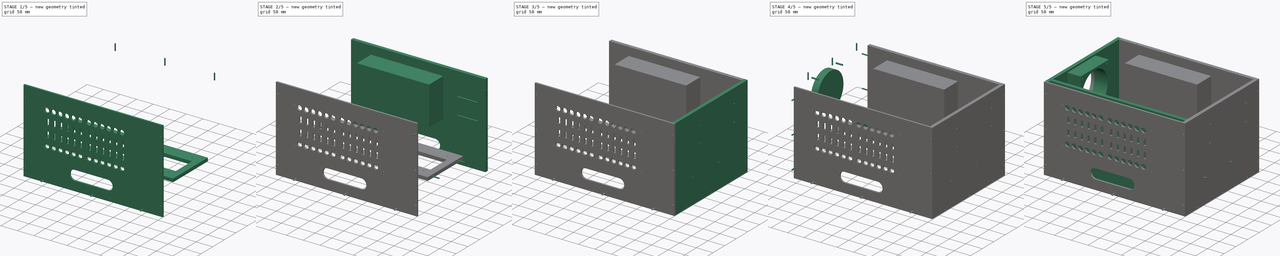
[diagram: build sequence overview — one tinted view per stage of 5, left to right]
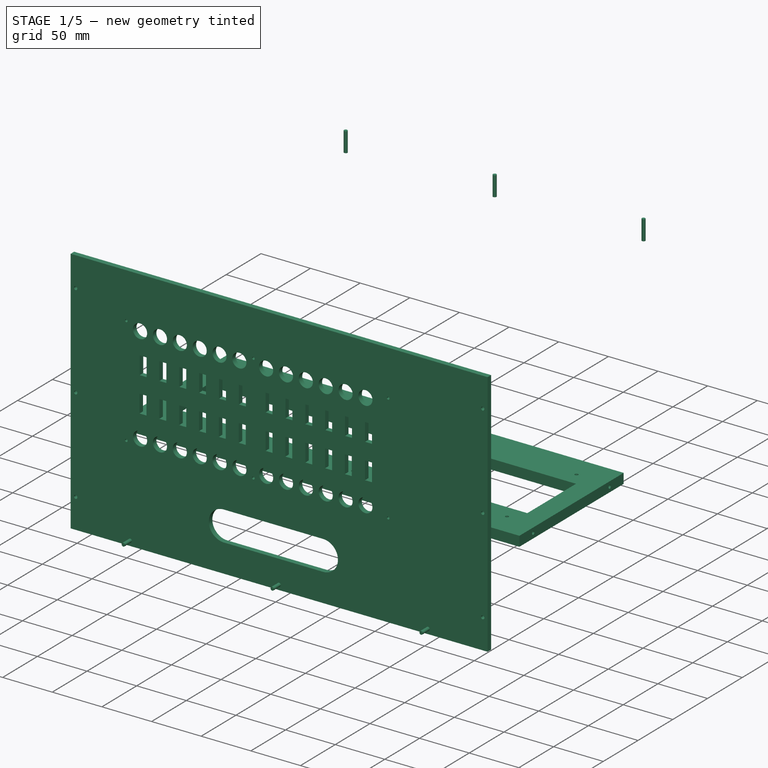
[diagram: stage 1 of 5 — iso view after this stage's code; geometry added in this stage tinted green]
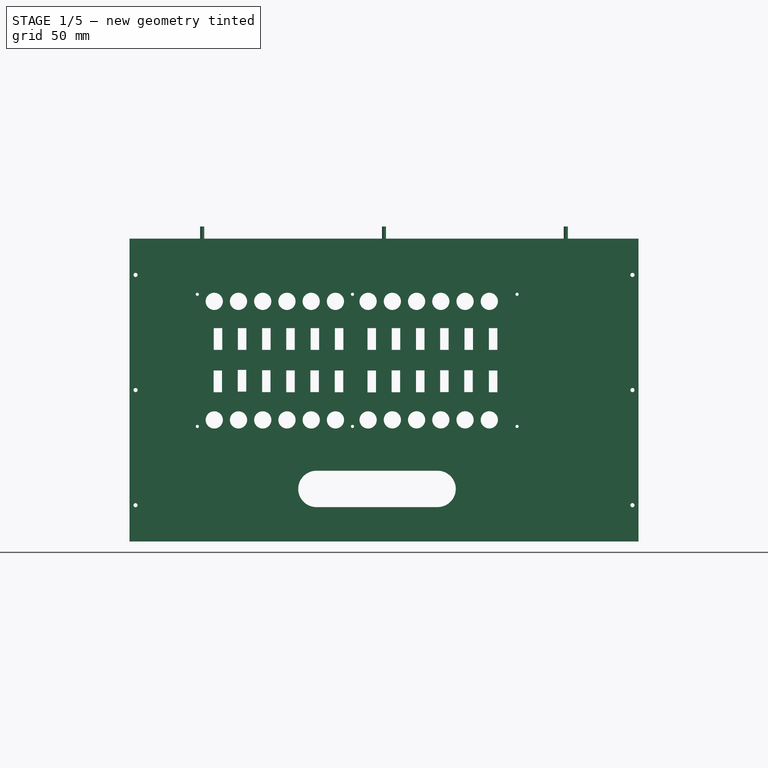
[diagram: stage 1 of 5 — front view after this stage's code; geometry added in this stage tinted green]
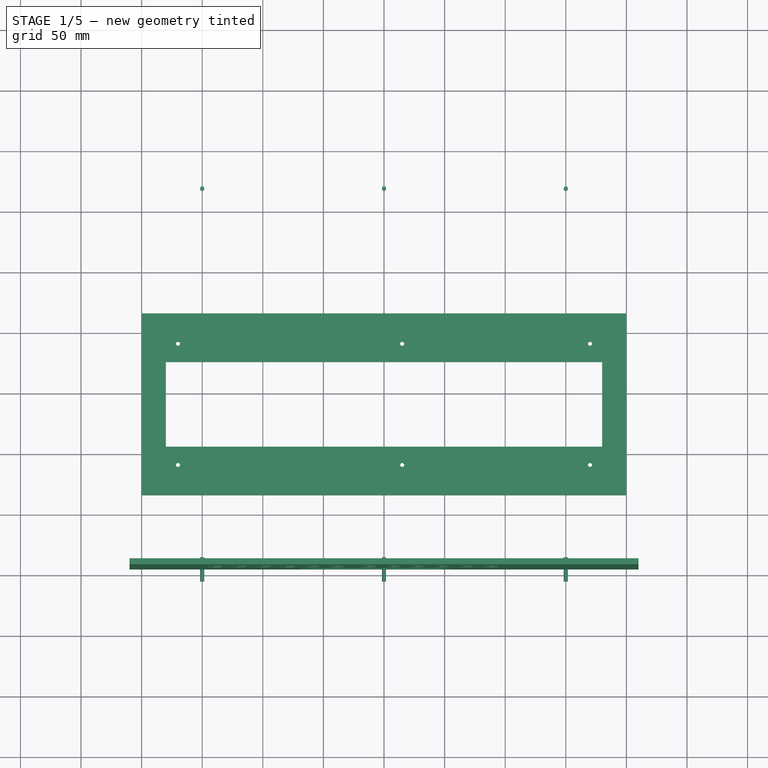
[diagram: stage 1 of 5 — top view after this stage's code; geometry added in this stage tinted green]
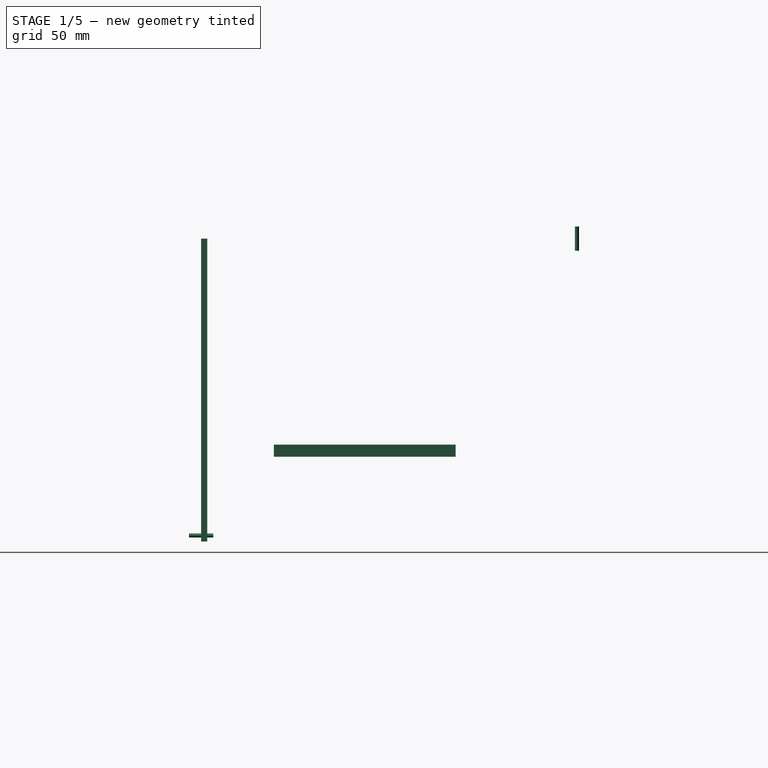
[diagram: stage 1 of 5 — right view after this stage's code; geometry added in this stage tinted green]
FCSTD DOCUMENT  (FreeCAD 0.16R6706 (Git))
Label: MSE-BOX
License: All rights reserved
LicenseURL: http://en.wikipedia.org/wiki/All_rights_reserved
objects: Part::Cylinder×44, Drawing::FeatureViewPython×42, Sketcher::SketchObject×21, PartDesign::Pad×20, Part::Cut×17, Part::MultiFuse×14, App::DocumentObjectGroup×6, Drawing::FeatureViewPart×5, Part::Box×2, Drawing::FeaturePage×1
note: 138 computed .brp shape members not serialized (recipe doc carries the construction recipe); baked Part::Feature solids carry a one-line shape summary decoded from their .brp

FEATURE [Sketcher::SketchObject] Sketch009
  Placement = pos=(-160,-140,200) rot=(0.57735,0.57735,-0.57735;2.0944rad)
  sketch-geometry (134):
    g0: Circle CenterX=11.81 CenterY=19.93 CenterZ=0 NormalX=0 NormalY=0 NormalZ=1 Radius=7.1
    g1: Circle CenterX=11.81 CenterY=39.93 CenterZ=0 NormalX=0 NormalY=0 NormalZ=1 Radius=7.1
    g2: Circle CenterX=11.81 CenterY=59.93 CenterZ=0 NormalX=0 NormalY=0 NormalZ=1 Radius=7.1
    g3: Circle CenterX=11.81 CenterY=79.93 CenterZ=0 NormalX=0 NormalY=0 NormalZ=1 Radius=7.1
    g4: Circle CenterX=11.81 CenterY=99.93 CenterZ=0 NormalX=0 NormalY=0 NormalZ=1 Radius=7.1
    g5: Circle CenterX=11.81 CenterY=119.93 CenterZ=0 NormalX=0 NormalY=0 NormalZ=1 Radius=7.1
    g6: Circle CenterX=11.81 CenterY=146.89 CenterZ=0 NormalX=0 NormalY=0 NormalZ=1 Radius=7.1
    g7: Circle CenterX=11.81 CenterY=166.89 CenterZ=0 NormalX=0 NormalY=0 NormalZ=1 Radius=7.1
    g8: Circle CenterX=11.81 CenterY=186.89 CenterZ=0 NormalX=0 NormalY=0 NormalZ=1 Radius=7.1
    g9: Circle CenterX=11.81 CenterY=246.89 CenterZ=0 NormalX=0 NormalY=0 NormalZ=1 Radius=7.1
    g10: Circle CenterX=109.58 CenterY=246.89 CenterZ=0 NormalX=0 NormalY=0 NormalZ=1 Radius=7.1
    g11: Circle CenterX=11.81 CenterY=226.89 CenterZ=0 NormalX=0 NormalY=0 NormalZ=1 Radius=7.1
    g12: Circle CenterX=11.81 CenterY=206.89 CenterZ=0 NormalX=0 NormalY=0 NormalZ=1 Radius=7.1
    g13: Circle CenterX=109.58 CenterY=186.89 CenterZ=0 NormalX=0 NormalY=0 NormalZ=1 Radius=7.1
    g14: Circle CenterX=109.58 CenterY=226.89 CenterZ=0 NormalX=0 NormalY=0 NormalZ=1 Radius=7.1
    g15: Circle CenterX=109.58 CenterY=206.89 CenterZ=0 NormalX=0 NormalY=0 NormalZ=1 Radius=7.1
    g16: Circle CenterX=109.58 CenterY=166.89 CenterZ=0 NormalX=0 NormalY=0 NormalZ=1 Radius=7.1
    g17: Circle CenterX=109.63 CenterY=146.89 CenterZ=0 NormalX=0 NormalY=0 NormalZ=1 Radius=7.1
    g18: Circle CenterX=109.63 CenterY=119.95 CenterZ=0 NormalX=0 NormalY=0 NormalZ=1 Radius=7.1
    g19: Circle CenterX=109.63 CenterY=99.95 CenterZ=0 NormalX=0 NormalY=0 NormalZ=1 Radius=7.1
    g20: Circle CenterX=109.63 CenterY=79.95 CenterZ=0 NormalX=0 NormalY=0 NormalZ=1 Radius=7.1
    g21: Circle CenterX=109.63 CenterY=59.95 CenterZ=0 NormalX=0 NormalY=0 NormalZ=1 Radius=7.1
    g22: Circle CenterX=109.63 CenterY=39.95 CenterZ=0 NormalX=0 NormalY=0 NormalZ=1 Radius=7.1
    g23: Circle CenterX=109.63 CenterY=19.95 CenterZ=0 NormalX=0 NormalY=0 NormalZ=1 Radius=7.1
    g24: Circle CenterX=5.9944 CenterY=5.9944 CenterZ=0 NormalX=0 NormalY=0 NormalZ=1 Radius=1.3
    g25: Circle CenterX=5.9944 CenterY=134 CenterZ=0 NormalX=0 NormalY=0 NormalZ=1 Radius=1.3
    g26: Circle CenterX=5.9944 CenterY=269.79 CenterZ=0 NormalX=0 NormalY=0 NormalZ=1 Radius=1.3
    g27: Circle CenterX=115 CenterY=269.79 CenterZ=0 NormalX=0 NormalY=0 NormalZ=1 Radius=1.3
    g28: Circle CenterX=115 CenterY=5.9944 CenterZ=0 NormalX=0 NormalY=0 NormalZ=1 Radius=1.3
    g29: Circle CenterX=115 CenterY=134 CenterZ=0 NormalX=0 NormalY=0 NormalZ=1 Radius=1.3
    g30: LineSegment StartX=33.87 StartY=26.57 StartZ=0 EndX=51.87 EndY=26.57 EndZ=0
    g31: LineSegment StartX=51.87 StartY=26.57 StartZ=0 EndX=51.87 EndY=19.57 EndZ=0
    g32: LineSegment StartX=51.87 StartY=19.57 StartZ=0 EndX=33.87 EndY=19.57 EndZ=0
    g33: LineSegment StartX=33.87 StartY=19.57 StartZ=0 EndX=33.87 EndY=26.57 EndZ=0
    g34: LineSegment StartX=33.87 StartY=66.47 StartZ=0 EndX=51.87 EndY=66.47 EndZ=0
    g35: LineSegment StartX=51.87 StartY=66.47 StartZ=0 EndX=51.87 EndY=59.47 EndZ=0
    g36: LineSegment StartX=51.87 StartY=59.47 StartZ=0 EndX=33.87 EndY=59.47 EndZ=0
    g37: LineSegment StartX=33.87 StartY=59.47 StartZ=0 EndX=33.87 EndY=66.47 EndZ=0
    g38: LineSegment StartX=33.87 StartY=86.38 StartZ=0 EndX=51.87 EndY=86.38 EndZ=0
    g39: LineSegment StartX=51.87 StartY=86.38 StartZ=0 EndX=51.87 EndY=79.38 EndZ=0
    g40: LineSegment StartX=51.87 StartY=79.38 StartZ=0 EndX=33.87 EndY=79.38 EndZ=0
    g41: LineSegment StartX=33.87 StartY=79.38 StartZ=0 EndX=33.87 EndY=86.38 EndZ=0
    g42: LineSegment StartX=33.87 StartY=46.4 StartZ=0 EndX=51.87 EndY=46.4 EndZ=0
    g43: LineSegment StartX=51.87 StartY=46.4 StartZ=0 EndX=51.87 EndY=39.4 EndZ=0
    g44: LineSegment StartX=51.87 StartY=39.4 StartZ=0 EndX=33.87 EndY=39.4 EndZ=0
    g45: LineSegment StartX=33.87 StartY=39.4 StartZ=0 EndX=33.87 EndY=46.4 EndZ=0
    g46: LineSegment StartX=33.87 StartY=153.36 StartZ=0 EndX=51.87 EndY=153.36 EndZ=0
    g47: LineSegment StartX=51.87 StartY=153.36 StartZ=0 EndX=51.87 EndY=146.36 EndZ=0
    g48: LineSegment StartX=51.87 StartY=146.36 StartZ=0 EndX=33.87 EndY=146.36 EndZ=0
    g49: LineSegment StartX=33.87 StartY=146.36 StartZ=0 EndX=33.87 EndY=153.36 EndZ=0
    g50: LineSegment StartX=33.87 StartY=126.46 StartZ=0 EndX=51.87 EndY=126.46 EndZ=0
    g51: LineSegment StartX=51.87 StartY=126.46 StartZ=0 EndX=51.87 EndY=119.46 EndZ=0
    g52: LineSegment StartX=51.87 StartY=119.46 StartZ=0 EndX=33.87 EndY=119.46 EndZ=0
    g53: LineSegment StartX=33.87 StartY=119.46 StartZ=0 EndX=33.87 EndY=126.46 EndZ=0
    g54: LineSegment StartX=33.87 StartY=106.43 StartZ=0 EndX=51.87 EndY=106.43 EndZ=0
    g55: LineSegment StartX=51.87 StartY=106.43 StartZ=0 EndX=51.87 EndY=99.43 EndZ=0
    g56: LineSegment StartX=51.87 StartY=99.43 StartZ=0 EndX=33.87 EndY=99.43 EndZ=0
    g57: LineSegment StartX=33.87 StartY=99.43 StartZ=0 EndX=33.87 EndY=106.43 EndZ=0
    g58: LineSegment StartX=33.87 StartY=173.36 StartZ=0 EndX=51.87 EndY=173.36 EndZ=0
    g59: LineSegment StartX=51.87 StartY=173.36 StartZ=0 EndX=51.87 EndY=166.36 EndZ=0
    g60: LineSegment StartX=51.87 StartY=166.36 StartZ=0 EndX=33.87 EndY=166.36 EndZ=0
    g61: LineSegment StartX=33.87 StartY=166.36 StartZ=0 EndX=33.87 EndY=173.36 EndZ=0
    g62: LineSegment StartX=51.87 StartY=213.34 StartZ=0 EndX=33.87 EndY=213.34 EndZ=0
    g63: LineSegment StartX=33.87 StartY=213.34 StartZ=0 EndX=33.87 EndY=206.34 EndZ=0
    g64: LineSegment StartX=33.87 StartY=206.34 StartZ=0 EndX=51.87 EndY=206.34 EndZ=0
    g65: LineSegment StartX=51.87 StartY=206.34 StartZ=0 EndX=51.87 EndY=213.34 EndZ=0
    g66: LineSegment StartX=33.87 StartY=193.39 StartZ=0 EndX=51.87 EndY=193.39 EndZ=0
    g67: LineSegment StartX=51.87 StartY=193.39 StartZ=0 EndX=51.87 EndY=186.39 EndZ=0
    g68: LineSegment StartX=51.87 StartY=186.39 StartZ=0 EndX=33.87 EndY=186.39 EndZ=0
    g69: LineSegment StartX=33.87 StartY=186.39 StartZ=0 EndX=33.87 EndY=193.39 EndZ=0
    g70: LineSegment StartX=33.87 StartY=253.52 StartZ=0 EndX=51.87 EndY=253.52 EndZ=0
    g71: LineSegment StartX=51.87 StartY=253.52 StartZ=0 EndX=51.87 EndY=246.52 EndZ=0
    g72: LineSegment StartX=51.87 StartY=246.52 StartZ=0 EndX=33.87 EndY=246.52 EndZ=0
    g73: LineSegment StartX=33.87 StartY=246.52 StartZ=0 EndX=33.87 EndY=253.52 EndZ=0
    g74: LineSegment StartX=33.8701 StartY=233.4 StartZ=0 EndX=51.8701 EndY=233.4 EndZ=0
    g75: LineSegment StartX=51.8701 StartY=233.4 StartZ=0 EndX=51.8701 EndY=226.4 EndZ=0
    g76: LineSegment StartX=51.8701 StartY=226.4 StartZ=0 EndX=33.8701 EndY=226.4 EndZ=0
    g77: LineSegment StartX=33.8701 StartY=226.4 StartZ=0 EndX=33.8701 EndY=233.4 EndZ=0
    g78: LineSegment StartX=68.82 StartY=26.37 StartZ=0 EndX=86.82 EndY=26.37 EndZ=0
    g79: LineSegment StartX=86.82 StartY=26.37 StartZ=0 EndX=86.82 EndY=19.37 EndZ=0
    g80: LineSegment StartX=86.82 StartY=19.37 StartZ=0 EndX=68.82 EndY=19.37 EndZ=0
    g81: LineSegment StartX=68.82 StartY=19.37 StartZ=0 EndX=68.82 EndY=26.37 EndZ=0
    g82: LineSegment StartX=68.3352 StartY=46.33 StartZ=0 EndX=86.3352 EndY=46.33 EndZ=0
    g83: LineSegment StartX=86.3352 StartY=46.33 StartZ=0 EndX=86.3352 EndY=39.33 EndZ=0
    g84: LineSegment StartX=86.3352 StartY=39.33 StartZ=0 EndX=68.3352 EndY=39.33 EndZ=0
    g85: LineSegment StartX=68.3352 StartY=39.33 StartZ=0 EndX=68.3352 EndY=46.33 EndZ=0
    g86: LineSegment StartX=68.6925 StartY=66.4 StartZ=0 EndX=86.6925 EndY=66.4 EndZ=0
    g87: LineSegment StartX=86.6925 StartY=66.4 StartZ=0 EndX=86.6925 EndY=59.4 EndZ=0
    g88: LineSegment StartX=86.6925 StartY=59.4 StartZ=0 EndX=68.6925 EndY=59.4 EndZ=0
    g89: LineSegment StartX=68.6925 StartY=59.4 StartZ=0 EndX=68.6925 EndY=66.4 EndZ=0
    g90: LineSegment StartX=68.7894 StartY=86.34 StartZ=0 EndX=86.7894 EndY=86.34 EndZ=0
    g91: LineSegment StartX=86.7894 StartY=86.34 StartZ=0 EndX=86.7894 EndY=79.34 EndZ=0
    g92: LineSegment StartX=86.7894 StartY=79.34 StartZ=0 EndX=68.7894 EndY=79.34 EndZ=0
    g93: LineSegment StartX=68.7894 StartY=79.34 StartZ=0 EndX=68.7894 EndY=86.34 EndZ=0
    g94: LineSegment StartX=68.733 StartY=106.27 StartZ=0 EndX=86.733 EndY=106.27 EndZ=0
    g95: LineSegment StartX=86.733 StartY=106.27 StartZ=0 EndX=86.733 EndY=99.27 EndZ=0
    g96: LineSegment StartX=86.733 StartY=99.27 StartZ=0 EndX=68.733 EndY=99.27 EndZ=0
    g97: LineSegment StartX=68.733 StartY=99.27 StartZ=0 EndX=68.733 EndY=106.27 EndZ=0
    g98: LineSegment StartX=68.82 StartY=126.36 StartZ=0 EndX=86.82 EndY=126.36 EndZ=0
    g99: LineSegment StartX=86.82 StartY=126.36 StartZ=0 EndX=86.82 EndY=119.36 EndZ=0
    g100: LineSegment StartX=86.82 StartY=119.36 StartZ=0 EndX=68.82 EndY=119.36 EndZ=0
    g101: LineSegment StartX=68.82 StartY=119.36 StartZ=0 EndX=68.82 EndY=126.36 EndZ=0
    g102: LineSegment StartX=68.8995 StartY=153.372 StartZ=0 EndX=86.8995 EndY=153.372 EndZ=0
    g103: LineSegment StartX=86.8995 StartY=153.372 StartZ=0 EndX=86.8995 EndY=146.372 EndZ=0
    g104: LineSegment StartX=86.8995 StartY=146.372 StartZ=0 EndX=68.8995 EndY=146.372 EndZ=0
    g105: LineSegment StartX=68.8995 StartY=146.372 StartZ=0 EndX=68.8995 EndY=153.372 EndZ=0
    g106: LineSegment StartX=68.7731 StartY=173.267 StartZ=0 EndX=86.7731 EndY=173.267 EndZ=0
    g107: LineSegment StartX=86.7731 StartY=173.267 StartZ=0 EndX=86.7731 EndY=166.267 EndZ=0
    g108: LineSegment StartX=86.7731 StartY=166.267 StartZ=0 EndX=68.7731 EndY=166.267 EndZ=0
    g109: LineSegment StartX=68.7731 StartY=166.267 StartZ=0 EndX=68.7731 EndY=173.267 EndZ=0
    g110: LineSegment StartX=68.781 StartY=193.39 StartZ=0 EndX=86.781 EndY=193.39 EndZ=0
    g111: LineSegment StartX=86.781 StartY=193.39 StartZ=0 EndX=86.781 EndY=186.39 EndZ=0
    g112: LineSegment StartX=86.781 StartY=186.39 StartZ=0 EndX=68.781 EndY=186.39 EndZ=0
    g113: LineSegment StartX=68.781 StartY=186.39 StartZ=0 EndX=68.781 EndY=193.39 EndZ=0
    g114: LineSegment StartX=68.6717 StartY=213.338 StartZ=0 EndX=86.6717 EndY=213.338 EndZ=0
    g115: LineSegment StartX=86.6717 StartY=213.338 StartZ=0 EndX=86.6717 EndY=206.338 EndZ=0
    g116: LineSegment StartX=86.6717 StartY=206.338 StartZ=0 EndX=68.6717 EndY=206.338 EndZ=0
    g117: LineSegment StartX=68.6717 StartY=206.338 StartZ=0 EndX=68.6717 EndY=213.338 EndZ=0
    g118: LineSegment StartX=68.6927 StartY=233.2 StartZ=0 EndX=86.6927 EndY=233.2 EndZ=0
    g119: LineSegment StartX=86.6927 StartY=233.2 StartZ=0 EndX=86.6927 EndY=226.2 EndZ=0
    g120: LineSegment StartX=86.6927 StartY=226.2 StartZ=0 EndX=68.6927 EndY=226.2 EndZ=0
    g121: LineSegment StartX=68.6927 StartY=226.2 StartZ=0 EndX=68.6927 EndY=233.2 EndZ=0
    g122: LineSegment StartX=68.82 StartY=253.52 StartZ=0 EndX=86.82 EndY=253.52 EndZ=0
    g123: LineSegment StartX=86.82 StartY=253.52 StartZ=0 EndX=86.82 EndY=246.52 EndZ=0
    g124: LineSegment StartX=86.82 StartY=246.52 StartZ=0 EndX=68.82 EndY=246.52 EndZ=0
    g125: LineSegment StartX=68.82 StartY=246.52 StartZ=0 EndX=68.82 EndY=253.52 EndZ=0
    g126: LineSegment StartX=-40 StartY=370 StartZ=0 EndX=210 EndY=370 EndZ=0
    g127: LineSegment StartX=210 StartY=370 StartZ=0 EndX=210 EndY=-49.9998 EndZ=0
    g128: LineSegment StartX=210 StartY=-49.9998 StartZ=0 EndX=-40 EndY=-49.9998 EndZ=0
    g129: LineSegment StartX=-40 StartY=-49.9998 StartZ=0 EndX=-40 EndY=370 EndZ=0
    g130: ArcOfCircle CenterX=166.567 CenterY=204.228 CenterZ=0 NormalX=0 NormalY=0 NormalZ=1 Radius=15 StartAngle=0 EndAngle=3.14159
    g131: ArcOfCircle CenterX=166.567 CenterY=104.228 CenterZ=0 NormalX=0 NormalY=0 NormalZ=1 Radius=15 StartAngle=3.14159 EndAngle=6.28319
    g132: LineSegment StartX=151.567 StartY=204.228 StartZ=0 EndX=151.567 EndY=104.228 EndZ=0
    g133: LineSegment StartX=181.567 StartY=204.228 StartZ=0 EndX=181.567 EndY=104.228 EndZ=0
  constraints (346):
    c: Radius(g0) = 7.1
    c: DistanceX(g0) = 11.81
    c: DistanceY(g0) = 19.93
    c: Equal(g1,g2)
    c: DistanceY(g1) = 39.93
    c: DistanceY(g2) = 59.93
    c: Equal(g2,g3)
    c: DistanceY(g3) = 79.93
    c: Equal(g3,g4)
    c: Equal(g4,g5)
    c: Equal(g5,g6)
    c: DistanceY(g4) = 99.93
    c: DistanceY(g5) = 119.93
    c: DistanceY(g6) = 146.89
    c: Equal(g6,g7)
    c: Equal(g7,g8)
    c: DistanceY(g7) = 166.89
    c: DistanceY(g8) = 186.89
    c: Equal(g8,g12)
    c: Equal(g12,g11)
    c: Equal(g11,g10)
    c: Equal(g10,g9)
    c: DistanceY(g12) = 206.89
    c: DistanceY(g11) = 226.89
    c: DistanceY(g9) = 246.89
    c: DistanceX(g10) = 109.58
    c: DistanceY(g10) = 246.89
    c: DistanceX(g14) = 109.58
    c: DistanceY(g14) = 226.89
    c: Equal(g10,g14)
    c: Equal(g14,g15)
    c: Equal(g15,g13)
    c: Equal(g13,g16)
    c: Equal(g16,g17)
    c: Equal(g17,g18)
    c: Equal(g18,g19)
    c: Equal(g19,g20)
    c: Equal(g20,g21)
    c: Equal(g21,g22)
    c: Equal(g22,g23)
    c: DistanceX(g15) = 109.58
    c: DistanceY(g15) = 206.89
    c: DistanceX(g23) = 109.63
    c: DistanceY(g23) = 19.95
    c: DistanceY(g22) = 39.95
    c: DistanceY(g21) = 59.95
    c: DistanceY(g20) = 79.95
    c: DistanceY(g19) = 99.95
    c: DistanceY(g18) = 119.95
    c: DistanceX(g17) = 109.63
    c: DistanceY(g17) = 146.89
    c: DistanceX(g16) = 109.58
    c: DistanceY(g16) = 166.89
    c: DistanceX(g13) = 109.58
    c: DistanceY(g13) = 186.89
    c: Radius(g24) = 1.3
    c: DistanceX(g24) = 5.9944
    c: DistanceY(g24) = 5.9944
    c: Equal(g24,g25)
    c: Equal(g25,g26)
    c: Equal(g26,g28)
    c: Equal(g28,g29)
    c: Equal(g29,g27)
    c: Radius(g1) = 7.1
    c: DistanceX(g25) = 5.9944
    c: DistanceY(g25) = 134
    c: DistanceX(g26) = 5.9944
    c: DistanceY(g26) = 269.79
    c: DistanceX(g28) = 115
    c: DistanceY(g28) = 5.9944
    c: DistanceX(g29) = 115
    c: DistanceY(g29) = 134
    c: DistanceX(g27) = 115
    c: DistanceY(g27) = 269.79
    c: Coincident(g30,g31)
    c: Coincident(g31,g32)
    c: Coincident(g32,g33)
    c: Coincident(g33,g30)
    c: Horizontal(g30)
    c: Horizontal(g32)
    c: Vertical(g31)
    c: Vertical(g33)
    c: DistanceX(g30) = 51.87
    c: Coincident(g34,g35)
    c: Coincident(g35,g36)
    c: Coincident(g36,g37)
    c: Coincident(g37,g34)
    c: Horizontal(g34)
    c: Horizontal(g36)
    c: Vertical(g35)
    c: Vertical(g37)
    c: DistanceX(g32,g32) = 18
    c: DistanceY(g31,g31) = 7
    c: Equal(g32,g34)
    c: Equal(g31,g35)
    c: Coincident(g38,g39)
    c: Coincident(g39,g40)
    c: Coincident(g40,g41)
    c: Coincident(g41,g38)
    c: Horizontal(g38)
    c: Horizontal(g40)
    c: Vertical(g39)
    c: Vertical(g41)
    c: Coincident(g42,g43)
    c: Coincident(g43,g44)
    c: Coincident(g44,g45)
    c: Coincident(g45,g42)
    c: Horizontal(g42)
    c: Horizontal(g44)
    c: Vertical(g43)
    c: Vertical(g45)
    c: Coincident(g46,g47)
    c: Coincident(g47,g48)
    c: Coincident(g48,g49)
    c: Coincident(g49,g46)
    c: Horizontal(g46)
    c: Horizontal(g48)
    c: Vertical(g47)
    c: Vertical(g49)
    c: Coincident(g50,g51)
    c: Coincident(g51,g52)
    c: Coincident(g52,g53)
    c: Coincident(g53,g50)
    c: Horizontal(g50)
    c: Horizontal(g52)
    c: Vertical(g51)
    c: Vertical(g53)
    c: Coincident(g54,g55)
    c: Coincident(g55,g56)
    c: Coincident(g56,g57)
    c: Coincident(g57,g54)
    c: Horizontal(g54)
    c: Horizontal(g56)
    c: Vertical(g55)
    c: Vertical(g57)
    c: Coincident(g58,g59)
    c: Coincident(g59,g60)
    c: Coincident(g60,g61)
    c: Coincident(g61,g58)
    c: Horizontal(g58)
    c: Horizontal(g60)
    c: Vertical(g59)
    c: Vertical(g61)
    c: Coincident(g62,g63)
    c: Coincident(g63,g64)
    c: Coincident(g64,g65)
    c: Coincident(g65,g62)
    c: Horizontal(g62)
    c: Horizontal(g64)
    c: Vertical(g63)
    c: Vertical(g65)
    c: Coincident(g66,g67)
    c: Coincident(g67,g68)
    c: Coincident(g68,g69)
    c: Coincident(g69,g66)
    c: Horizontal(g66)
    c: Horizontal(g68)
    c: Vertical(g67)
    c: Vertical(g69)
    c: Coincident(g70,g71)
    c: Coincident(g71,g72)
    c: Coincident(g72,g73)
    c: Coincident(g73,g70)
    c: Horizontal(g70)
    c: Horizontal(g72)
    c: Vertical(g71)
    c: Vertical(g73)
    c: Coincident(g74,g75)
    c: Coincident(g75,g76)
    c: Coincident(g76,g77)
    c: Coincident(g77,g74)
    c: Horizontal(g74)
    c: Horizontal(g76)
    c: Vertical(g75)
    c: Vertical(g77)
    c: Equal(g34,g38)
    c: Equal(g38,g54)
    c: Equal(g54,g42)
    c: Equal(g35,g55)
    c: Equal(g55,g39)
    c: Equal(g39,g43)
    c: Equal(g32,g60)
    c: Equal(g60,g50)
    c: Equal(g50,g46)
    c: Equal(g46,g66)
    c: Equal(g66,g62)
    c: Equal(g62,g74)
    c: Equal(g74,g70)
    c: Equal(g31,g59)
    c: Equal(g59,g51)
    c: Equal(g51,g47)
    c: Equal(g47,g67)
    c: Equal(g67,g63)
    c: Equal(g63,g75)
    c: Equal(g75,g73)
    c: DistanceY(g50) = 126.46
    c: Coincident(g78,g79)
    c: Coincident(g79,g80)
    c: Coincident(g80,g81)
    c: Coincident(g81,g78)
    c: Horizontal(g78)
    c: Horizontal(g80)
    c: Vertical(g79)
    c: Vertical(g81)
    c: Coincident(g82,g83)
    c: Coincident(g83,g84)
    c: Coincident(g84,g85)
    c: Coincident(g85,g82)
    c: Horizontal(g82)
    c: Horizontal(g84)
    c: Vertical(g83)
    c: Vertical(g85)
    c: Coincident(g86,g87)
    c: Coincident(g87,g88)
    c: Coincident(g88,g89)
    c: Coincident(g89,g86)
    c: Horizontal(g86)
    c: Horizontal(g88)
    c: Vertical(g87)
    c: Vertical(g89)
    c: Coincident(g90,g91)
    c: Coincident(g91,g92)
    c: Coincident(g92,g93)
    c: Coincident(g93,g90)
    c: Horizontal(g90)
    c: Horizontal(g92)
    c: Vertical(g91)
    c: Vertical(g93)
    c: Coincident(g94,g95)
    c: Coincident(g95,g96)
    c: Coincident(g96,g97)
    c: Coincident(g97,g94)
    c: Horizontal(g94)
    c: Horizontal(g96)
    c: Vertical(g95)
    c: Vertical(g97)
    c: Coincident(g98,g99)
    c: Coincident(g99,g100)
    c: Coincident(g100,g101)
    c: Coincident(g101,g98)
    c: Horizontal(g98)
    c: Horizontal(g100)
    c: Vertical(g99)
    c: Vertical(g101)
    c: Coincident(g102,g103)
    c: Coincident(g103,g104)
    c: Coincident(g104,g105)
    c: Coincident(g105,g102)
    c: Horizontal(g102)
    c: Horizontal(g104)
    c: Vertical(g103)
    c: Vertical(g105)
    c: Coincident(g106,g107)
    c: Coincident(g107,g108)
    c: Coincident(g108,g109)
    c: Coincident(g109,g106)
    c: Horizontal(g106)
    c: Horizontal(g108)
    c: Vertical(g107)
    c: Vertical(g109)
    c: Coincident(g110,g111)
    c: Coincident(g111,g112)
    c: Coincident(g112,g113)
    c: Coincident(g113,g110)
    c: Horizontal(g110)
    c: Vertical(g111)
    c: Vertical(g113)
    c: Coincident(g114,g115)
    c: Coincident(g115,g116)
    c: Coincident(g116,g117)
    c: Coincident(g117,g114)
    c: Horizontal(g114)
    c: Vertical(g115)
    c: Vertical(g117)
    c: Coincident(g118,g119)
    c: Coincident(g119,g120)
    c: Coincident(g120,g121)
    c: Coincident(g121,g118)
    c: Horizontal(g118)
    c: Horizontal(g120)
    c: Vertical(g119)
    c: Vertical(g121)
    c: Coincident(g122,g123)
    c: Coincident(g123,g124)
    c: Coincident(g124,g125)
    c: Coincident(g125,g122)
    c: Horizontal(g122)
    c: Horizontal(g124)
    c: Vertical(g123)
    c: Vertical(g125)
    c: Equal(g70,g122)
    c: Equal(g71,g123)
    c: Equal(g75,g121)
    c: Equal(g74,g118)
    c: Equal(g120,g114)
    c: Equal(g114,g110)
    c: Equal(g110,g106)
    c: Equal(g125,g121)
    c: Equal(g119,g115)
    c: Equal(g115,g111)
    c: Equal(g111,g107)
    c: Equal(g108,g102)
    c: Equal(g102,g100)
    c: Equal(g100,g96)
    c: Equal(g96,g92)
    c: Equal(g92,g88)
    c: Equal(g88,g84)
    c: Equal(g84,g80)
    c: Equal(g121,g117)
    c: Equal(g117,g113)
    c: Equal(g113,g109)
    c: Equal(g109,g105)
    c: Equal(g105,g101)
    c: Equal(g101,g97)
    c: Equal(g97,g93)
    c: Equal(g97,g89)
    c: Equal(g89,g85)
    c: Equal(g85,g81)
    c: DistanceX(g122) = 86.82
    c: DistanceY(g98) = 126.36
    c: DistanceY(g94) = 106.27
    c: DistanceY(g90) = 86.34
    c: DistanceY(g86) = 66.4
    c: DistanceY(g82) = 46.33
    c: DistanceY(g78) = 26.37
    c: Coincident(g126,g127)
    c: Coincident(g127,g128)
    c: Coincident(g128,g129)
    c: Coincident(g129,g126)
    c: Horizontal(g126)
    c: Horizontal(g128)
    c: Vertical(g127)
    c: Vertical(g129)
    c: DistanceX(g126,g126) = 250
    c: DistanceY(g129,g129) = 420
    c: DistanceX(g126) = -40
    c: DistanceY(g126) = 370
    c: Tangent(g130,g133) = 1.5708
    c: Tangent(g130,g132) = -1.5708
    c: Tangent(g132,g131) = -1.5708
    c: Tangent(g133,g131) = 1.5708
    c: Vertical(g132)
    c: Equal(g130,g131)
    c: Equal(g133,g132)
    c: DistanceY(g133,g133) = 100
    c: DistanceX(g130,g130) = 30
FEATURE [PartDesign::Pad] Pad009  label="电源板in前面板"
  Length = 5
  Length2 = 100
  Placement = pos=(-160,-140,200) rot=(0.57735,0.57735,-0.57735;2.0944rad)
  Sketch = -> Sketch009
  Type = 0
FEATURE [Sketcher::SketchObject] Sketch013
  Placement = pos=(0,-10,60) rot=(0,0,1;0rad)
  sketch-geometry (14):
    g0: LineSegment StartX=-200 StartY=75 StartZ=0 EndX=200 EndY=75 EndZ=0
    g1: LineSegment StartX=200 StartY=75 StartZ=0 EndX=200 EndY=-75 EndZ=0
    g2: LineSegment StartX=200 StartY=-75 StartZ=0 EndX=-200 EndY=-75 EndZ=0
    g3: LineSegment StartX=-200 StartY=-75 StartZ=0 EndX=-200 EndY=75 EndZ=0
    g4: LineSegment StartX=-180 StartY=35 StartZ=0 EndX=180 EndY=35 EndZ=0
    g5: LineSegment StartX=180 StartY=35 StartZ=0 EndX=180 EndY=-35 EndZ=0
    g6: LineSegment StartX=180 StartY=-35 StartZ=0 EndX=-180 EndY=-35 EndZ=0
    g7: LineSegment StartX=-180 StartY=-35 StartZ=0 EndX=-180 EndY=35 EndZ=0
    g8: Circle CenterX=-170 CenterY=50 CenterZ=0 NormalX=0 NormalY=0 NormalZ=1 Radius=1.7
    g9: Circle CenterX=-170 CenterY=-50 CenterZ=0 NormalX=0 NormalY=0 NormalZ=1 Radius=1.7
    g10: Circle CenterX=15 CenterY=-50 CenterZ=0 NormalX=0 NormalY=0 NormalZ=1 Radius=1.7
    g11: Circle CenterX=170 CenterY=-50 CenterZ=0 NormalX=0 NormalY=0 NormalZ=1 Radius=1.7
    g12: Circle CenterX=170 CenterY=50 CenterZ=0 NormalX=0 NormalY=0 NormalZ=1 Radius=1.7
    g13: Circle CenterX=15 CenterY=50 CenterZ=0 NormalX=0 NormalY=0 NormalZ=1 Radius=1.7
  constraints (41):
    c: Coincident(g0,g1)
    c: Coincident(g2,g3)
    c: Coincident(g3,g0)
    c: Vertical(g1)
    c: Vertical(g3)
    c: DistanceX(g0,g0) = 400
    c: Symmetric(g0,g0,g-2)
    c: DistanceY(g1,g1) = 150
    c: Coincident(g4,g5)
    c: Coincident(g5,g6)
    c: Coincident(g6,g7)
    c: Coincident(g7,g4)
    c: Horizontal(g4)
    c: Horizontal(g6)
    c: Vertical(g5)
    c: Vertical(g7)
    c: Distance(g4,g3) = 20
    c: Distance(g4,g1) = 20
    c: Distance(g4,g0) = 40
    c: Symmetric(g1,g0,g-1)
    c: DistanceY(g2,g5) = 40
    c: DistanceY(g6,g4) = 70
    c: DistanceY(g2,g0) = 150
    c: Radius(g8) = 1.7
    c: Equal(g8,g9)
    c: Equal(g8,g13)
    c: Equal(g8,g10)
    c: Equal(g8,g12)
    c: Equal(g8,g11)
    c: Distance(g8,g12) = 340
    c: DistanceY(g-1,g12) = 50
    c: DistanceY(g8) = 50
    c: DistanceY(g9) = -50
    c: DistanceY(g11) = -50
    c: DistanceY(g10) = -50
    c: DistanceY(g13) = 50
    c: Distance(g9,g11) = 340
    c: DistanceX(g8,g13) = 185
    c: DistanceX(g9,g10) = 185
    c: DistanceX(g9,g8) = 0
    c: DistanceX(g10,g-1) = -15
FEATURE [PartDesign::Pad] Pad013  label="串口板支架"
  Length = 10
  Length2 = 100
  Placement = pos=(0,-10,60) rot=(0,0,1;0rad)
  Sketch = -> Sketch013
  Type = 0
FEATURE [Part::Cylinder] Cylinder013  label="串口板右前"
  Angle = 360
  Height = 20
  Placement = pos=(195,-65,65) rot=(0,1,0;1.5708rad)
  Radius = 1.7
FEATURE [Part::Cylinder] Cylinder015  label="串口板左前"
  Angle = 360
  Height = 20
  Placement = pos=(-215,-65,65) rot=(0,1,0;1.5708rad)
  Radius = 1.7
FEATURE [Part::Cylinder] Cylinder016  label="串口板左后"
  Angle = 360
  Height = 20
  Placement = pos=(-215,45,65) rot=(0,1,0;1.5708rad)
  Radius = 1.7
FEATURE [Part::Cylinder] Cylinder017  label="串口板右后"
  Angle = 360
  Height = 20
  Placement = pos=(195,45,65) rot=(0,1,0;1.5708rad)
  Radius = 1.7
FEATURE [Part::MultiFuse] Fusion004  label="支架四个螺丝钉"
  Shapes = -> [Cylinder017,Cylinder013,Cylinder015,Cylinder016]
FEATURE [Sketcher::SketchObject] Sketch021
  Placement = pos=(0,-75,230) rot=(0,0,1;0rad)
  sketch-geometry (3):
    g0: Circle CenterX=-150 CenterY=240 CenterZ=0 NormalX=0 NormalY=0 NormalZ=1 Radius=1.7
    g1: Circle CenterX=150 CenterY=240 CenterZ=0 NormalX=0 NormalY=0 NormalZ=1 Radius=1.7
    g2: Circle CenterX=0 CenterY=240 CenterZ=0 NormalX=0 NormalY=0 NormalZ=1 Radius=1.7
  constraints (8):
    c: DistanceX(g1) = 150
    c: DistanceY(g1) = 240
    c: DistanceX(g0) = -150
    c: DistanceY(g0) = 240
    c: Radius(g2) = 1.7
    c: DistanceX(g2) = 0
    c: DistanceY(g2) = 240
    c: Radius(g1) = 1.7
FEATURE [PartDesign::Pad] Pad019  label="后面板上螺丝"
  Length = 20
  Length2 = 100
  Placement = pos=(0,-75,230) rot=(0,0,1;0rad)
  Sketch = -> Sketch021
  Type = 0
FEATURE [App::DocumentObjectGroup] Group001  label="后面"
  Group = -> [Pad004,Cut015]
FEATURE [Part::Cut] Cut016
  Base = -> Pad013
  Tool = -> Fusion004
FEATURE [App::DocumentObjectGroup] Group002  label="支架"
  Group = -> [Cut016]
FEATURE [Part::Cylinder] Cylinder040  label="右侧前004"
  Angle = 360
  Height = 20
  Placement = pos=(205,-135,20) rot=(1,0,0;1.5708rad)
  Radius = 1.7
FEATURE [Part::Cylinder] Cylinder041  label="右侧前005"
  Angle = 360
  Height = 20
  Placement = pos=(205,-135,115) rot=(1,0,0;1.5708rad)
  Radius = 1.7
FEATURE [Part::Cylinder] Cylinder042  label="右侧前006"
  Angle = 360
  Height = 20
  Placement = pos=(205,-135,210) rot=(1,0,0;1.5708rad)
  Radius = 1.7
FEATURE [Part::Cylinder] Cylinder043  label="前004"
  Angle = 360
  Height = 20
  Placement = pos=(-205,-140,115) rot=(1,0,0;1.5708rad)
  Radius = 1.7
FEATURE [Part::Cylinder] Cylinder044  label="前005"
  Angle = 360
  Height = 20
  Placement = pos=(-205,-140,20) rot=(1,0,0;1.5708rad)
  Radius = 1.7
FEATURE [Part::Cylinder] Cylinder045  label="前006"
  Angle = 360
  Height = 20
  Placement = pos=(-205,-140,210) rot=(1,0,0;1.5708rad)
  Radius = 1.7
FEATURE [Sketcher::SketchObject] Sketch022
  Placement = pos=(0,-135,0) rot=(-1,0,0;4.71239rad)
  sketch-geometry (3):
    g0: Circle CenterX=-150 CenterY=-5 CenterZ=0 NormalX=0 NormalY=0 NormalZ=1 Radius=1.7
    g1: Circle CenterX=0 CenterY=-5 CenterZ=0 NormalX=0 NormalY=0 NormalZ=1 Radius=1.7
    g2: Circle CenterX=150 CenterY=-5 CenterZ=0 NormalX=0 NormalY=0 NormalZ=1 Radius=1.7
  constraints (9):
    c: Radius(g0) = 1.7
    c: Equal(g0,g1)
    c: Equal(g0,g2)
    c: DistanceY(g0) = -5
    c: DistanceY(g1) = -5
    c: DistanceY(g2) = -5
    c: DistanceX(g1) = 0
    c: DistanceX(g0) = -150
    c: DistanceX(g2) = 150
FEATURE [PartDesign::Pad] Pad020  label="底面三个螺丝"
  Length = 20
  Length2 = 100
  Placement = pos=(0,-135,0) rot=(-1,0,0;4.71239rad)
  Sketch = -> Sketch022
  Type = 0
FEATURE [Sketcher::SketchObject] Sketch023
  Placement = pos=(0,-135,0) rot=(1,0,0;1.5708rad)
  sketch-geometry (3):
    g0: Circle CenterX=-150 CenterY=-5 CenterZ=0 NormalX=0 NormalY=0 NormalZ=1 Radius=1.7
    g1: Circle CenterX=0 CenterY=-5 CenterZ=0 NormalX=0 NormalY=0 NormalZ=1 Radius=1.7
    g2: Circle CenterX=150 CenterY=-5 CenterZ=0 NormalX=0 NormalY=0 NormalZ=1 Radius=1.7
  constraints (9):
    c: Radius(g0) = 1.7
    c: Equal(g0,g1)
    c: Equal(g0,g2)
    c: DistanceY(g0) = -5
    c: DistanceY(g1) = -5
    c: DistanceY(g2) = -5
    c: DistanceX(g1) = 0
    c: DistanceX(g0) = -150
    c: DistanceX(g2) = 150
FEATURE [PartDesign::Pad] Pad021  label="底面三个螺丝001"
  Length = 20
  Length2 = 100
  Placement = pos=(0,-135,0) rot=(1,0,0;1.5708rad)
  Sketch = -> Sketch023
  Type = 0
FEATURE [Part::MultiFuse] Fusion014  label="前面板螺丝"
  Shapes = -> [Pad020,Cylinder045,Cylinder044,Cylinder043,Cylinder040,Cylinder041,Cylinder042]
FEATURE [Part::Cut] Cut017
  Base = -> Pad009
  Tool = -> Fusion014
FEATURE [App::DocumentObjectGroup] Group003  label="前面"
  Group = -> [Cut017]
FEATURE [Drawing::FeatureViewPart] Ortho  label="Ortho_0_0"
  Direction = (0,-1,0)
  HiddenWidth = 0.15
  LineWidth = 0.35
  Rotation = 90
  Scale = 0.5
  ShowHiddenLines = false
  ShowSmoothLines = false
  Source = -> Cut017
  Tolerance = 0.05
  ViewResult = <blob: 7983 chars omitted>
  Visible = true
  X = 215
  Y = 176
FEATURE [Drawing::FeatureViewPart] Ortho001  label="Ortho_0_-1"
  Direction = (0,0,-1)
  HiddenWidth = 0.15
  LineWidth = 0.35
  Rotation = 180
  Scale = 0.5
  ShowHiddenLines = false
  ShowSmoothLines = false
  Source = -> Cut017
  Tolerance = 0.05
  ViewResult = <blob: 3649 chars omitted>
  Visible = true
  X = 215
  Y = 275.25
FEATURE [Drawing::FeatureViewPart] Ortho002  label="Ortho_-1_0"
  Direction = (-1,0,0)
  HiddenWidth = 0.15
  LineWidth = 0.35
  Rotation = 90
  Scale = 0.5
  ShowHiddenLines = false
  ShowSmoothLines = false
  Source = -> Cut017
  Tolerance = 0.05
  ViewResult = <blob: 3682 chars omitted>
  Visible = true
  X = -6.25
  Y = 176
FEATURE [Drawing::FeatureViewPart] Ortho003  label="Ortho_0_1"
  Direction = (0,0,1)
  HiddenWidth = 0.15
  LineWidth = 0.35
  Rotation = 0
  Scale = 0.5
  ShowHiddenLines = false
  ShowSmoothLines = false
  Source = -> Cut017
  Tolerance = 0.05
  ViewResult = <blob: 8966 chars omitted>
  Visible = true
  X = 215
  Y = -38.25
FEATURE [Drawing::FeatureViewPart] Ortho004  label="Ortho_1_0"
  Direction = (1,0,0)
  HiddenWidth = 0.15
  LineWidth = 0.35
  Rotation = -90
  Scale = 0.5
  ShowHiddenLines = false
  ShowSmoothLines = false
  Source = -> Cut017
  Tolerance = 0.05
  ViewResult = <blob: 3577 chars omitted>
  Visible = true
  X = 436.25
  Y = 176
FEATURE [Drawing::FeatureViewPython] dim001  # drawing view (typed FeaturePython)
  Rotation = 0
  ViewResult = <g> \n  <line x1="110.000000" y1="29.750000" x2="110.000000" y2="25.077738" style="stroke:rgb(0,0,255);stroke-width:0.50" />\n<line x1="320.000000" y1="29.750000" x2="320.000000" y2="25.077738" style="stroke:rgb(0,0,255);stroke-width:0.50" />\n<line x1="110.000000" y1="26.077738" x2="320.000000" y2="26.077738" style="stroke:rgb(0,0,255);stroke-width:0.50" /> \n  <polygon points="320.000000,26.077738 317.000000,25.077738 316.000000,26.077738 317.000000,27.077738" style="fill:rgb(0,0,255);stroke:rgb(0,0,255);stroke-width:0" /><polygon points="110.000000,26.077738 113.000000,27.077738 114.000000,26.077738 113.000000,25.077738" style="fill:rgb(0,0,255);stroke:rgb(0,0,255);stroke-width:0" /> \n  <text x="215.000000" y="24.077738" font-family="inherit" font-size="3.6" fill="rgb(0,0,255)" text-anchor="middle" transform="rotate(0.000000 215.000000,24.077738)" >420</text> </g>
  Visible = true
  X = 0
  Y = 0
  arrowL1 = 3
  arrowL2 = 1
  arrowW = 2
  arrow_scheme = 0
  autoPlaceOffset = 2
  autoPlaceText = true
  click1_x = 112.884
  click1_y = 26.0777
  click2_x = 112.884
  click2_y = 26.0777
  comma_decimal_place = false
  dimension_line_overshoot = 1
  gap_datum_points = 2
  halfDimension_linear = false
  lineColor = rgb(0,0,255)
  strokeWidth = 0.5
  textFormat_linear = %(value)3.3f
  textRenderer_color = rgb(0,0,255)
  textRenderer_family = inherit
  textRenderer_size = 3.6
  unit_custom_scale = 1
  unit_scheme = 0
FEATURE [Drawing::FeatureViewPython] dim002  # drawing view (typed FeaturePython)
  Rotation = 0
  ViewResult = <g> \n  <line x1="108.000000" y1="34.250000" x2="100.810346" y2="34.250000" style="stroke:rgb(0,0,255);stroke-width:0.50" />\n<line x1="108.000000" y1="31.750000" x2="100.810346" y2="31.750000" style="stroke:rgb(0,0,255);stroke-width:0.50" />\n<line x1="101.810346" y1="34.250000" x2="101.810346" y2="31.750000" style="stroke:rgb(0,0,255);stroke-width:0.50" /> \n  <polygon points="101.810346,31.750000 102.810346,28.750000 101.810346,27.750000 100.810346,28.750000" style="fill:rgb(0,0,255);stroke:rgb(0,0,255);stroke-width:0" /><polygon points="101.810346,34.250000 100.810346,37.250000 101.810346,38.250000 102.810346,37.250000" style="fill:rgb(0,0,255);stroke:rgb(0,0,255);stroke-width:0" /> \n  <text x="99.810346" y="33.000000" font-family="inherit" font-size="3.6" fill="rgb(0,0,255)" text-anchor="middle" transform="rotate(-90.000000 99.810346,33.000000)" >5</text> </g>
  Visible = true
  X = 0
  Y = 0
  arrowL1 = 3
  arrowL2 = 1
  arrowW = 2
  arrow_scheme = 0
  autoPlaceOffset = 2
  autoPlaceText = true
  click1_x = 101.81
  click1_y = 31.7934
  click2_x = 101.81
  click2_y = 31.7934
  comma_decimal_place = false
  dimension_line_overshoot = 1
  gap_datum_points = 2
  halfDimension_linear = false
  lineColor = rgb(0,0,255)
  strokeWidth = 0.5
  textFormat_linear = %(value)3.3f
  textRenderer_color = rgb(0,0,255)
  textRenderer_family = inherit
  textRenderer_size = 3.6
  unit_custom_scale = 1
  unit_scheme = 0
FEATURE [Drawing::FeatureViewPython] dim003  # drawing view (typed FeaturePython)
  Rotation = 0
  ViewResult = <g> \n  <line x1="61.750000" y1="181.000000" x2="55.799456" y2="181.000000" style="stroke:rgb(0,0,255);stroke-width:0.50" />\n<line x1="61.750000" y1="56.000000" x2="55.799456" y2="56.000000" style="stroke:rgb(0,0,255);stroke-width:0.50" />\n<line x1="56.799456" y1="181.000000" x2="56.799456" y2="56.000000" style="stroke:rgb(0,0,255);stroke-width:0.50" /> \n  <polygon points="56.799456,56.000000 55.799456,59.000000 56.799456,60.000000 57.799456,59.000000" style="fill:rgb(0,0,255);stroke:rgb(0,0,255);stroke-width:0" /><polygon points="56.799456,181.000000 57.799456,178.000000 56.799456,177.000000 55.799456,178.000000" style="fill:rgb(0,0,255);stroke:rgb(0,0,255);stroke-width:0" /> \n  <text x="54.799456" y="118.500000" font-family="inherit" font-size="3.6" fill="rgb(0,0,255)" text-anchor="middle" transform="rotate(-90.000000 54.799456,118.500000)" >250</text> </g>
  Visible = true
  X = 0
  Y = 0
  arrowL1 = 3
  arrowL2 = 1
  arrowW = 2
  arrow_scheme = 0
  autoPlaceOffset = 2
  autoPlaceText = true
  click1_x = 56.7995
  click1_y = 68.9453
  click2_x = 56.7995
  click2_y = 68.9453
  comma_decimal_place = false
  dimension_line_overshoot = 1
  gap_datum_points = 2
  halfDimension_linear = false
  lineColor = rgb(0,0,255)
  strokeWidth = 0.5
  textFormat_linear = %(value)3.3f
  textRenderer_color = rgb(0,0,255)
  textRenderer_family = inherit
  textRenderer_size = 3.6
  unit_custom_scale = 1
  unit_scheme = 0
FEATURE [Drawing::FeatureViewPython] dim004  # drawing view (typed FeaturePython)
  Rotation = 0
  ViewResult = <g> \n  <line x1="63.750000" y1="54.000000" x2="63.750000" y2="48.615178" style="stroke:rgb(0,0,255);stroke-width:0.50" />\n<line x1="66.250000" y1="54.000000" x2="66.250000" y2="48.615178" style="stroke:rgb(0,0,255);stroke-width:0.50" />\n<line x1="63.750000" y1="49.615178" x2="66.250000" y2="49.615178" style="stroke:rgb(0,0,255);stroke-width:0.50" /> \n  <polygon points="66.250000,49.615178 69.250000,50.615178 70.250000,49.615178 69.250000,48.615178" style="fill:rgb(0,0,255);stroke:rgb(0,0,255);stroke-width:0" /><polygon points="63.750000,49.615178 60.750000,48.615178 59.750000,49.615178 60.750000,50.615178" style="fill:rgb(0,0,255);stroke:rgb(0,0,255);stroke-width:0" /> \n  <text x="65.000000" y="47.615178" font-family="inherit" font-size="3.6" fill="rgb(0,0,255)" text-anchor="middle" transform="rotate(0.000000 65.000000,47.615178)" >5</text> </g>
  Visible = true
  X = 0
  Y = 0
  arrowL1 = 3
  arrowL2 = 1
  arrowW = 2
  arrow_scheme = 0
  autoPlaceOffset = 2
  autoPlaceText = true
  click1_x = 69.7093
  click1_y = 49.6152
  click2_x = 69.7093
  click2_y = 49.6152
  comma_decimal_place = false
  dimension_line_overshoot = 1
  gap_datum_points = 2
  halfDimension_linear = false
  lineColor = rgb(0,0,255)
  strokeWidth = 0.5
  textFormat_linear = %(value)3.3f
  textRenderer_color = rgb(0,0,255)
  textRenderer_family = inherit
  textRenderer_size = 3.6
  unit_custom_scale = 1
  unit_scheme = 0
FEATURE [Drawing::FeatureViewPython] dim005  # drawing view (typed FeaturePython)
  Rotation = 0
  ViewResult = <g> \n  <line x1="368.250000" y1="56.000000" x2="374.661831" y2="56.000000" style="stroke:rgb(0,0,255);stroke-width:0.50" />\n<line x1="368.250000" y1="181.000000" x2="374.661831" y2="181.000000" style="stroke:rgb(0,0,255);stroke-width:0.50" />\n<line x1="373.661831" y1="56.000000" x2="373.661831" y2="181.000000" style="stroke:rgb(0,0,255);stroke-width:0.50" /> \n  <polygon points="373.661831,181.000000 374.661831,178.000000 373.661831,177.000000 372.661831,178.000000" style="fill:rgb(0,0,255);stroke:rgb(0,0,255);stroke-width:0" /><polygon points="373.661831,56.000000 372.661831,59.000000 373.661831,60.000000 374.661831,59.000000" style="fill:rgb(0,0,255);stroke:rgb(0,0,255);stroke-width:0" /> \n  <text x="371.661831" y="118.500000" font-family="inherit" font-size="3.6" fill="rgb(0,0,255)" text-anchor="middle" transform="rotate(-90.000000 371.661831,118.500000)" >250</text> </g>
  Visible = true
  X = 0
  Y = 0
  arrowL1 = 3
  arrowL2 = 1
  arrowW = 2
  arrow_scheme = 0
  autoPlaceOffset = 2
  autoPlaceText = true
  click1_x = 373.662
  click1_y = 98.2381
  click2_x = 373.662
  click2_y = 98.2381
  comma_decimal_place = false
  dimension_line_overshoot = 1
  gap_datum_points = 2
  halfDimension_linear = false
  lineColor = rgb(0,0,255)
  strokeWidth = 0.5
  textFormat_linear = %(value)3.3f
  textRenderer_color = rgb(0,0,255)
  textRenderer_family = inherit
  textRenderer_size = 3.6
  unit_custom_scale = 1
  unit_scheme = 0
FEATURE [Drawing::FeatureViewPython] dim006  # drawing view (typed FeaturePython)
  Rotation = 0
  ViewResult = <g> \n  <line x1="320.000000" y1="207.250000" x2="320.000000" y2="217.838175" style="stroke:rgb(0,0,255);stroke-width:0.50" />\n<line x1="110.000000" y1="207.250000" x2="110.000000" y2="217.838175" style="stroke:rgb(0,0,255);stroke-width:0.50" />\n<line x1="320.000000" y1="216.838175" x2="110.000000" y2="216.838175" style="stroke:rgb(0,0,255);stroke-width:0.50" /> \n  <polygon points="110.000000,216.838175 113.000000,217.838175 114.000000,216.838175 113.000000,215.838175" style="fill:rgb(0,0,255);stroke:rgb(0,0,255);stroke-width:0" /><polygon points="320.000000,216.838175 317.000000,215.838175 316.000000,216.838175 317.000000,217.838175" style="fill:rgb(0,0,255);stroke:rgb(0,0,255);stroke-width:0" /> \n  <text x="215.000000" y="214.838175" font-family="inherit" font-size="3.6" fill="rgb(0,0,255)" text-anchor="middle" transform="rotate(0.000000 215.000000,214.838175)" >420</text> </g>
  Visible = true
  X = 0
  Y = 0
  arrowL1 = 3
  arrowL2 = 1
  arrowW = 2
  arrow_scheme = 0
  autoPlaceOffset = 2
  autoPlaceText = true
  click1_x = 211.48
  click1_y = 216.838
  click2_x = 211.48
  click2_y = 216.838
  comma_decimal_place = false
  dimension_line_overshoot = 1
  gap_datum_points = 2
  halfDimension_linear = false
  lineColor = rgb(0,0,255)
  strokeWidth = 0.5
  textFormat_linear = %(value)3.3f
  textRenderer_color = rgb(0,0,255)
  textRenderer_family = inherit
  textRenderer_size = 3.6
  unit_custom_scale = 1
  unit_scheme = 0
FEATURE [Drawing::FeatureViewPython] dim007  # drawing view (typed FeaturePython)
  Rotation = 0
  ViewResult = <g> \n  <line x1="108.000000" y1="181.000000" x2="97.595282" y2="181.000000" style="stroke:rgb(0,0,255);stroke-width:0.50" />\n<line x1="108.000000" y1="56.000000" x2="97.595282" y2="56.000000" style="stroke:rgb(0,0,255);stroke-width:0.50" />\n<line x1="98.595282" y1="181.000000" x2="98.595282" y2="56.000000" style="stroke:rgb(0,0,255);stroke-width:0.50" /> \n  <polygon points="98.595282,56.000000 97.595282,59.000000 98.595282,60.000000 99.595282,59.000000" style="fill:rgb(0,0,255);stroke:rgb(0,0,255);stroke-width:0" /><polygon points="98.595282,181.000000 99.595282,178.000000 98.595282,177.000000 97.595282,178.000000" style="fill:rgb(0,0,255);stroke:rgb(0,0,255);stroke-width:0" /> \n  <text x="96.595282" y="118.500000" font-family="inherit" font-size="3.6" fill="rgb(0,0,255)" text-anchor="middle" transform="rotate(-90.000000 96.595282,118.500000)" >250</text> </g>
  Visible = true
  X = 0
  Y = 0
  arrowL1 = 3
  arrowL2 = 1
  arrowW = 2
  arrow_scheme = 0
  autoPlaceOffset = 2
  autoPlaceText = true
  click1_x = 98.5953
  click1_y = 138.248
  click2_x = 98.5953
  click2_y = 138.248
  comma_decimal_place = false
  dimension_line_overshoot = 1
  gap_datum_points = 2
  halfDimension_linear = false
  lineColor = rgb(0,0,255)
  strokeWidth = 0.5
  textFormat_linear = %(value)3.3f
  textRenderer_color = rgb(0,0,255)
  textRenderer_family = inherit
  textRenderer_size = 3.6
  unit_custom_scale = 1
  unit_scheme = 0
FEATURE [Drawing::FeatureViewPython] dim008  # drawing view (typed FeaturePython)
  Rotation = 0
  ViewResult = <g> \n  <line x1="110.000000" y1="54.000000" x2="110.000000" y2="47.940412" style="stroke:rgb(0,0,255);stroke-width:0.50" />\n<line x1="320.000000" y1="54.000000" x2="320.000000" y2="47.940412" style="stroke:rgb(0,0,255);stroke-width:0.50" />\n<line x1="110.000000" y1="48.940412" x2="320.000000" y2="48.940412" style="stroke:rgb(0,0,255);stroke-width:0.50" /> \n  <polygon points="320.000000,48.940412 317.000000,47.940412 316.000000,48.940412 317.000000,49.940412" style="fill:rgb(0,0,255);stroke:rgb(0,0,255);stroke-width:0" /><polygon points="110.000000,48.940412 113.000000,49.940412 114.000000,48.940412 113.000000,47.940412" style="fill:rgb(0,0,255);stroke:rgb(0,0,255);stroke-width:0" /> \n  <text x="215.000000" y="46.940412" font-family="inherit" font-size="3.6" fill="rgb(0,0,255)" text-anchor="middle" transform="rotate(0.000000 215.000000,46.940412)" >420</text> </g>
  Visible = true
  X = 0
  Y = 0
  arrowL1 = 3
  arrowL2 = 1
  arrowW = 2
  arrow_scheme = 0
  autoPlaceOffset = 2
  autoPlaceText = true
  click1_x = 209.336
  click1_y = 48.9404
  click2_x = 209.336
  click2_y = 48.9404
  comma_decimal_place = false
  dimension_line_overshoot = 1
  gap_datum_points = 2
  halfDimension_linear = false
  lineColor = rgb(0,0,255)
  strokeWidth = 0.5
  textFormat_linear = %(value)3.3f
  textRenderer_color = rgb(0,0,255)
  textRenderer_family = inherit
  textRenderer_size = 3.6
  unit_custom_scale = 1
  unit_scheme = 0
FEATURE [Drawing::FeatureViewPython] dim009  # drawing view (typed FeaturePython)
  Rotation = 0
  ViewResult = <g> \n  <line x1="363.750000" y1="54.000000" x2="363.750000" y2="51.448430" style="stroke:rgb(0,0,255);stroke-width:0.50" />\n<line x1="366.250000" y1="54.000000" x2="366.250000" y2="51.448430" style="stroke:rgb(0,0,255);stroke-width:0.50" />\n<line x1="363.750000" y1="52.448430" x2="366.250000" y2="52.448430" style="stroke:rgb(0,0,255);stroke-width:0.50" /> \n  <polygon points="366.250000,52.448430 369.250000,53.448430 370.250000,52.448430 369.250000,51.448430" style="fill:rgb(0,0,255);stroke:rgb(0,0,255);stroke-width:0" /><polygon points="363.750000,52.448430 360.750000,51.448430 359.750000,52.448430 360.750000,53.448430" style="fill:rgb(0,0,255);stroke:rgb(0,0,255);stroke-width:0" /> \n  <text x="365.000000" y="50.448430" font-family="inherit" font-size="3.6" fill="rgb(0,0,255)" text-anchor="middle" transform="rotate(0.000000 365.000000,50.448430)" >5</text> </g>
  Visible = true
  X = 0
  Y = 0
  arrowL1 = 3
  arrowL2 = 1
  arrowW = 2
  arrow_scheme = 0
  autoPlaceOffset = 2
  autoPlaceText = true
  click1_x = 366.596
  click1_y = 52.4484
  click2_x = 366.596
  click2_y = 52.4484
  comma_decimal_place = false
  dimension_line_overshoot = 1
  gap_datum_points = 2
  halfDimension_linear = false
  lineColor = rgb(0,0,255)
  strokeWidth = 0.5
  textFormat_linear = %(value)3.3f
  textRenderer_color = rgb(0,0,255)
  textRenderer_family = inherit
  textRenderer_size = 3.6
  unit_custom_scale = 1
  unit_scheme = 0
FEATURE [Drawing::FeatureViewPython] dim010  # drawing view (typed FeaturePython)
  Rotation = 0
  ViewResult = <g> \n  <line x1="237.113800" y1="153.783500" x2="237.113800" y2="160.247565" style="stroke:rgb(0,0,255);stroke-width:0.50" />\n<line x1="187.113800" y1="153.783500" x2="187.113800" y2="160.247565" style="stroke:rgb(0,0,255);stroke-width:0.50" />\n<line x1="237.113800" y1="159.247565" x2="187.113800" y2="159.247565" style="stroke:rgb(0,0,255);stroke-width:0.50" /> \n  <polygon points="187.113800,159.247565 190.113800,160.247565 191.113800,159.247565 190.113800,158.247565" style="fill:rgb(0,0,255);stroke:rgb(0,0,255);stroke-width:0" /><polygon points="237.113800,159.247565 234.113800,158.247565 233.113800,159.247565 234.113800,160.247565" style="fill:rgb(0,0,255);stroke:rgb(0,0,255);stroke-width:0" /> \n  <text x="212.113800" y="157.247565" font-family="inherit" font-size="3.6" fill="rgb(0,0,255)" text-anchor="middle" transform="rotate(0.000000 212.113800,157.247565)" >100</text> </g>
  Visible = true
  X = 0
  Y = 0
  arrowL1 = 3
  arrowL2 = 1
  arrowW = 2
  arrow_scheme = 0
  autoPlaceOffset = 2
  autoPlaceText = true
  click1_x = 211.424
  click1_y = 159.248
  click2_x = 211.424
  click2_y = 159.248
  comma_decimal_place = false
  dimension_line_overshoot = 1
  gap_datum_points = 2
  halfDimension_linear = false
  lineColor = rgb(0,0,255)
  strokeWidth = 0.5
  textFormat_linear = %(value)3.3f
  textRenderer_color = rgb(0,0,255)
  textRenderer_family = inherit
  textRenderer_size = 3.6
  unit_custom_scale = 1
  unit_scheme = 0
FEATURE [Drawing::FeatureViewPython] rad002  # drawing view (typed FeaturePython)
  Rotation = 0
  ViewResult = <g>  <circle cx ="237.113800" cy ="159.283500" r="0.250000" stroke="none" fill="rgb(0,0,255)" /> \n<line x1="244.034664" y1="163.595621" x2="237.113800" y2="159.283500" style="stroke:rgb(0,0,255);stroke-width:0.50" />\n<polygon points="243.479328,163.249613 241.461932,160.814431 240.084380,161.134353 240.404302,162.511905" style="fill:rgb(0,0,255);stroke:rgb(0,0,255);stroke-width:0" />\n<line x1="244.034664" y1="163.595621" x2="252.459023" y2="163.595621" style="stroke:rgb(0,0,255);stroke-width:0.50" />\n<text x="248.246844" y="161.595621" font-family="inherit" font-size="3.6" fill="rgb(0,0,255)" text-anchor="middle" transform="rotate(0.000000 248.246844,161.595621)" >R15</text> </g>
  Visible = true
  X = 0
  Y = 0
  arrowL1 = 3
  arrowL2 = 1
  arrowW = 2
  arrow_scheme = 0
  autoPlaceOffset = 2
  autoPlaceText = true
  centerPointDia = 0.5
  click1_x = 244.035
  click1_y = 163.596
  click2_x = 252.459
  click2_y = 162.78
  click3_x = 252.459
  click3_y = 162.78
  comma_decimal_place = false
  lineColor = rgb(0,0,255)
  strokeWidth = 0.5
  textFormat_radial = R%(value)3.3f
  textRenderer_color = rgb(0,0,255)
  textRenderer_family = inherit
  textRenderer_size = 3.6
  unit_custom_scale = 1
  unit_scheme = 0
FEATURE [Drawing::FeatureViewPython] centerLines001  # drawing view (typed FeaturePython)
  Rotation = 0
  ViewResult = <blob: 2663 chars omitted>
  Visible = true
  X = 0
  Y = 0
  centerLine_color = rgb(0,0,255)
  centerLine_len_dash = 6
  centerLine_len_dot = 3
  centerLine_len_gap = 2
  centerLine_width = 0.32
  click1_x = 45.785
  click1_y = 117.398
  click2_x = 383.107
  click2_y = 115.05
FEATURE [Drawing::FeatureViewPython] centerLines002  # drawing view (typed FeaturePython)
  Rotation = 0
  ViewResult = <g transform="scale(0.500000,0.500000)" stroke="rgb(0,0,255)"  stroke-width="0.640000" > <path d="M 430.000000,112.000000 L 430.000000,106.000000 M 430.000000,102.000000 L 430.000000,90.000000 M 430.000000,86.000000 L 430.000000,80.000000 M 430.000000,76.000000 L 430.000000,64.000000 M 430.000000,60.000000 L 430.000000,54.000000 M 430.000000,50.000000 L 430.000000,38.000000 M 430.000000,34.000000 L 430.000000,31.306006 "/>\n<path d="M 430.000000,112.000000 L 430.000000,118.000000 M 430.000000,122.000000 L 430.000000,134.000000 M 430.000000,138.000000 L 430.000000,144.000000 M 430.000000,148.000000 L 430.000000,160.000000 M 430.000000,164.000000 L 430.000000,170.000000 M 430.000000,174.000000 L 430.000000,186.000000 M 430.000000,190.000000 L 430.000000,196.000000 M 430.000000,200.000000 L 430.000000,212.000000 M 430.000000,216.000000 L 430.000000,222.000000 M 430.000000,226.000000 L 430.000000,238.000000 M 430.000000,242.000000 L 430.000000,248.000000 M 430.000000,252.000000 L 430.000000,264.000000 M 430.000000,268.000000 L 430.000000,274.000000 M 430.000000,278.000000 L 430.000000,290.000000 M 430.000000,294.000000 L 430.000000,300.000000 M 430.000000,304.000000 L 430.000000,316.000000 M 430.000000,320.000000 L 430.000000,326.000000 M 430.000000,330.000000 L 430.000000,342.000000 M 430.000000,346.000000 L 430.000000,352.000000 M 430.000000,356.000000 L 430.000000,368.000000 M 430.000000,372.000000 L 430.000000,378.000000 M 430.000000,382.000000 L 430.000000,394.000000 M 430.000000,398.000000 L 430.000000,404.000000 M 430.000000,408.000000 L 430.000000,420.000000 M 430.000000,424.000000 L 430.000000,430.000000 M 430.000000,434.000000 L 430.000000,437.501432 "/> </g> 
  Visible = true
  X = 0
  Y = 0
  centerLine_color = rgb(0,0,255)
  centerLine_len_dash = 6
  centerLine_len_dot = 3
  centerLine_len_gap = 2
  centerLine_width = 0.32
  click1_x = 214.055
  click1_y = 15.653
  click2_x = 221.099
  click2_y = 218.751
FEATURE [Drawing::FeatureViewPython] centerLines003  # drawing view (typed FeaturePython)
  Rotation = 0
  ViewResult = <g transform="scale(0.500000,0.500000)" stroke="rgb(0,0,255)"  stroke-width="0.640000" > <path d="M 289.570000,194.870000 L 295.570000,194.870000 M 299.570000,194.870000 L 311.570000,194.870000 M 315.570000,194.870000 L 321.570000,194.870000 M 325.570000,194.870000 L 337.570000,194.870000 M 341.570000,194.870000 L 347.570000,194.870000 M 351.570000,194.870000 L 363.570000,194.870000 M 367.570000,194.870000 L 373.570000,194.870000 M 377.570000,194.870000 L 389.570000,194.870000 M 393.570000,194.870000 L 399.570000,194.870000 M 403.570000,194.870000 L 415.570000,194.870000 M 419.570000,194.870000 L 425.570000,194.870000 M 429.570000,194.870000 L 441.570000,194.870000 M 445.570000,194.870000 L 451.570000,194.870000 M 455.570000,194.870000 L 467.570000,194.870000 M 471.570000,194.870000 L 477.570000,194.870000 M 481.570000,194.870000 L 493.570000,194.870000 M 497.570000,194.870000 L 503.570000,194.870000 M 507.570000,194.870000 L 519.570000,194.870000 M 523.570000,194.870000 L 529.570000,194.870000 M 533.570000,194.870000 L 545.570000,194.870000 "/>\n<path d="M 289.570000,194.870000 L 283.570000,194.870000 M 279.570000,194.870000 L 276.282749,194.870000 "/> </g> 
  Visible = true
  X = 0
  Y = 0
  centerLine_color = rgb(0,0,255)
  centerLine_len_dash = 6
  centerLine_len_dot = 3
  centerLine_len_gap = 2
  centerLine_width = 0.32
  click1_x = 273.641
  click1_y = 95.6799
  click2_x = 138.141
  click2_y = 96.6235
FEATURE [Drawing::FeatureViewPython] centerLines004  # drawing view (typed FeaturePython)
  Rotation = 0
  ViewResult = <g transform="scale(0.500000,0.500000)" stroke="rgb(0,0,255)"  stroke-width="0.640000" > <path d="M 289.370000,229.820000 L 295.370000,229.820000 M 299.370000,229.820000 L 311.370000,229.820000 M 315.370000,229.820000 L 321.370000,229.820000 M 325.370000,229.820000 L 337.370000,229.820000 M 341.370000,229.820000 L 347.370000,229.820000 M 351.370000,229.820000 L 363.370000,229.820000 M 367.370000,229.820000 L 373.370000,229.820000 M 377.370000,229.820000 L 389.370000,229.820000 M 393.370000,229.820000 L 399.370000,229.820000 M 403.370000,229.820000 L 415.370000,229.820000 M 419.370000,229.820000 L 425.370000,229.820000 M 429.370000,229.820000 L 441.370000,229.820000 M 445.370000,229.820000 L 451.370000,229.820000 M 455.370000,229.820000 L 467.370000,229.820000 M 471.370000,229.820000 L 477.370000,229.820000 M 481.370000,229.820000 L 493.370000,229.820000 M 497.370000,229.820000 L 503.370000,229.820000 M 507.370000,229.820000 L 519.370000,229.820000 M 523.370000,229.820000 L 529.370000,229.820000 M 533.370000,229.820000 L 545.370000,229.820000 M 549.370000,229.820000 L 550.678320,229.820000 "/>\n<path d="M 289.370000,229.820000 L 283.370000,229.820000 M 279.370000,229.820000 L 276.660184,229.820000 "/> </g> 
  Visible = true
  X = 0
  Y = 0
  centerLine_color = rgb(0,0,255)
  centerLine_len_dash = 6
  centerLine_len_dot = 3
  centerLine_len_gap = 2
  centerLine_width = 0.32
  click1_x = 275.339
  click1_y = 113.419
  click2_x = 138.33
  click2_y = 113.797
FEATURE [Drawing::FeatureViewPython] centerLines005  # drawing view (typed FeaturePython)
  Rotation = 0
  ViewResult = <g transform="scale(0.500000,0.500000)" stroke="rgb(0,0,255)"  stroke-width="0.640000" > <path d="M 293.070000,185.870000 L 293.070000,191.870000 M 293.070000,195.870000 L 293.070000,207.870000 M 293.070000,211.870000 L 293.070000,217.870000 M 293.070000,221.870000 L 293.070000,233.870000 M 293.070000,237.870000 L 293.070000,242.313558 "/>\n<path d="M 293.070000,185.870000 L 293.070000,180.036709 "/> </g> 
  Visible = true
  X = 0
  Y = 0
  centerLine_color = rgb(0,0,255)
  centerLine_len_dash = 6
  centerLine_len_dot = 3
  centerLine_len_gap = 2
  centerLine_width = 0.32
  click1_x = 146.822
  click1_y = 121.157
  click2_x = 149.087
  click2_y = 90.0184
FEATURE [Drawing::FeatureViewPython] dia001  # drawing view (typed FeaturePython)
  Rotation = 0
  ViewResult = <g>  <circle cx ="144.965000" cy ="81.905000" r="0.250000" stroke="none" fill="rgb(0,0,255)" /> \n<line x1="142.988187" y1="72.068343" x2="145.664438" y2="85.385415" style="stroke:rgb(0,0,255);stroke-width:0.50" />\n<polygon points="144.265562,78.424585 144.654887,75.286365 143.477464,74.502991 142.694090,75.680414" style="fill:rgb(0,0,255);stroke:rgb(0,0,255);stroke-width:0" />\n<polygon points="145.664438,85.385415 145.275113,88.523635 146.452536,89.307009 147.235910,88.129586" style="fill:rgb(0,0,255);stroke:rgb(0,0,255);stroke-width:0" />\n<line x1="142.988187" y1="72.068343" x2="134.948691" y2="72.068343" style="stroke:rgb(0,0,255);stroke-width:0.50" />\n<text x="138.968439" y="70.068343" font-family="inherit" font-size="3.6" fill="rgb(0,0,255)" text-anchor="middle" transform="rotate(0.000000 138.968439,70.068343)" >Ø14.2</text> </g>
  Visible = true
  X = 0
  Y = 0
  arrowL1 = 3
  arrowL2 = 1
  arrowW = 2
  arrow_scheme = 0
  autoPlaceOffset = 2
  autoPlaceText = true
  centerPointDia = 0.5
  click1_x = 142.988
  click1_y = 72.0683
  click2_x = 134.949
  click2_y = 71.9248
  click3_x = 134.949
  click3_y = 71.9248
  comma_decimal_place = false
  lineColor = rgb(0,0,255)
  strokeWidth = 0.5
  textFormat_circular = Ø%(value)3.3f
  textRenderer_color = rgb(0,0,255)
  textRenderer_family = inherit
  textRenderer_size = 3.6
  unit_custom_scale = 1
  unit_scheme = 0
FEATURE [Drawing::FeatureViewPython] dia002  # drawing view (typed FeaturePython)
  Rotation = 0
  ViewResult = <g>  <circle cx ="137.997000" cy ="78.997000" r="0.250000" stroke="none" fill="rgb(0,0,255)" /> \n<line x1="135.235816" y1="76.518779" x2="138.480737" y2="79.431164" style="stroke:rgb(0,0,255);stroke-width:0.50" />\n<polygon points="137.513263,78.562836 135.948576,75.814791 134.536420,75.891056 134.612686,77.303212" style="fill:rgb(0,0,255);stroke:rgb(0,0,255);stroke-width:0" />\n<polygon points="138.480737,79.431164 140.045424,82.179209 141.457580,82.102944 141.381314,80.690788" style="fill:rgb(0,0,255);stroke:rgb(0,0,255);stroke-width:0" />\n<line x1="135.235816" y1="76.518779" x2="125.617132" y2="76.518779" style="stroke:rgb(0,0,255);stroke-width:0.50" />\n<text x="130.426474" y="74.518779" font-family="inherit" font-size="3.6" fill="rgb(0,0,255)" text-anchor="middle" transform="rotate(0.000000 130.426474,74.518779)" >Ø2.6</text> </g>
  Visible = true
  X = 0
  Y = 0
  arrowL1 = 3
  arrowL2 = 1
  arrowW = 2
  arrow_scheme = 0
  autoPlaceOffset = 2
  autoPlaceText = true
  centerPointDia = 0.5
  click1_x = 135.236
  click1_y = 76.5188
  click2_x = 125.617
  click2_y = 77.3802
  click3_x = 125.617
  click3_y = 77.3802
  comma_decimal_place = false
  lineColor = rgb(0,0,255)
  strokeWidth = 0.5
  textFormat_circular = Ø%(value)3.3f
  textRenderer_color = rgb(0,0,255)
  textRenderer_family = inherit
  textRenderer_size = 3.6
  unit_custom_scale = 1
  unit_scheme = 0
FEATURE [Drawing::FeatureViewPython] dia003  # drawing view (typed FeaturePython)
  Rotation = 0
  ViewResult = <g>  <circle cx ="258.445000" cy ="81.905000" r="0.250000" stroke="none" fill="rgb(0,0,255)" /> \n<line x1="255.828263" y1="71.350531" x2="259.299277" y2="85.350680" style="stroke:rgb(0,0,255);stroke-width:0.50" />\n<polygon points="257.590723,78.459320 257.839413,75.306836 256.628158,74.576864 255.898185,75.788119" style="fill:rgb(0,0,255);stroke:rgb(0,0,255);stroke-width:0" />\n<polygon points="259.299277,85.350680 259.050587,88.503164 260.261842,89.233136 260.991815,88.021881" style="fill:rgb(0,0,255);stroke:rgb(0,0,255);stroke-width:0" />\n<line x1="255.828263" y1="71.350531" x2="247.932329" y2="71.350531" style="stroke:rgb(0,0,255);stroke-width:0.50" />\n<text x="251.880296" y="69.350531" font-family="inherit" font-size="3.6" fill="rgb(0,0,255)" text-anchor="middle" transform="rotate(0.000000 251.880296,69.350531)" >Ø14.2</text> </g>
  Visible = true
  X = 0
  Y = 0
  arrowL1 = 3
  arrowL2 = 1
  arrowW = 2
  arrow_scheme = 0
  autoPlaceOffset = 2
  autoPlaceText = true
  centerPointDia = 0.5
  click1_x = 255.828
  click1_y = 71.3505
  click2_x = 247.932
  click2_y = 72.499
  click3_x = 247.932
  click3_y = 72.499
  comma_decimal_place = false
  lineColor = rgb(0,0,255)
  strokeWidth = 0.5
  textFormat_circular = Ø%(value)3.3f
  textRenderer_color = rgb(0,0,255)
  textRenderer_family = inherit
  textRenderer_size = 3.6
  unit_custom_scale = 1
  unit_scheme = 0
FEATURE [Drawing::FeatureViewPython] dia004  # drawing view (typed FeaturePython)
  Rotation = 0
  ViewResult = <g>  <circle cx ="269.895000" cy ="78.997000" r="0.250000" stroke="none" fill="rgb(0,0,255)" /> \n<line x1="268.605320" y1="74.796030" x2="270.085760" y2="79.618378" style="stroke:rgb(0,0,255);stroke-width:0.50" />\n<polygon points="269.704240,78.375622 269.779773,75.214247 268.530330,74.551758 267.867841,75.801202" style="fill:rgb(0,0,255);stroke:rgb(0,0,255);stroke-width:0" />\n<polygon points="270.085760,79.618378 270.010227,82.779753 271.259670,83.442242 271.922159,82.192798" style="fill:rgb(0,0,255);stroke:rgb(0,0,255);stroke-width:0" />\n<line x1="268.605320" y1="74.796030" x2="261.570760" y2="74.796030" style="stroke:rgb(0,0,255);stroke-width:0.50" />\n<text x="265.088040" y="72.796030" font-family="inherit" font-size="3.6" fill="rgb(0,0,255)" text-anchor="middle" transform="rotate(0.000000 265.088040,72.796030)" >Ø2.6</text> </g>
  Visible = true
  X = 0
  Y = 0
  arrowL1 = 3
  arrowL2 = 1
  arrowW = 2
  arrow_scheme = 0
  autoPlaceOffset = 2
  autoPlaceText = true
  centerPointDia = 0.5
  click1_x = 268.605
  click1_y = 74.796
  click2_x = 261.571
  click2_y = 74.9396
  click3_x = 261.571
  click3_y = 74.9396
  comma_decimal_place = false
  lineColor = rgb(0,0,255)
  strokeWidth = 0.5
  textFormat_circular = Ø%(value)3.3f
  textRenderer_color = rgb(0,0,255)
  textRenderer_family = inherit
  textRenderer_size = 3.6
  unit_custom_scale = 1
  unit_scheme = 0
FEATURE [Drawing::FeatureViewPython] centerLines017  # drawing view (typed FeaturePython)
  Rotation = 0
  ViewResult = <g transform="scale(0.500000,0.500000)" stroke="rgb(0,0,255)"  stroke-width="0.640000" > <path d="M 289.930000,163.810000 L 289.930000,163.086929 "/>\n<path d="M 289.930000,163.810000 L 295.930000,163.810000 M 299.930000,163.810000 L 311.930000,163.810000 M 315.930000,163.810000 L 321.930000,163.810000 M 325.930000,163.810000 L 337.930000,163.810000 M 341.930000,163.810000 L 347.930000,163.810000 M 351.930000,163.810000 L 363.930000,163.810000 M 367.930000,163.810000 L 373.930000,163.810000 M 377.930000,163.810000 L 389.930000,163.810000 M 393.930000,163.810000 L 399.930000,163.810000 M 403.930000,163.810000 L 415.930000,163.810000 M 419.930000,163.810000 L 425.930000,163.810000 M 429.930000,163.810000 L 441.930000,163.810000 M 445.930000,163.810000 L 451.930000,163.810000 M 455.930000,163.810000 L 467.930000,163.810000 M 471.930000,163.810000 L 477.930000,163.810000 M 481.930000,163.810000 L 493.930000,163.810000 M 497.930000,163.810000 L 503.930000,163.810000 M 507.930000,163.810000 L 519.930000,163.810000 M 523.930000,163.810000 L 526.299895,163.810000 "/>\n<path d="M 289.930000,163.810000 L 289.930000,169.810000 M 289.930000,173.810000 L 289.930000,185.810000 M 289.930000,189.810000 L 289.930000,195.810000 M 289.930000,199.810000 L 289.930000,211.810000 M 289.930000,215.810000 L 289.930000,221.810000 M 289.930000,225.810000 L 289.930000,237.810000 M 289.930000,241.810000 L 289.930000,247.810000 M 289.930000,251.810000 L 289.930000,263.810000 M 289.930000,267.810000 L 289.930000,273.810000 "/>\n<path d="M 289.930000,163.810000 L 295.930000,163.810000 M 299.930000,163.810000 L 308.659240,163.810000 "/> </g> 
  Visible = true
  X = 0
  Y = 0
  centerLine_color = rgb(0,0,255)
  centerLine_len_dash = 6
  centerLine_len_dot = 3
  centerLine_len_gap = 2
  centerLine_width = 0.32
  click1_x = 263.15
  click1_y = 81.5435
  click2_x = 154.33
  click2_y = 137.82
FEATURE [Drawing::FeatureViewPython] centerLines018  # drawing view (typed FeaturePython)
  Rotation = 0
  ViewResult = <blob: 2402 chars omitted>
  Visible = true
  X = 0
  Y = 0
  centerLine_color = rgb(0,0,255)
  centerLine_len_dash = 6
  centerLine_len_dot = 3
  centerLine_len_gap = 2
  centerLine_width = 0.32
  click1_x = 124.469
  click1_y = 68.3357
  click2_x = 174.285
  click2_y = 139.973
FEATURE [Drawing::FeatureViewPython] dim011  # drawing view (typed FeaturePython)
  Rotation = 0
  ViewResult = <g> \n  <line x1="184.715000" y1="90.935000" x2="184.715000" y2="90.213567" style="stroke:rgb(0,0,255);stroke-width:0.50" />\n<line x1="188.215000" y1="90.935000" x2="188.215000" y2="90.213567" style="stroke:rgb(0,0,255);stroke-width:0.50" />\n<line x1="184.715000" y1="91.213567" x2="188.215000" y2="91.213567" style="stroke:rgb(0,0,255);stroke-width:0.50" /> \n  <polygon points="188.215000,91.213567 191.215000,92.213567 192.215000,91.213567 191.215000,90.213567" style="fill:rgb(0,0,255);stroke:rgb(0,0,255);stroke-width:0" /><polygon points="184.715000,91.213567 181.715000,90.213567 180.715000,91.213567 181.715000,92.213567" style="fill:rgb(0,0,255);stroke:rgb(0,0,255);stroke-width:0" /> \n  <text x="186.465000" y="89.213567" font-family="inherit" font-size="3.6" fill="rgb(0,0,255)" text-anchor="middle" transform="rotate(0.000000 186.465000,89.213567)" >7</text> </g>
  Visible = true
  X = 0
  Y = 0
  arrowL1 = 3
  arrowL2 = 1
  arrowW = 2
  arrow_scheme = 0
  autoPlaceOffset = 2
  autoPlaceText = true
  click1_x = 186.359
  click1_y = 91.2136
  click2_x = 186.359
  click2_y = 91.2136
  comma_decimal_place = false
  dimension_line_overshoot = 1
  gap_datum_points = 2
  halfDimension_linear = false
  lineColor = rgb(0,0,255)
  strokeWidth = 0.5
  textFormat_linear = %(value)3.3f
  textRenderer_color = rgb(0,0,255)
  textRenderer_family = inherit
  textRenderer_size = 3.6
  unit_custom_scale = 1
  unit_scheme = 0
FEATURE [Drawing::FeatureViewPython] dim012  # drawing view (typed FeaturePython)
  Rotation = 0
  ViewResult = <g> \n  <line x1="190.215000" y1="92.935000" x2="194.435668" y2="92.935000" style="stroke:rgb(0,0,255);stroke-width:0.50" />\n<line x1="190.215000" y1="101.935000" x2="194.435668" y2="101.935000" style="stroke:rgb(0,0,255);stroke-width:0.50" />\n<line x1="193.435668" y1="92.935000" x2="193.435668" y2="101.935000" style="stroke:rgb(0,0,255);stroke-width:0.50" /> \n  <polygon points="193.435668,101.935000 192.435668,104.935000 193.435668,105.935000 194.435668,104.935000" style="fill:rgb(0,0,255);stroke:rgb(0,0,255);stroke-width:0" /><polygon points="193.435668,92.935000 194.435668,89.935000 193.435668,88.935000 192.435668,89.935000" style="fill:rgb(0,0,255);stroke:rgb(0,0,255);stroke-width:0" /> \n  <text x="191.435668" y="97.435000" font-family="inherit" font-size="3.6" fill="rgb(0,0,255)" text-anchor="middle" transform="rotate(-90.000000 191.435668,97.435000)" >18</text> </g>
  Visible = true
  X = 0
  Y = 0
  arrowL1 = 3
  arrowL2 = 1
  arrowW = 2
  arrow_scheme = 0
  autoPlaceOffset = 2
  autoPlaceText = true
  click1_x = 193.436
  click1_y = 98.1594
  click2_x = 193.436
  click2_y = 98.1594
  comma_decimal_place = false
  dimension_line_overshoot = 1
  gap_datum_points = 2
  halfDimension_linear = false
  lineColor = rgb(0,0,255)
  strokeWidth = 0.5
  textFormat_linear = %(value)3.3f
  textRenderer_color = rgb(0,0,255)
  textRenderer_family = inherit
  textRenderer_size = 3.6
  unit_custom_scale = 1
  unit_scheme = 0
FEATURE [Drawing::FeatureViewPython] dim013  # drawing view (typed FeaturePython)
  Rotation = 0
  ViewResult = <g> \n  <line x1="208.445000" y1="128.815000" x2="208.445000" y2="124.497497" style="stroke:rgb(0,0,255);stroke-width:0.50" />\n<line x1="194.975000" y1="128.815000" x2="194.975000" y2="124.497497" style="stroke:rgb(0,0,255);stroke-width:0.50" />\n<line x1="208.445000" y1="125.497497" x2="194.975000" y2="125.497497" style="stroke:rgb(0,0,255);stroke-width:0.50" /> \n  <polygon points="194.975000,125.497497 197.975000,126.497497 198.975000,125.497497 197.975000,124.497497" style="fill:rgb(0,0,255);stroke:rgb(0,0,255);stroke-width:0" /><polygon points="208.445000,125.497497 205.445000,124.497497 204.445000,125.497497 205.445000,126.497497" style="fill:rgb(0,0,255);stroke:rgb(0,0,255);stroke-width:0" /> \n  <text x="201.710000" y="123.497497" font-family="inherit" font-size="3.6" fill="rgb(0,0,255)" text-anchor="middle" transform="rotate(0.000000 201.710000,123.497497)" >26.94</text> </g>
  Visible = true
  X = 0
  Y = 0
  arrowL1 = 3
  arrowL2 = 1
  arrowW = 2
  arrow_scheme = 0
  autoPlaceOffset = 2
  autoPlaceText = true
  click1_x = 198.714
  click1_y = 125.497
  click2_x = 198.714
  click2_y = 125.497
  comma_decimal_place = false
  dimension_line_overshoot = 1
  gap_datum_points = 2
  halfDimension_linear = false
  lineColor = rgb(0,0,255)
  strokeWidth = 0.5
  textFormat_linear = %(value)3.3f
  textRenderer_color = rgb(0,0,255)
  textRenderer_family = inherit
  textRenderer_size = 3.6
  unit_custom_scale = 1
  unit_scheme = 0
FEATURE [Drawing::FeatureViewPython] dim014  # drawing view (typed FeaturePython)
  Rotation = 0
  ViewResult = <g> \n  <line x1="194.975000" y1="128.815000" x2="194.975000" y2="124.617132" style="stroke:rgb(0,0,255);stroke-width:0.50" />\n<line x1="184.975000" y1="128.815000" x2="184.975000" y2="124.617132" style="stroke:rgb(0,0,255);stroke-width:0.50" />\n<line x1="194.975000" y1="125.617132" x2="184.975000" y2="125.617132" style="stroke:rgb(0,0,255);stroke-width:0.50" /> \n  <polygon points="184.975000,125.617132 181.975000,124.617132 180.975000,125.617132 181.975000,126.617132" style="fill:rgb(0,0,255);stroke:rgb(0,0,255);stroke-width:0" /><polygon points="194.975000,125.617132 197.975000,126.617132 198.975000,125.617132 197.975000,124.617132" style="fill:rgb(0,0,255);stroke:rgb(0,0,255);stroke-width:0" /> \n  <text x="189.975000" y="123.617132" font-family="inherit" font-size="3.6" fill="rgb(0,0,255)" text-anchor="middle" transform="rotate(-0.000000 189.975000,123.617132)" >20</text> </g>
  Visible = true
  X = 0
  Y = 0
  arrowL1 = 3
  arrowL2 = 1
  arrowW = 2
  arrow_scheme = 0
  autoPlaceOffset = 2
  autoPlaceText = true
  click1_x = 184.837
  click1_y = 125.617
  click2_x = 184.837
  click2_y = 125.617
  comma_decimal_place = false
  dimension_line_overshoot = 1
  gap_datum_points = 2
  halfDimension_linear = false
  lineColor = rgb(0,0,255)
  strokeWidth = 0.5
  textFormat_linear = %(value)3.3f
  textRenderer_color = rgb(0,0,255)
  textRenderer_family = inherit
  textRenderer_size = 3.6
  unit_custom_scale = 1
  unit_scheme = 0
FEATURE [Drawing::FeatureViewPython] dim015  # drawing view (typed FeaturePython)
  Rotation = 0
  ViewResult = <g> \n  <line x1="218.445000" y1="128.790000" x2="218.445000" y2="124.377862" style="stroke:rgb(0,0,255);stroke-width:0.50" />\n<line x1="208.445000" y1="128.815000" x2="208.445000" y2="124.377862" style="stroke:rgb(0,0,255);stroke-width:0.50" />\n<line x1="218.445000" y1="125.377862" x2="208.445000" y2="125.377862" style="stroke:rgb(0,0,255);stroke-width:0.50" /> \n  <polygon points="208.445000,125.377862 205.445000,124.377862 204.445000,125.377862 205.445000,126.377862" style="fill:rgb(0,0,255);stroke:rgb(0,0,255);stroke-width:0" /><polygon points="218.445000,125.377862 221.445000,126.377862 222.445000,125.377862 221.445000,124.377862" style="fill:rgb(0,0,255);stroke:rgb(0,0,255);stroke-width:0" /> \n  <text x="213.445000" y="123.377862" font-family="inherit" font-size="3.6" fill="rgb(0,0,255)" text-anchor="middle" transform="rotate(0.000000 213.445000,123.377862)" >20</text> </g>
  Visible = true
  X = 0
  Y = 0
  arrowL1 = 3
  arrowL2 = 1
  arrowW = 2
  arrow_scheme = 0
  autoPlaceOffset = 2
  autoPlaceText = true
  click1_x = 209.003
  click1_y = 125.378
  click2_x = 209.003
  click2_y = 125.378
  comma_decimal_place = false
  dimension_line_overshoot = 1
  gap_datum_points = 2
  halfDimension_linear = false
  lineColor = rgb(0,0,255)
  strokeWidth = 0.5
  textFormat_linear = %(value)3.3f
  textRenderer_color = rgb(0,0,255)
  textRenderer_family = inherit
  textRenderer_size = 3.6
  unit_custom_scale = 1
  unit_scheme = 0
FEATURE [Drawing::FeatureViewPython] dim016  # drawing view (typed FeaturePython)
  Rotation = 0
  ViewResult = <g> \n  <line x1="218.445000" y1="128.790000" x2="218.445000" y2="124.497497" style="stroke:rgb(0,0,255);stroke-width:0.50" />\n<line x1="228.445000" y1="128.790000" x2="228.445000" y2="124.497497" style="stroke:rgb(0,0,255);stroke-width:0.50" />\n<line x1="218.445000" y1="125.497497" x2="228.445000" y2="125.497497" style="stroke:rgb(0,0,255);stroke-width:0.50" /> \n  <polygon points="228.445000,125.497497 231.445000,126.497497 232.445000,125.497497 231.445000,124.497497" style="fill:rgb(0,0,255);stroke:rgb(0,0,255);stroke-width:0" /><polygon points="218.445000,125.497497 215.445000,124.497497 214.445000,125.497497 215.445000,126.497497" style="fill:rgb(0,0,255);stroke:rgb(0,0,255);stroke-width:0" /> \n  <text x="223.445000" y="123.497497" font-family="inherit" font-size="3.6" fill="rgb(0,0,255)" text-anchor="middle" transform="rotate(0.000000 223.445000,123.497497)" >20</text> </g>
  Visible = true
  X = 0
  Y = 0
  arrowL1 = 3
  arrowL2 = 1
  arrowW = 2
  arrow_scheme = 0
  autoPlaceOffset = 2
  autoPlaceText = true
  click1_x = 227.786
  click1_y = 125.497
  click2_x = 227.786
  click2_y = 125.497
  comma_decimal_place = false
  dimension_line_overshoot = 1
  gap_datum_points = 2
  halfDimension_linear = false
  lineColor = rgb(0,0,255)
  strokeWidth = 0.5
  textFormat_linear = %(value)3.3f
  textRenderer_color = rgb(0,0,255)
  textRenderer_family = inherit
  textRenderer_size = 3.6
  unit_custom_scale = 1
  unit_scheme = 0
FEATURE [Drawing::FeatureViewPython] dim017  # drawing view (typed FeaturePython)
  Rotation = 0
  ViewResult = <g> \n  <line x1="228.445000" y1="128.790000" x2="228.445000" y2="124.736768" style="stroke:rgb(0,0,255);stroke-width:0.50" />\n<line x1="238.445000" y1="128.790000" x2="238.445000" y2="124.736768" style="stroke:rgb(0,0,255);stroke-width:0.50" />\n<line x1="228.445000" y1="125.736768" x2="238.445000" y2="125.736768" style="stroke:rgb(0,0,255);stroke-width:0.50" /> \n  <polygon points="238.445000,125.736768 241.445000,126.736768 242.445000,125.736768 241.445000,124.736768" style="fill:rgb(0,0,255);stroke:rgb(0,0,255);stroke-width:0" /><polygon points="228.445000,125.736768 225.445000,124.736768 224.445000,125.736768 225.445000,126.736768" style="fill:rgb(0,0,255);stroke:rgb(0,0,255);stroke-width:0" /> \n  <text x="233.445000" y="123.736768" font-family="inherit" font-size="3.6" fill="rgb(0,0,255)" text-anchor="middle" transform="rotate(0.000000 233.445000,123.736768)" >20</text> </g>
  Visible = true
  X = 0
  Y = 0
  arrowL1 = 3
  arrowL2 = 1
  arrowW = 2
  arrow_scheme = 0
  autoPlaceOffset = 2
  autoPlaceText = true
  click1_x = 238.314
  click1_y = 125.737
  click2_x = 238.314
  click2_y = 125.737
  comma_decimal_place = false
  dimension_line_overshoot = 1
  gap_datum_points = 2
  halfDimension_linear = false
  lineColor = rgb(0,0,255)
  strokeWidth = 0.5
  textFormat_linear = %(value)3.3f
  textRenderer_color = rgb(0,0,255)
  textRenderer_family = inherit
  textRenderer_size = 3.6
  unit_custom_scale = 1
  unit_scheme = 0
FEATURE [Drawing::FeatureViewPython] dim018  # drawing view (typed FeaturePython)
  Rotation = 0
  ViewResult = <g> \n  <line x1="184.975000" y1="128.815000" x2="184.975000" y2="124.669234" style="stroke:rgb(0,0,255);stroke-width:0.50" />\n<line x1="174.975000" y1="128.815000" x2="174.975000" y2="124.669234" style="stroke:rgb(0,0,255);stroke-width:0.50" />\n<line x1="184.975000" y1="125.669234" x2="174.975000" y2="125.669234" style="stroke:rgb(0,0,255);stroke-width:0.50" /> \n  <polygon points="174.975000,125.669234 171.975000,124.669234 170.975000,125.669234 171.975000,126.669234" style="fill:rgb(0,0,255);stroke:rgb(0,0,255);stroke-width:0" /><polygon points="184.975000,125.669234 187.975000,126.669234 188.975000,125.669234 187.975000,124.669234" style="fill:rgb(0,0,255);stroke:rgb(0,0,255);stroke-width:0" /> \n  <text x="179.975000" y="123.669234" font-family="inherit" font-size="3.6" fill="rgb(0,0,255)" text-anchor="middle" transform="rotate(0.000000 179.975000,123.669234)" >20</text> </g>
  Visible = true
  X = 0
  Y = 0
  arrowL1 = 3
  arrowL2 = 1
  arrowW = 2
  arrow_scheme = 0
  autoPlaceOffset = 2
  autoPlaceText = true
  click1_x = 175.27
  click1_y = 125.669
  click2_x = 175.27
  click2_y = 125.669
  comma_decimal_place = false
  dimension_line_overshoot = 1
  gap_datum_points = 2
  halfDimension_linear = false
  lineColor = rgb(0,0,255)
  strokeWidth = 0.5
  textFormat_linear = %(value)3.3f
  textRenderer_color = rgb(0,0,255)
  textRenderer_family = inherit
  textRenderer_size = 3.6
  unit_custom_scale = 1
  unit_scheme = 0
FEATURE [Drawing::FeatureViewPython] dim020  # drawing view (typed FeaturePython)
  Rotation = 0
  ViewResult = <g> \n  <line x1="273.339160" y1="114.910000" x2="268.540410" y2="114.910000" style="stroke:rgb(0,0,255);stroke-width:0.50" />\n<line x1="381.107247" y1="118.500000" x2="268.540410" y2="118.500000" style="stroke:rgb(0,0,255);stroke-width:0.50" />\n<line x1="269.540410" y1="114.910000" x2="269.540410" y2="118.500000" style="stroke:rgb(0,0,255);stroke-width:0.50" /> \n  <polygon points="269.540410,118.500000 268.540410,121.500000 269.540410,122.500000 270.540410,121.500000" style="fill:rgb(0,0,255);stroke:rgb(0,0,255);stroke-width:0" /><polygon points="269.540410,114.910000 270.540410,111.910000 269.540410,110.910000 268.540410,111.910000" style="fill:rgb(0,0,255);stroke:rgb(0,0,255);stroke-width:0" /> \n  <text x="267.540410" y="116.705000" font-family="inherit" font-size="3.6" fill="rgb(0,0,255)" text-anchor="middle" transform="rotate(-90.000000 267.540410,116.705000)" >7.18</text> </g>
  Visible = true
  X = 0
  Y = 0
  arrowL1 = 3
  arrowL2 = 1
  arrowW = 2
  arrow_scheme = 0
  autoPlaceOffset = 2
  autoPlaceText = true
  click1_x = 269.54
  click1_y = 117.251
  click2_x = 269.54
  click2_y = 117.251
  comma_decimal_place = false
  dimension_line_overshoot = 1
  gap_datum_points = 2
  halfDimension_linear = false
  lineColor = rgb(0,0,255)
  strokeWidth = 0.5
  textFormat_linear = %(value)3.3f
  textRenderer_color = rgb(0,0,255)
  textRenderer_family = inherit
  textRenderer_size = 3.6
  unit_custom_scale = 1
  unit_scheme = 0
FEATURE [Drawing::FeatureViewPython] dim019  # drawing view (typed FeaturePython)
  Rotation = 0
  ViewResult = <g> \n  <line x1="140.141375" y1="97.435000" x2="140.666727" y2="97.435000" style="stroke:rgb(0,0,255);stroke-width:0.50" />\n<line x1="49.000000" y1="118.500000" x2="140.666727" y2="118.500000" style="stroke:rgb(0,0,255);stroke-width:0.50" />\n<line x1="139.666727" y1="97.435000" x2="139.666727" y2="118.500000" style="stroke:rgb(0,0,255);stroke-width:0.50" /> \n  <polygon points="139.666727,118.500000 140.666727,115.500000 139.666727,114.500000 138.666727,115.500000" style="fill:rgb(0,0,255);stroke:rgb(0,0,255);stroke-width:0" /><polygon points="139.666727,97.435000 138.666727,100.435000 139.666727,101.435000 140.666727,100.435000" style="fill:rgb(0,0,255);stroke:rgb(0,0,255);stroke-width:0" /> \n  <text x="137.666727" y="107.967500" font-family="inherit" font-size="3.6" fill="rgb(0,0,255)" text-anchor="middle" transform="rotate(-90.000000 137.666727,107.967500)" >42.13</text> </g>
  Visible = true
  X = 0
  Y = 0
  arrowL1 = 3
  arrowL2 = 1
  arrowW = 2
  arrow_scheme = 0
  autoPlaceOffset = 2
  autoPlaceText = true
  click1_x = 139.667
  click1_y = 117.836
  click2_x = 139.667
  click2_y = 117.836
  comma_decimal_place = false
  dimension_line_overshoot = 1
  gap_datum_points = 2
  halfDimension_linear = false
  lineColor = rgb(0,0,255)
  strokeWidth = 0.5
  textFormat_linear = %(value)3.3f
  textRenderer_color = rgb(0,0,255)
  textRenderer_family = inherit
  textRenderer_size = 3.6
  unit_custom_scale = 1
  unit_scheme = 0
FEATURE [Drawing::FeatureViewPython] dim021  # drawing view (typed FeaturePython)
  Rotation = 0
  ViewResult = <g> \n  <line x1="198.230000" y1="90.935000" x2="198.230000" y2="88.990396" style="stroke:rgb(0,0,255);stroke-width:0.50" />\n<line x1="208.180000" y1="90.935000" x2="208.180000" y2="88.990396" style="stroke:rgb(0,0,255);stroke-width:0.50" />\n<line x1="198.230000" y1="89.990396" x2="208.180000" y2="89.990396" style="stroke:rgb(0,0,255);stroke-width:0.50" /> \n  <polygon points="208.180000,89.990396 211.180000,90.990396 212.180000,89.990396 211.180000,88.990396" style="fill:rgb(0,0,255);stroke:rgb(0,0,255);stroke-width:0" /><polygon points="198.230000,89.990396 195.230000,88.990396 194.230000,89.990396 195.230000,90.990396" style="fill:rgb(0,0,255);stroke:rgb(0,0,255);stroke-width:0" /> \n  <text x="203.205000" y="87.990396" font-family="inherit" font-size="3.6" fill="rgb(0,0,255)" text-anchor="middle" transform="rotate(0.000000 203.205000,87.990396)" >19.9</text> </g>
  Visible = true
  X = 0
  Y = 0
  arrowL1 = 3
  arrowL2 = 1
  arrowW = 2
  arrow_scheme = 0
  autoPlaceOffset = 2
  autoPlaceText = true
  click1_x = 208.922
  click1_y = 89.9904
  click2_x = 208.922
  click2_y = 89.9904
  comma_decimal_place = false
  dimension_line_overshoot = 1
  gap_datum_points = 2
  halfDimension_linear = false
  lineColor = rgb(0,0,255)
  strokeWidth = 0.5
  textFormat_linear = %(value)3.3f
  textRenderer_color = rgb(0,0,255)
  textRenderer_family = inherit
  textRenderer_size = 3.6
  unit_custom_scale = 1
  unit_scheme = 0
FEATURE [Drawing::FeatureViewPython] dim022  # drawing view (typed FeaturePython)
  Rotation = 0
  ViewResult = <g> \n  <line x1="211.680000" y1="90.935000" x2="211.680000" y2="89.099608" style="stroke:rgb(0,0,255);stroke-width:0.50" />\n<line x1="218.180000" y1="90.935000" x2="218.180000" y2="89.099608" style="stroke:rgb(0,0,255);stroke-width:0.50" />\n<line x1="211.680000" y1="90.099608" x2="218.180000" y2="90.099608" style="stroke:rgb(0,0,255);stroke-width:0.50" /> \n  <polygon points="218.180000,90.099608 221.180000,91.099608 222.180000,90.099608 221.180000,89.099608" style="fill:rgb(0,0,255);stroke:rgb(0,0,255);stroke-width:0" /><polygon points="211.680000,90.099608 208.680000,89.099608 207.680000,90.099608 208.680000,91.099608" style="fill:rgb(0,0,255);stroke:rgb(0,0,255);stroke-width:0" /> \n  <text x="214.930000" y="88.099608" font-family="inherit" font-size="3.6" fill="rgb(0,0,255)" text-anchor="middle" transform="rotate(0.000000 214.930000,88.099608)" >13</text> </g>
  Visible = true
  X = 0
  Y = 0
  arrowL1 = 3
  arrowL2 = 1
  arrowW = 2
  arrow_scheme = 0
  autoPlaceOffset = 2
  autoPlaceText = true
  click1_x = 218.314
  click1_y = 90.0996
  click2_x = 218.314
  click2_y = 90.0996
  comma_decimal_place = false
  dimension_line_overshoot = 1
  gap_datum_points = 2
  halfDimension_linear = false
  lineColor = rgb(0,0,255)
  strokeWidth = 0.5
  textFormat_linear = %(value)3.3f
  textRenderer_color = rgb(0,0,255)
  textRenderer_family = inherit
  textRenderer_size = 3.6
  unit_custom_scale = 1
  unit_scheme = 0
FEATURE [Drawing::FeatureViewPython] dim023  # drawing view (typed FeaturePython)
  Rotation = 0
  ViewResult = <g> \n  <line x1="231.695000" y1="90.935000" x2="231.695000" y2="89.318031" style="stroke:rgb(0,0,255);stroke-width:0.50" />\n<line x1="238.170000" y1="90.935000" x2="238.170000" y2="89.318031" style="stroke:rgb(0,0,255);stroke-width:0.50" />\n<line x1="231.695000" y1="90.318031" x2="238.170000" y2="90.318031" style="stroke:rgb(0,0,255);stroke-width:0.50" /> \n  <polygon points="238.170000,90.318031 241.170000,91.318031 242.170000,90.318031 241.170000,89.318031" style="fill:rgb(0,0,255);stroke:rgb(0,0,255);stroke-width:0" /><polygon points="231.695000,90.318031 228.695000,89.318031 227.695000,90.318031 228.695000,91.318031" style="fill:rgb(0,0,255);stroke:rgb(0,0,255);stroke-width:0" /> \n  <text x="234.932500" y="88.318031" font-family="inherit" font-size="3.6" fill="rgb(0,0,255)" text-anchor="middle" transform="rotate(0.000000 234.932500,88.318031)" >12.95</text> </g>
  Visible = true
  X = 0
  Y = 0
  arrowL1 = 3
  arrowL2 = 1
  arrowW = 2
  arrow_scheme = 0
  autoPlaceOffset = 2
  autoPlaceText = true
  click1_x = 239.174
  click1_y = 90.318
  click2_x = 239.174
  click2_y = 90.318
  comma_decimal_place = false
  dimension_line_overshoot = 1
  gap_datum_points = 2
  halfDimension_linear = false
  lineColor = rgb(0,0,255)
  strokeWidth = 0.5
  textFormat_linear = %(value)3.3f
  textRenderer_color = rgb(0,0,255)
  textRenderer_family = inherit
  textRenderer_size = 3.6
  unit_custom_scale = 1
  unit_scheme = 0
FEATURE [Drawing::FeatureViewPython] dim024  # drawing view (typed FeaturePython)
  Rotation = 0
  ViewResult = <g> \n  <line x1="221.680000" y1="90.935000" x2="221.680000" y2="89.318031" style="stroke:rgb(0,0,255);stroke-width:0.50" />\n<line x1="228.195000" y1="90.935000" x2="228.195000" y2="89.318031" style="stroke:rgb(0,0,255);stroke-width:0.50" />\n<line x1="221.680000" y1="90.318031" x2="228.195000" y2="90.318031" style="stroke:rgb(0,0,255);stroke-width:0.50" /> \n  <polygon points="228.195000,90.318031 231.195000,91.318031 232.195000,90.318031 231.195000,89.318031" style="fill:rgb(0,0,255);stroke:rgb(0,0,255);stroke-width:0" /><polygon points="221.680000,90.318031 218.680000,89.318031 217.680000,90.318031 218.680000,91.318031" style="fill:rgb(0,0,255);stroke:rgb(0,0,255);stroke-width:0" /> \n  <text x="224.937500" y="88.318031" font-family="inherit" font-size="3.6" fill="rgb(0,0,255)" text-anchor="middle" transform="rotate(0.000000 224.937500,88.318031)" >13.03</text> </g>
  Visible = true
  X = 0
  Y = 0
  arrowL1 = 3
  arrowL2 = 1
  arrowW = 2
  arrow_scheme = 0
  autoPlaceOffset = 2
  autoPlaceText = true
  click1_x = 228.252
  click1_y = 90.318
  click2_x = 228.252
  click2_y = 90.318
  comma_decimal_place = false
  dimension_line_overshoot = 1
  gap_datum_points = 2
  halfDimension_linear = false
  lineColor = rgb(0,0,255)
  strokeWidth = 0.5
  textFormat_linear = %(value)3.3f
  textRenderer_color = rgb(0,0,255)
  textRenderer_family = inherit
  textRenderer_size = 3.6
  unit_custom_scale = 1
  unit_scheme = 0
FEATURE [Drawing::FeatureViewPython] dim025  # drawing view (typed FeaturePython)
  Rotation = 0
  ViewResult = <g> \n  <line x1="184.715000" y1="94.935000" x2="184.715000" y2="108.245837" style="stroke:rgb(0,0,255);stroke-width:0.50" />\n<line x1="178.190000" y1="94.935000" x2="178.190000" y2="108.245837" style="stroke:rgb(0,0,255);stroke-width:0.50" />\n<line x1="184.715000" y1="107.245837" x2="178.190000" y2="107.245837" style="stroke:rgb(0,0,255);stroke-width:0.50" /> \n  <polygon points="178.190000,107.245837 175.190000,106.245837 174.190000,107.245837 175.190000,108.245837" style="fill:rgb(0,0,255);stroke:rgb(0,0,255);stroke-width:0" /><polygon points="184.715000,107.245837 187.715000,108.245837 188.715000,107.245837 187.715000,106.245837" style="fill:rgb(0,0,255);stroke:rgb(0,0,255);stroke-width:0" /> \n  <text x="181.452500" y="105.245837" font-family="inherit" font-size="3.6" fill="rgb(0,0,255)" text-anchor="middle" transform="rotate(0.000000 181.452500,105.245837)" >13.05</text> </g>
  Visible = true
  X = 0
  Y = 0
  arrowL1 = 3
  arrowL2 = 1
  arrowW = 2
  arrow_scheme = 0
  autoPlaceOffset = 2
  autoPlaceText = true
  click1_x = 179.981
  click1_y = 107.246
  click2_x = 179.981
  click2_y = 107.246
  comma_decimal_place = false
  dimension_line_overshoot = 1
  gap_datum_points = 2
  halfDimension_linear = false
  lineColor = rgb(0,0,255)
  strokeWidth = 0.5
  textFormat_linear = %(value)3.3f
  textRenderer_color = rgb(0,0,255)
  textRenderer_family = inherit
  textRenderer_size = 3.6
  unit_custom_scale = 1
  unit_scheme = 0
FEATURE [Drawing::FeatureViewPython] dim026  # drawing view (typed FeaturePython)
  Rotation = 0
  ViewResult = <g> \n  <line x1="152.700000" y1="101.935000" x2="152.988421" y2="101.935000" style="stroke:rgb(0,0,255);stroke-width:0.50" />\n<line x1="152.665000" y1="110.167500" x2="152.988421" y2="110.167500" style="stroke:rgb(0,0,255);stroke-width:0.50" />\n<line x1="153.988421" y1="101.935000" x2="153.988421" y2="110.167500" style="stroke:rgb(0,0,255);stroke-width:0.50" /> \n  <polygon points="153.988421,110.167500 152.988421,113.167500 153.988421,114.167500 154.988421,113.167500" style="fill:rgb(0,0,255);stroke:rgb(0,0,255);stroke-width:0" /><polygon points="153.988421,101.935000 154.988421,98.935000 153.988421,97.935000 152.988421,98.935000" style="fill:rgb(0,0,255);stroke:rgb(0,0,255);stroke-width:0" /> \n  <text x="151.988421" y="106.051250" font-family="inherit" font-size="3.6" fill="rgb(0,0,255)" text-anchor="middle" transform="rotate(-90.000000 151.988421,106.051250)" >16.465</text> </g>
  Visible = true
  X = 0
  Y = 0
  arrowL1 = 3
  arrowL2 = 1
  arrowW = 2
  arrow_scheme = 0
  autoPlaceOffset = 2
  autoPlaceText = true
  click1_x = 153.988
  click1_y = 108.338
  click2_x = 153.988
  click2_y = 108.338
  comma_decimal_place = false
  dimension_line_overshoot = 1
  gap_datum_points = 2
  halfDimension_linear = false
  lineColor = rgb(0,0,255)
  strokeWidth = 0.5
  textFormat_linear = %(value)3.3f
  textRenderer_color = rgb(0,0,255)
  textRenderer_family = inherit
  textRenderer_size = 3.6
  unit_custom_scale = 1
  unit_scheme = 0
FEATURE [Drawing::FeatureViewPython] dim027  # drawing view (typed FeaturePython)
  Rotation = 0
  ViewResult = <g> \n  <line x1="144.975000" y1="132.815000" x2="144.975000" y2="171.389459" style="stroke:rgb(0,0,255);stroke-width:0.50" />\n<line x1="215.000000" y1="216.750716" x2="215.000000" y2="169.389459" style="stroke:rgb(0,0,255);stroke-width:0.50" />\n<line x1="144.975000" y1="170.389459" x2="215.000000" y2="170.389459" style="stroke:rgb(0,0,255);stroke-width:0.50" /> \n  <polygon points="215.000000,170.389459 212.000000,169.389459 211.000000,170.389459 212.000000,171.389459" style="fill:rgb(0,0,255);stroke:rgb(0,0,255);stroke-width:0" /><polygon points="144.975000,170.389459 147.975000,171.389459 148.975000,170.389459 147.975000,169.389459" style="fill:rgb(0,0,255);stroke:rgb(0,0,255);stroke-width:0" /> \n  <text x="179.987500" y="168.389459" font-family="inherit" font-size="3.6" fill="rgb(0,0,255)" text-anchor="middle" transform="rotate(0.000000 179.987500,168.389459)" >140.05</text> </g>
  Visible = true
  X = 0
  Y = 0
  arrowL1 = 3
  arrowL2 = 1
  arrowW = 2
  arrow_scheme = 0
  autoPlaceOffset = 2
  autoPlaceText = true
  click1_x = 205.174
  click1_y = 170.389
  click2_x = 205.174
  click2_y = 170.389
  comma_decimal_place = false
  dimension_line_overshoot = 1
  gap_datum_points = 2
  halfDimension_linear = false
  lineColor = rgb(0,0,255)
  strokeWidth = 0.5
  textFormat_linear = %(value)3.3f
  textRenderer_color = rgb(0,0,255)
  textRenderer_family = inherit
  textRenderer_size = 3.6
  unit_custom_scale = 1
  unit_scheme = 0
FEATURE [Drawing::FeatureViewPython] dim028  # drawing view (typed FeaturePython)
  Rotation = 0
  ViewResult = <g> \n  <line x1="142.975000" y1="130.815000" x2="36.707535" y2="130.815000" style="stroke:rgb(0,0,255);stroke-width:0.50" />\n<line x1="45.000000" y1="118.500000" x2="36.707535" y2="118.500000" style="stroke:rgb(0,0,255);stroke-width:0.50" />\n<line x1="37.707535" y1="130.815000" x2="37.707535" y2="118.500000" style="stroke:rgb(0,0,255);stroke-width:0.50" /> \n  <polygon points="37.707535,118.500000 36.707535,121.500000 37.707535,122.500000 38.707535,121.500000" style="fill:rgb(0,0,255);stroke:rgb(0,0,255);stroke-width:0" /><polygon points="37.707535,130.815000 38.707535,127.815000 37.707535,126.815000 36.707535,127.815000" style="fill:rgb(0,0,255);stroke:rgb(0,0,255);stroke-width:0" /> \n  <text x="35.707535" y="124.657500" font-family="inherit" font-size="3.6" fill="rgb(0,0,255)" text-anchor="middle" transform="rotate(-90.000000 35.707535,124.657500)" >24.63</text> </g>
  Visible = true
  X = 0
  Y = 0
  arrowL1 = 3
  arrowL2 = 1
  arrowW = 2
  arrow_scheme = 0
  autoPlaceOffset = 2
  autoPlaceText = true
  click1_x = 37.7075
  click1_y = 128.255
  click2_x = 37.7075
  click2_y = 128.255
  comma_decimal_place = false
  dimension_line_overshoot = 1
  gap_datum_points = 2
  halfDimension_linear = false
  lineColor = rgb(0,0,255)
  strokeWidth = 0.5
  textFormat_linear = %(value)3.3f
  textRenderer_color = rgb(0,0,255)
  textRenderer_family = inherit
  textRenderer_size = 3.6
  unit_custom_scale = 1
  unit_scheme = 0
FEATURE [Drawing::FeatureViewPython] dim029  # drawing view (typed FeaturePython)
  Rotation = 0
  ViewResult = <g> \n  <line x1="258.445000" y1="132.790000" x2="258.445000" y2="171.428137" style="stroke:rgb(0,0,255);stroke-width:0.50" />\n<line x1="215.000000" y1="216.750716" x2="215.000000" y2="169.428137" style="stroke:rgb(0,0,255);stroke-width:0.50" />\n<line x1="258.445000" y1="170.428137" x2="215.000000" y2="170.428137" style="stroke:rgb(0,0,255);stroke-width:0.50" /> \n  <polygon points="215.000000,170.428137 218.000000,171.428137 219.000000,170.428137 218.000000,169.428137" style="fill:rgb(0,0,255);stroke:rgb(0,0,255);stroke-width:0" /><polygon points="258.445000,170.428137 255.445000,169.428137 254.445000,170.428137 255.445000,171.428137" style="fill:rgb(0,0,255);stroke:rgb(0,0,255);stroke-width:0" /> \n  <text x="236.722500" y="168.428137" font-family="inherit" font-size="3.6" fill="rgb(0,0,255)" text-anchor="middle" transform="rotate(0.000000 236.722500,168.428137)" >86.89</text> </g>
  Visible = true
  X = 0
  Y = 0
  arrowL1 = 3
  arrowL2 = 1
  arrowW = 2
  arrow_scheme = 0
  autoPlaceOffset = 2
  autoPlaceText = true
  click1_x = 238.401
  click1_y = 170.428
  click2_x = 238.401
  click2_y = 170.428
  comma_decimal_place = false
  dimension_line_overshoot = 1
  gap_datum_points = 2
  halfDimension_linear = false
  lineColor = rgb(0,0,255)
  strokeWidth = 0.5
  textFormat_linear = %(value)3.3f
  textRenderer_color = rgb(0,0,255)
  textRenderer_family = inherit
  textRenderer_size = 3.6
  unit_custom_scale = 1
  unit_scheme = 0
FEATURE [Drawing::FeatureViewPython] dim030  # drawing view (typed FeaturePython)
  Rotation = 0
  ViewResult = <g> \n  <line x1="260.445000" y1="130.790000" x2="386.758011" y2="130.790000" style="stroke:rgb(0,0,255);stroke-width:0.50" />\n<line x1="385.107247" y1="118.500000" x2="386.758011" y2="118.500000" style="stroke:rgb(0,0,255);stroke-width:0.50" />\n<line x1="385.758011" y1="130.790000" x2="385.758011" y2="118.500000" style="stroke:rgb(0,0,255);stroke-width:0.50" /> \n  <polygon points="385.758011,118.500000 384.758011,121.500000 385.758011,122.500000 386.758011,121.500000" style="fill:rgb(0,0,255);stroke:rgb(0,0,255);stroke-width:0" /><polygon points="385.758011,130.790000 386.758011,127.790000 385.758011,126.790000 384.758011,127.790000" style="fill:rgb(0,0,255);stroke:rgb(0,0,255);stroke-width:0" /> \n  <text x="383.758011" y="124.645000" font-family="inherit" font-size="3.6" fill="rgb(0,0,255)" text-anchor="middle" transform="rotate(-90.000000 383.758011,124.645000)" >24.58</text> </g>
  Visible = true
  X = 0
  Y = 0
  arrowL1 = 3
  arrowL2 = 1
  arrowW = 2
  arrow_scheme = 0
  autoPlaceOffset = 2
  autoPlaceText = true
  click1_x = 385.758
  click1_y = 124.782
  click2_x = 385.758
  click2_y = 124.782
  comma_decimal_place = false
  dimension_line_overshoot = 1
  gap_datum_points = 2
  halfDimension_linear = false
  lineColor = rgb(0,0,255)
  strokeWidth = 0.5
  textFormat_linear = %(value)3.3f
  textRenderer_color = rgb(0,0,255)
  textRenderer_family = inherit
  textRenderer_size = 3.6
  unit_custom_scale = 1
  unit_scheme = 0
FEATURE [Drawing::FeaturePage] Page
  EditableTexts = AUTHOR NAME | DRAWING TITLE | FreeCAD DRAWING | A3 | X / Y | SCALE | PN | DN | DD/MM/YYYY | REV A
  Group = -> [Ortho,Ortho001,Ortho002,Ortho003,Ortho004,dim001,dim002,dim003,dim004,dim005,dim006,dim007,dim008,dim009,dim010,rad002,centerLines001,centerLines002,centerLines003,centerLines004,centerLines005,dia001,dia002,dia003,dia004,centerLines017,centerLines018,dim011,dim012,dim013,dim014,dim015,dim016,dim017,dim018,dim020,dim019,dim021,dim022,dim023,dim024,dim025,dim026,dim027,dim028,dim029,dim030]
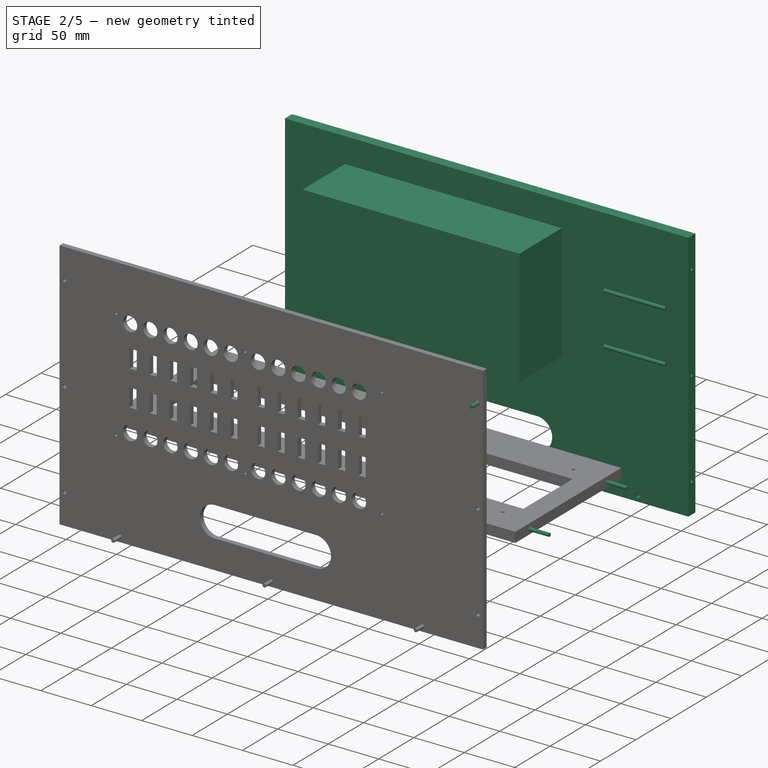
[diagram: stage 2 of 5 — iso view after this stage's code; geometry added in this stage tinted green]
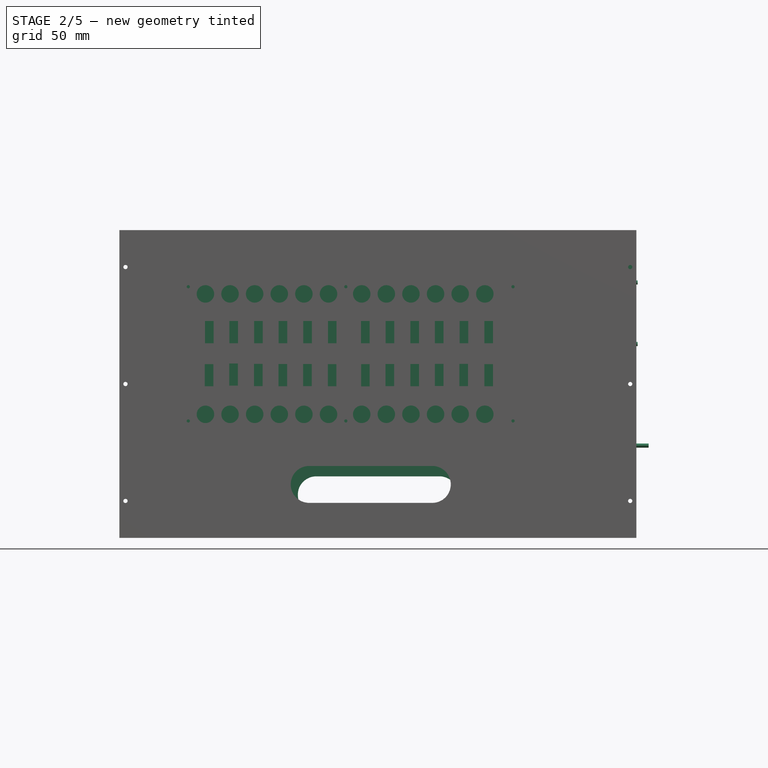
[diagram: stage 2 of 5 — front view after this stage's code; geometry added in this stage tinted green]
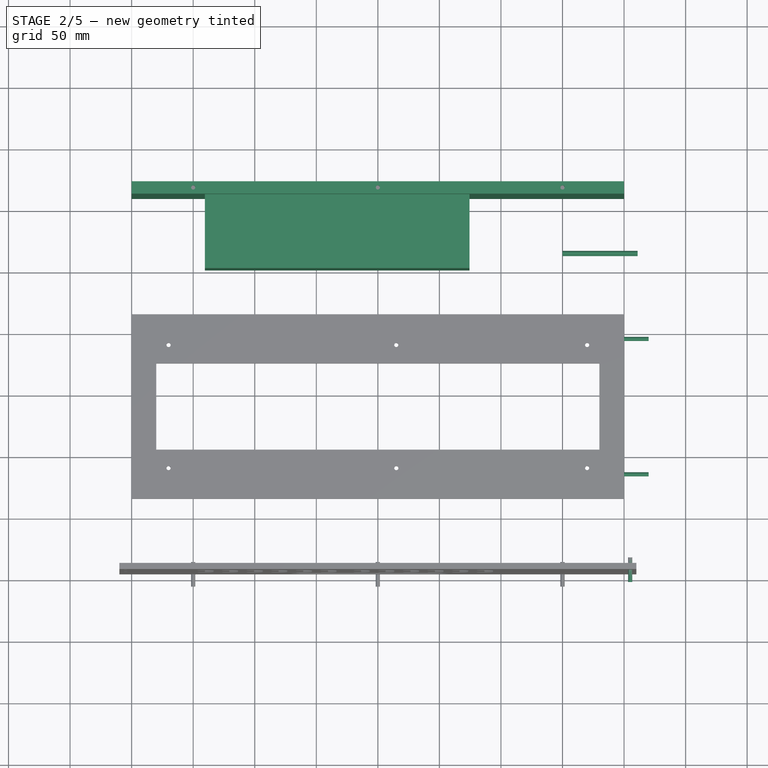
[diagram: stage 2 of 5 — top view after this stage's code; geometry added in this stage tinted green]
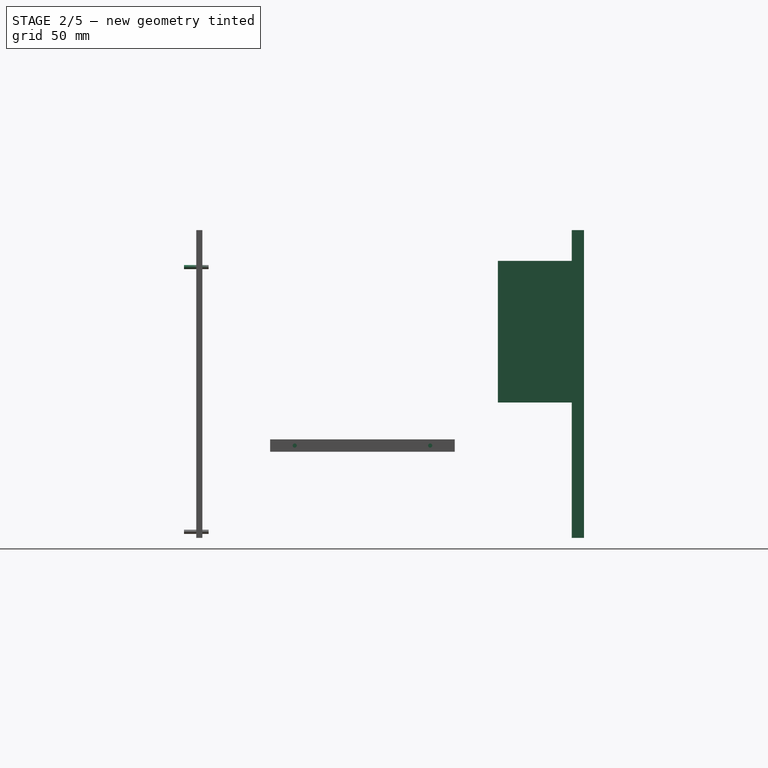
[diagram: stage 2 of 5 — right view after this stage's code; geometry added in this stage tinted green]
FEATURE [Sketcher::SketchObject] Sketch003  label="后面板1"
  Placement = pos=(0,170,0) rot=(1,0,0;1.5708rad)
  sketch-geometry (11):
    g0: LineSegment StartX=-200 StartY=240 StartZ=0 EndX=200 EndY=240 EndZ=0
    g1: LineSegment StartX=200 StartY=240 StartZ=0 EndX=200 EndY=-10 EndZ=0
    g2: LineSegment StartX=200 StartY=-10 StartZ=0 EndX=-200 EndY=-10 EndZ=0
    g3: LineSegment StartX=-200 StartY=-10 StartZ=0 EndX=-200 EndY=240 EndZ=0
    g4: ArcOfCircle CenterX=-50 CenterY=25 CenterZ=0 NormalX=0 NormalY=0 NormalZ=1 Radius=15 StartAngle=1.5708 EndAngle=4.71239
    g5: ArcOfCircle CenterX=50 CenterY=25 CenterZ=0 NormalX=0 NormalY=0 NormalZ=1 Radius=15 StartAngle=4.71239 EndAngle=7.85398
    g6: LineSegment StartX=-50 StartY=10 StartZ=0 EndX=50 EndY=10 EndZ=0
    g7: LineSegment StartX=-50 StartY=40 StartZ=0 EndX=50 EndY=40 EndZ=0
    g8: Circle CenterX=0 CenterY=-5 CenterZ=0 NormalX=0 NormalY=0 NormalZ=1 Radius=1.7
    g9: Circle CenterX=-150 CenterY=-5 CenterZ=0 NormalX=0 NormalY=0 NormalZ=1 Radius=1.7
    g10: Circle CenterX=150 CenterY=-5 CenterZ=0 NormalX=0 NormalY=0 NormalZ=1 Radius=1.7
  constraints (28):
    c: Coincident(g0,g1)
    c: Coincident(g1,g2)
    c: Coincident(g2,g3)
    c: Coincident(g3,g0)
    c: Horizontal(g0)
    c: Horizontal(g2)
    c: Vertical(g1)
    c: Vertical(g3)
    c: DistanceX(g0,g0) = 400
    c: Symmetric(g0,g0,g-2)
    c: DistanceY(g1,g1) = 250
    c: DistanceY(g1,g-1) = 10
    c: Tangent(g4,g7) = 1.5708
    c: Tangent(g4,g6) = -1.5708
    c: Tangent(g6,g5) = -1.5708
    c: Tangent(g7,g5) = 1.5708
    c: Horizontal(g6)
    c: Equal(g4,g5)
    c: Equal(g7,g6)
    c: DistanceY(g-1,g5) = 10
    c: DistanceY(g5,g5) = 30
    c: DistanceX(g4,g5) = 100
    c: Symmetric(g5,g4,g-2)
    c: Radius(g8) = 1.7
    c: Equal(g8,g9)
    c: Equal(g9,g10)
    c: DistanceX(g8,g10) = 150
    c: DistanceX(g9,g8) = 150
FEATURE [PartDesign::Pad] Pad003  label="后面板"
  Length = 10
  Length2 = 100
  Placement = pos=(0,170,0) rot=(1,0,0;1.5708rad)
  Sketch = -> Sketch003
  Type = 0
FEATURE [Sketcher::SketchObject] Sketch004  label="12V电源001"
  Placement = pos=(-33,160,50) rot=(1,0,0;1.5708rad)
  sketch-geometry (4):
    g0: LineSegment StartX=-107.5 StartY=165 StartZ=0 EndX=107.5 EndY=165 EndZ=0
    g1: LineSegment StartX=107.5 StartY=165 StartZ=0 EndX=107.5 EndY=50 EndZ=0
    g2: LineSegment StartX=107.5 StartY=50 StartZ=0 EndX=-107.5 EndY=50 EndZ=0
    g3: LineSegment StartX=-107.5 StartY=50 StartZ=0 EndX=-107.5 EndY=165 EndZ=0
  constraints (12):
    c: Coincident(g0,g1)
    c: Coincident(g1,g2)
    c: Coincident(g2,g3)
    c: Coincident(g3,g0)
    c: Horizontal(g0)
    c: Horizontal(g2)
    c: Vertical(g1)
    c: Vertical(g3)
    c: DistanceX(g0,g0) = 215
    c: DistanceY(g1,g1) = 115
    c: Symmetric(g0,g0,g-2)
    c: DistanceY(g1) = 50
FEATURE [PartDesign::Pad] Pad004  label="12V电源（画出来的）"
  Length = 60
  Length2 = 100
  Placement = pos=(-33,160,50) rot=(1,0,0;1.5708rad)
  Sketch = -> Sketch004
  Type = 0
FEATURE [Part::Cylinder] Cylinder005  label="5V-M4-右下"
  Angle = 360
  Height = 61
  Placement = pos=(150,112.5,147.5) rot=(0,1,0;1.5708rad)
  Radius = 1.7
FEATURE [Part::Cylinder] Cylinder006  label="5V-M4-右上"
  Angle = 360
  Height = 61
  Placement = pos=(150,112.5,197.5) rot=(0,1,0;1.5708rad)
  Radius = 1.7
FEATURE [Part::Cylinder] Cylinder012  label="右侧前003"
  Angle = 360
  Height = 20
  Placement = pos=(205,-135,210) rot=(1,0,0;1.5708rad)
  Radius = 1.7
FEATURE [App::DocumentObjectGroup] ___  label="左边"
  Group = -> [Pad011,Cut012]
FEATURE [Part::Cylinder] Cylinder034  label="串口板右前002"
  Angle = 360
  Height = 20
  Placement = pos=(200,-65,65) rot=(0,1,0;1.5708rad)
  Radius = 1.7
FEATURE [Part::Cylinder] Cylinder035  label="串口板右后002"
  Angle = 360
  Height = 20
  Placement = pos=(200,45,65) rot=(0,1,0;1.5708rad)
  Radius = 1.7
FEATURE [Part::MultiFuse] Fusion010
  Shapes = -> [Cylinder034,Cylinder035]
FEATURE [App::DocumentObjectGroup] Group  label="右边"
  Group = -> [Cut013]
FEATURE [Part::Box] Box001  label="5V电源001"
  Height = 115
  Length = 50
  Placement = pos=(150,-70,115) rot=(0,0,1;0rad)
  Width = 215
FEATURE [Part::Cylinder] Cylinder036  label="5V-M4-左下001"
  Angle = 360
  Height = 61
  Placement = pos=(150,-37.5,147.5) rot=(0,1,0;1.5708rad)
  Radius = 1.7
FEATURE [Part::Cylinder] Cylinder037  label="5V-M4-左上001"
  Angle = 360
  Height = 61
  Placement = pos=(150,-37.5,197.5) rot=(0,1,0;1.5708rad)
  Radius = 1.7
FEATURE [Part::Cylinder] Cylinder038  label="5V-M4-右下001"
  Angle = 360
  Height = 61
  Placement = pos=(150,112.5,147.5) rot=(0,1,0;1.5708rad)
  Radius = 1.7
FEATURE [Part::Cylinder] Cylinder039  label="5V-M4-右上001"
  Angle = 360
  Height = 61
  Placement = pos=(150,112.5,197.5) rot=(0,1,0;1.5708rad)
  Radius = 1.7
FEATURE [Part::MultiFuse] Fusion011  label="5V电源加螺丝to12V电源"
  Placement = pos=(4.5,-41,-15) rot=(0,0,1;1.5708rad)
  Shapes = -> [Cylinder039,Cylinder038,Cylinder037,Cylinder036,Box001]
FEATURE [Part::Cut] Cut014
  Base = -> Pad003
  Tool = -> Fusion011
FEATURE [Sketcher::SketchObject] Sketch019  label="后面板右螺丝"
  Placement = pos=(210,0,0) rot=(0.57735,0.57735,0.57735;2.0944rad)
  sketch-geometry (3):
    g0: Circle CenterX=165 CenterY=210 CenterZ=0 NormalX=0 NormalY=0 NormalZ=1 Radius=1.7
    g1: Circle CenterX=165 CenterY=115 CenterZ=0 NormalX=0 NormalY=0 NormalZ=1 Radius=1.7
    g2: Circle CenterX=165 CenterY=20 CenterZ=0 NormalX=0 NormalY=0 NormalZ=1 Radius=1.7
  constraints (9):
    c: Radius(g2) = 1.7
    c: Equal(g2,g1)
    c: Equal(g2,g0)
    c: DistanceX(g2) = 165
    c: DistanceY(g2) = 20
    c: DistanceX(g1) = 165
    c: DistanceY(g1) = 115
    c: DistanceX(g0) = 165
    c: DistanceY(g0) = 210
FEATURE [PartDesign::Pad] Pad017  label="右面版螺丝"
  Length = 20
  Length2 = 100
  Placement = pos=(210,0,0) rot=(0.57735,0.57735,0.57735;2.0944rad)
  Reversed = true
  Sketch = -> Sketch019
  Type = 0
FEATURE [Sketcher::SketchObject] Sketch020  label="后面板右螺丝001"
  Placement = pos=(-210,0,0) rot=(0.57735,0.57735,0.57735;2.0944rad)
  sketch-geometry (3):
    g0: Circle CenterX=165 CenterY=210 CenterZ=0 NormalX=0 NormalY=0 NormalZ=1 Radius=1.7
    g1: Circle CenterX=165 CenterY=115 CenterZ=0 NormalX=0 NormalY=0 NormalZ=1 Radius=1.7
    g2: Circle CenterX=165 CenterY=20 CenterZ=0 NormalX=0 NormalY=0 NormalZ=1 Radius=1.7
  constraints (9):
    c: Radius(g2) = 1.7
    c: Equal(g2,g1)
    c: Equal(g2,g0)
    c: DistanceX(g2) = 165
    c: DistanceY(g2) = 20
    c: DistanceX(g1) = 165
    c: DistanceY(g1) = 115
    c: DistanceX(g0) = 165
    c: DistanceY(g0) = 210
FEATURE [PartDesign::Pad] Pad018  label="左面版螺丝"
  Length = 20
  Length2 = 100
  Placement = pos=(-210,0,0) rot=(0.57735,0.57735,0.57735;2.0944rad)
  Sketch = -> Sketch020
  Type = 0
FEATURE [Part::MultiFuse] Fusion012  label="后面板螺丝左右"
  Shapes = -> [Pad017,Pad018]
FEATURE [Part::MultiFuse] Fusion013  label="后面板螺丝"
  Shapes = -> [Fusion012,Pad019]
FEATURE [Part::Cut] Cut015  label="开孔后面板"
  Base = -> Cut014
  Tool = -> Fusion013
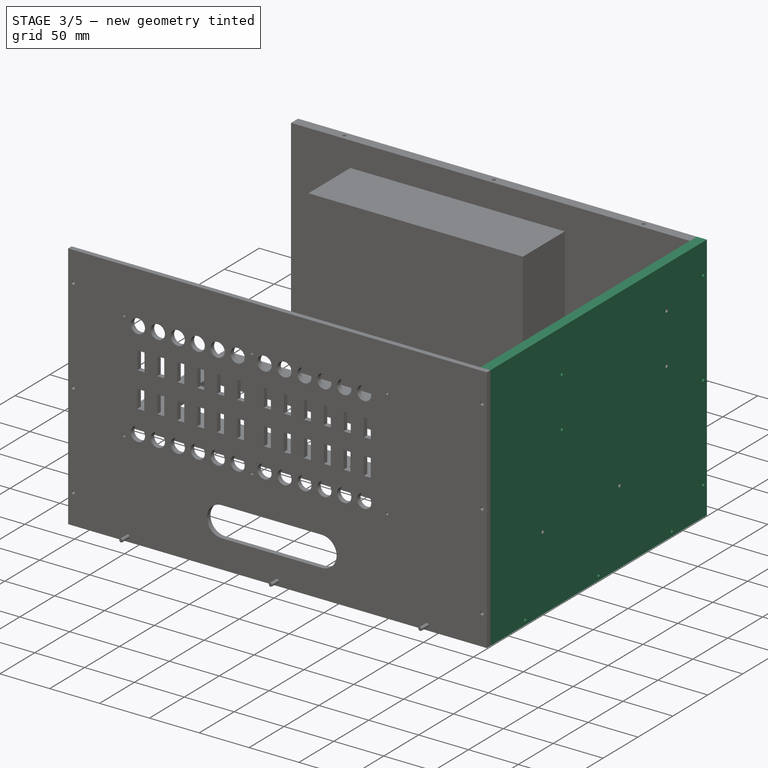
[diagram: stage 3 of 5 — iso view after this stage's code; geometry added in this stage tinted green]
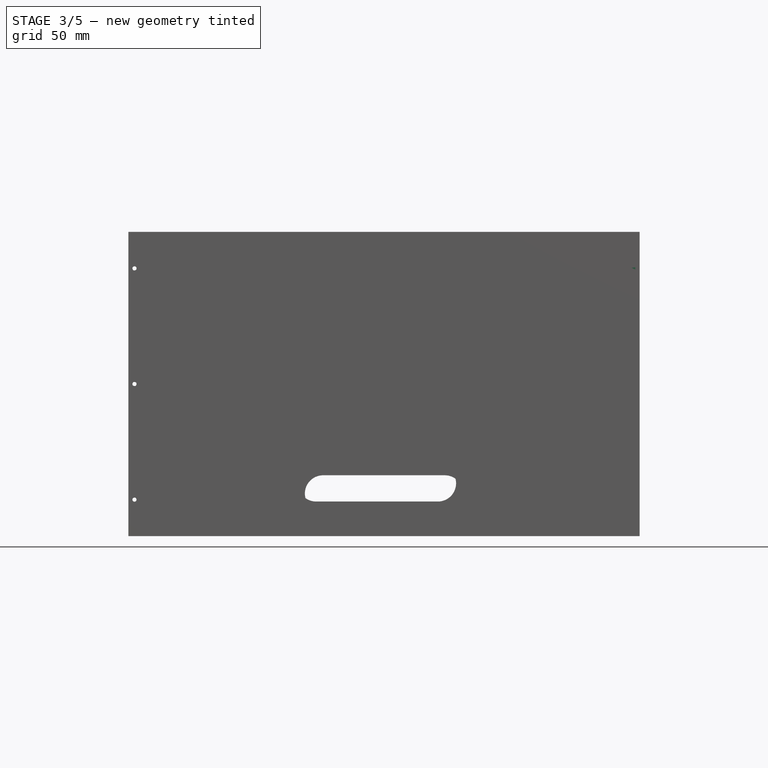
[diagram: stage 3 of 5 — front view after this stage's code; geometry added in this stage tinted green]
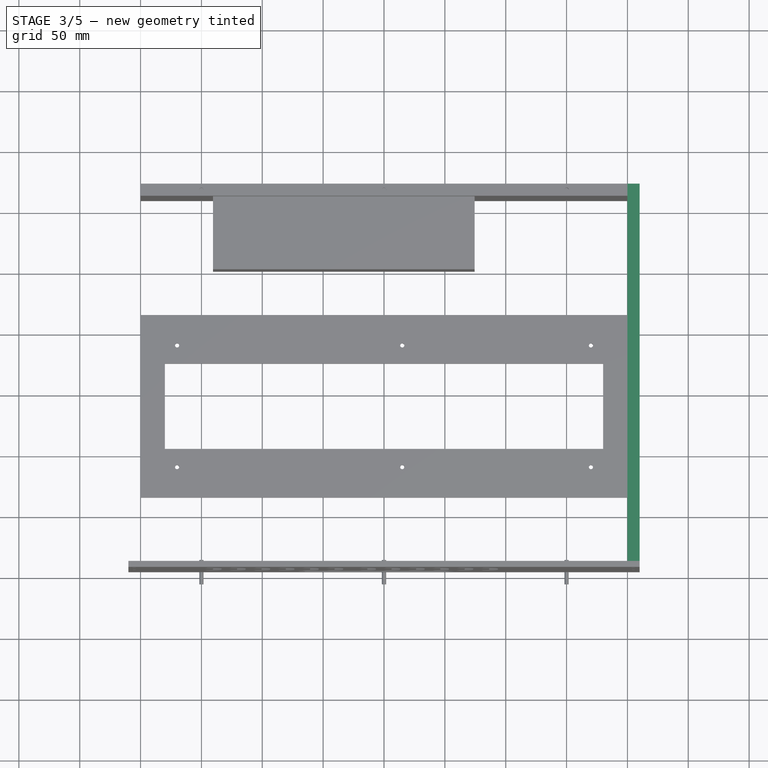
[diagram: stage 3 of 5 — top view after this stage's code; geometry added in this stage tinted green]
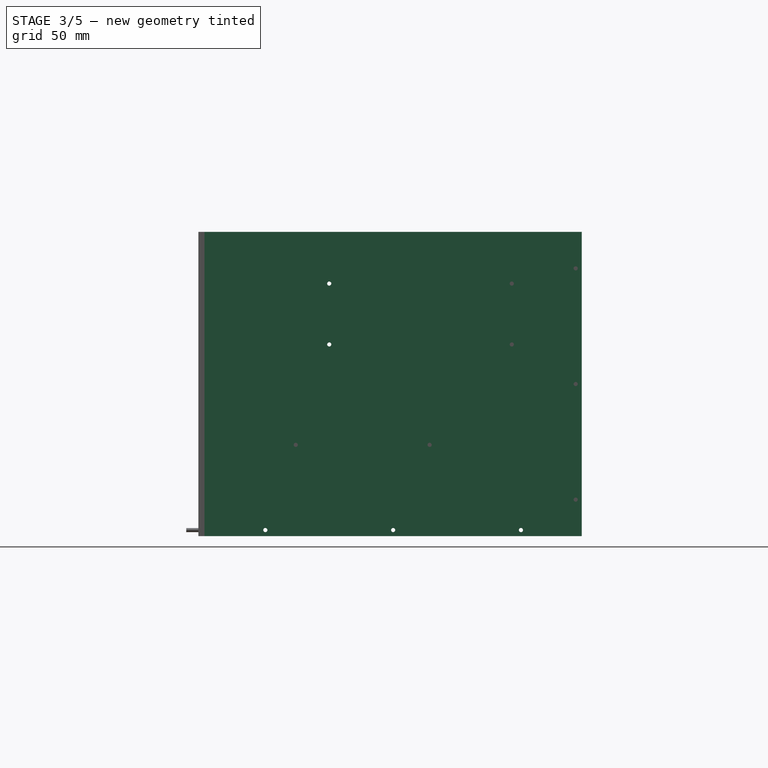
[diagram: stage 3 of 5 — right view after this stage's code; geometry added in this stage tinted green]
FEATURE [Sketcher::SketchObject] Sketch005  label="右侧板图"
  Placement = pos=(200,0,0) rot=(0.57735,0.57735,0.57735;2.0944rad)
  sketch-geometry (14):
    g0: LineSegment StartX=-140 StartY=240 StartZ=0 EndX=170 EndY=240 EndZ=0
    g1: LineSegment StartX=170 StartY=-10 StartZ=0 EndX=-140 EndY=-10 EndZ=0
    g2: LineSegment StartX=-140 StartY=-10 StartZ=0 EndX=-140 EndY=240 EndZ=0
    g3: LineSegment StartX=170 StartY=240 StartZ=0 EndX=170 EndY=-10 EndZ=0
    g4: Circle CenterX=165 CenterY=210 CenterZ=0 NormalX=0 NormalY=0 NormalZ=1 Radius=1.7
    g5: Circle CenterX=165 CenterY=115 CenterZ=0 NormalX=0 NormalY=0 NormalZ=1 Radius=1.7
    g6: Circle CenterX=165 CenterY=20 CenterZ=0 NormalX=0 NormalY=0 NormalZ=1 Radius=1.7
    g7: Circle CenterX=120 CenterY=-5 CenterZ=0 NormalX=0 NormalY=0 NormalZ=1 Radius=1.7
    g8: Circle CenterX=15 CenterY=-5 CenterZ=0 NormalX=0 NormalY=0 NormalZ=1 Radius=1.7
    g9: Circle CenterX=-90 CenterY=-5 CenterZ=0 NormalX=0 NormalY=0 NormalZ=1 Radius=1.7
    g10: Circle CenterX=-37.5 CenterY=197.5 CenterZ=0 NormalX=0 NormalY=0 NormalZ=1 Radius=1.7
    g11: Circle CenterX=-37.5 CenterY=147.5 CenterZ=0 NormalX=0 NormalY=0 NormalZ=1 Radius=1.7
    g12: Circle CenterX=112.5 CenterY=147.5 CenterZ=0 NormalX=0 NormalY=0 NormalZ=1 Radius=1.7
    g13: Circle CenterX=112.5 CenterY=197.5 CenterZ=0 NormalX=0 NormalY=0 NormalZ=1 Radius=1.7
  constraints (41):
    c: Coincident(g1,g2)
    c: Coincident(g2,g0)
    c: Horizontal(g0)
    c: Horizontal(g1)
    c: DistanceX(g0,g0) = 310
    c: Perpendicular(g2,g1)
    c: DistanceX(g0) = 170
    c: Coincident(g3,g0)
    c: Coincident(g3,g1)
    c: Perpendicular(g3,g1,g1) = 4.71239
    c: Radius(g4) = 1.7
    c: Radius(g9) = 1.7
    c: DistanceY(g-1,g9) = -5
    c: Radius(g8) = 1.7
    c: Radius(g5) = 1.7
    c: Radius(g6) = 1.7
    c: Radius(g7) = 1.7
    c: DistanceY(g-1,g8) = -5
    c: DistanceY(g-1,g7) = -5
    c: Distance(g6,g3) = 5
    c: Distance(g5,g3) = 5
    c: Distance(g4,g3) = 5
    c: Radius(g10) = 1.7
    c: Distance(g10,g0) = 42.5
    c: Equal(g10,g11)
    c: Equal(g11,g12)
    c: Equal(g12,g13)
    c: Distance(g11,g0) = 92.5
    c: Distance(g11,g2) = 102.5
    c: Distance(g13,g3) = 57.5
    c: Distance(g13,g0) = 42.5
    c: Distance(g12,g3) = 57.5
    c: Distance(g12,g0) = 92.5
    c: Distance(g4,g0) = 30
    c: Distance(g6,g1) = 30
    c: Distance(g0,g1) = 250
    c: DistanceY(g1,g-1) = 10
    c: Distance(g5,g1) = 125
    c: Distance(g7,g3) = 50
    c: Distance(g9,g2) = 50
    c: Distance(g8,g2) = 155
FEATURE [PartDesign::Pad] Pad005  label="右面板"
  Length = 10
  Length2 = 100
  Placement = pos=(200,0,0) rot=(0.57735,0.57735,0.57735;2.0944rad)
  Sketch = -> Sketch005
  Type = 0
FEATURE [Part::Box] Box  label="5V电源"
  Height = 115
  Length = 50
  Placement = pos=(150,-70,115) rot=(0,0,1;0rad)
  Width = 215
FEATURE [Part::Cylinder] Cylinder002  label="5V-M4-左下"
  Angle = 360
  Height = 61
  Placement = pos=(150,-37.5,147.5) rot=(0,1,0;1.5708rad)
  Radius = 1.7
FEATURE [Part::Cylinder] Cylinder004  label="5V-M4-左上"
  Angle = 360
  Height = 61
  Placement = pos=(150,-37.5,197.5) rot=(0,1,0;1.5708rad)
  Radius = 1.7
FEATURE [Part::MultiFuse] Fusion002  label="5V电源加螺丝"
  Shapes = -> [Cylinder006,Cylinder005,Cylinder004,Cylinder002,Box]
FEATURE [Part::Cut] Cut002  label="右侧开孔"
  Base = -> Pad005
  Tool = -> Fusion002
FEATURE [Part::Cylinder] Cylinder007  label="右侧-上001"
  Angle = 360
  Height = 20
  Placement = pos=(205,-90,235) rot=(0,0,1;0rad)
  Radius = 1.7
FEATURE [Part::Cylinder] Cylinder008  label="右侧-上002"
  Angle = 360
  Height = 20
  Placement = pos=(205,15,235) rot=(0,0,1;0rad)
  Radius = 1.7
FEATURE [Part::Cylinder] Cylinder009  label="右侧-上003"
  Angle = 360
  Height = 20
  Placement = pos=(205,120,235) rot=(0,0,1;0rad)
  Radius = 1.7
FEATURE [Part::Cylinder] Cylinder010  label="右侧前001"
  Angle = 360
  Height = 20
  Placement = pos=(205,-135,20) rot=(1,0,0;1.5708rad)
  Radius = 1.7
FEATURE [Part::Cylinder] Cylinder011  label="右侧前002"
  Angle = 360
  Height = 20
  Placement = pos=(205,-135,115) rot=(1,0,0;1.5708rad)
  Radius = 1.7
FEATURE [Part::Cut] Cut005
  Base = -> Cut002
  Tool = -> Cylinder007
FEATURE [Part::Cut] Cut006
  Base = -> Cut002
  Tool = -> Cylinder008
FEATURE [Part::Cut] Cut007
  Base = -> Cut002
  Tool = -> Cylinder009
FEATURE [Part::Cut] Cut008
  Base = -> Cut002
  Tool = -> Cylinder010
FEATURE [Part::Cut] Cut009
  Base = -> Cut002
  Tool = -> Cylinder011
FEATURE [Part::Cut] Cut010  label="ok"
  Base = -> Cut002
  Tool = -> Cylinder012
FEATURE [Part::MultiFuse] Fusion003  label="右侧开孔001"
  Shapes = -> [Cut005,Cut007,Cut006,Cut008,Cut009,Cut010]
FEATURE [Part::Cut] Cut013  label="右侧"
  Base = -> Fusion003
  Tool = -> Fusion010
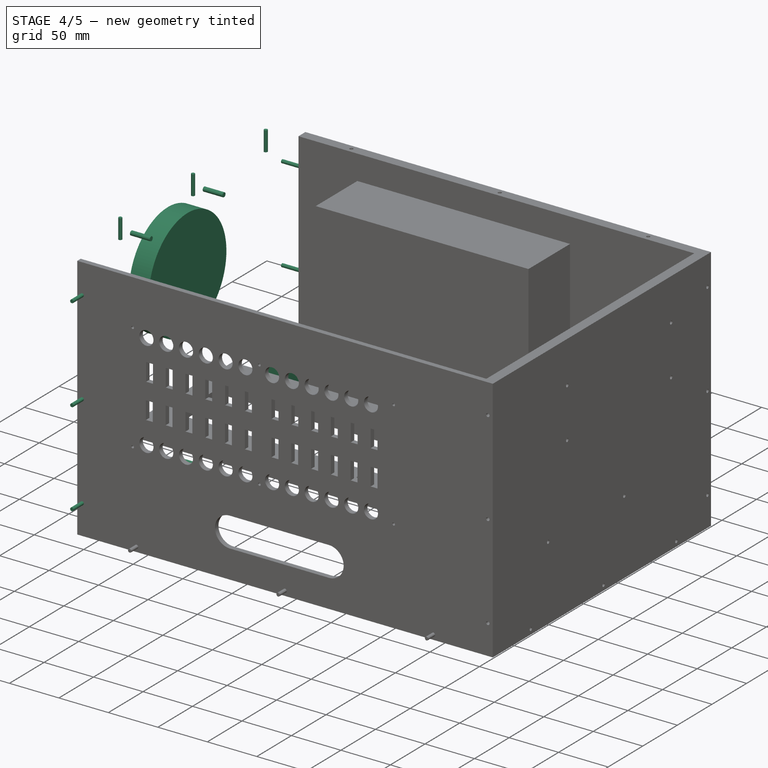
[diagram: stage 4 of 5 — iso view after this stage's code; geometry added in this stage tinted green]
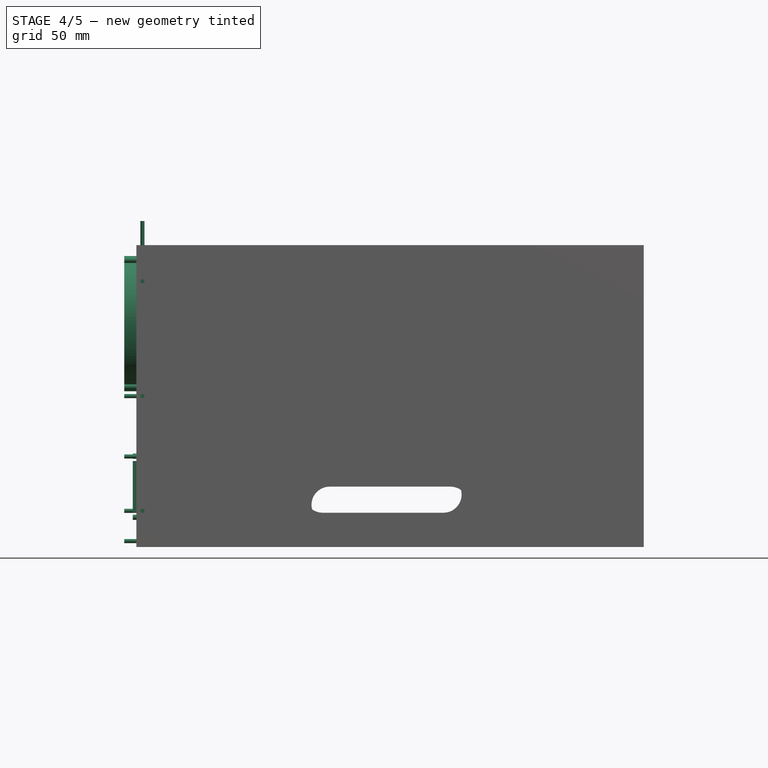
[diagram: stage 4 of 5 — front view after this stage's code; geometry added in this stage tinted green]
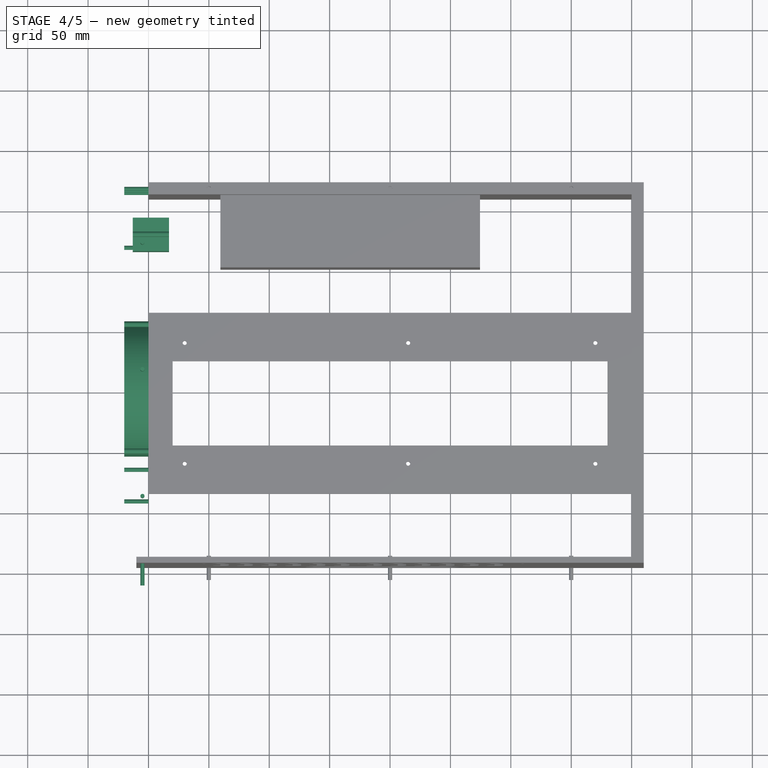
[diagram: stage 4 of 5 — top view after this stage's code; geometry added in this stage tinted green]
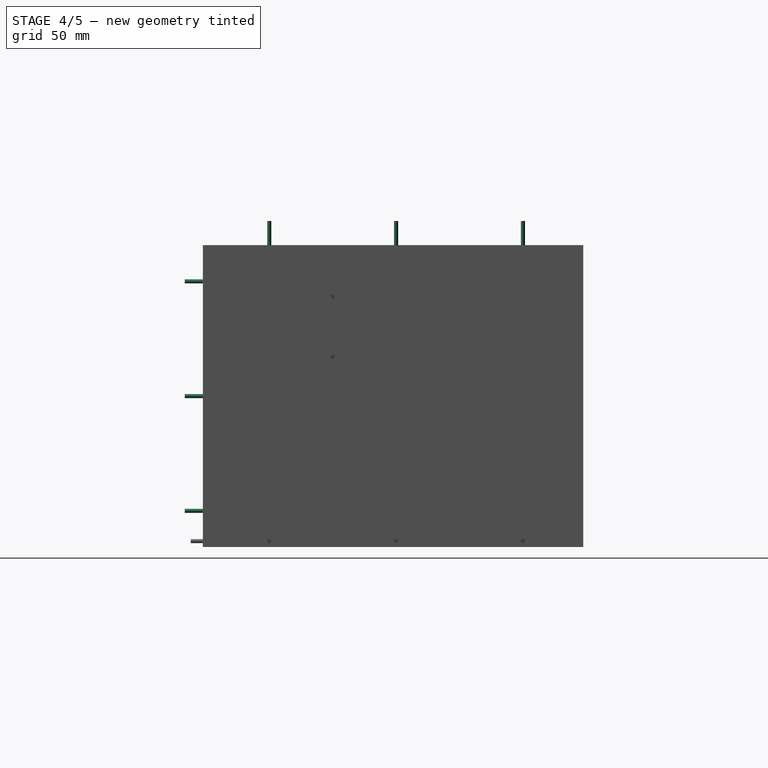
[diagram: stage 4 of 5 — right view after this stage's code; geometry added in this stage tinted green]
FEATURE [Sketcher::SketchObject] Sketch012
  Placement = pos=(-213,130,40) rot=(0.57735,0.57735,0.57735;2.0944rad)
  sketch-geometry (6):
    g0: Circle CenterX=0 CenterY=25.3 CenterZ=0 NormalX=0 NormalY=0 NormalZ=1 Radius=2.2
    g1: Circle CenterX=0 CenterY=-25.3 CenterZ=0 NormalX=0 NormalY=0 NormalZ=1 Radius=2.2
    g2: LineSegment StartX=-13.9 StartY=21.25 StartZ=0 EndX=13.9 EndY=21.25 EndZ=0
    g3: LineSegment StartX=13.9 StartY=21.25 StartZ=0 EndX=13.9 EndY=-21.25 EndZ=0
    g4: LineSegment StartX=13.9 StartY=-21.25 StartZ=0 EndX=-13.9 EndY=-21.25 EndZ=0
    g5: LineSegment StartX=-13.9 StartY=-21.25 StartZ=0 EndX=-13.9 EndY=21.25 EndZ=0
  constraints (16):
    c: Symmetric(g0,g1,g-1)
    c: Radius(g0) = 2.2
    c: Equal(g0,g1)
    c: Coincident(g2,g3)
    c: Coincident(g3,g4)
    c: Coincident(g4,g5)
    c: Coincident(g5,g2)
    c: Horizontal(g2)
    c: Horizontal(g4)
    c: Vertical(g3)
    c: Vertical(g5)
    c: Symmetric(g2,g3,g-1)
    c: DistanceY(g3,g3) = 42.5
    c: DistanceY(g1,g0) = 50.6
    c: DistanceX(g2,g2) = 27.8
    c: Symmetric(g2,g2,g-2)
FEATURE [PartDesign::Pad] Pad012  label="品形插座"
  Length = 30
  Length2 = 100
  Placement = pos=(-213,130,40) rot=(0.57735,0.57735,0.57735;2.0944rad)
  Sketch = -> Sketch012
  Type = 0
FEATURE [Sketcher::SketchObject] Sketch018
  Placement = pos=(-200,0,175) rot=(0.57735,0.57735,0.57735;2.0944rad)
  sketch-geometry (5):
    g0: Circle CenterX=-52.5 CenterY=52.5 CenterZ=0 NormalX=0 NormalY=0 NormalZ=1 Radius=2.2
    g1: Circle CenterX=52.5 CenterY=52.5 CenterZ=0 NormalX=0 NormalY=0 NormalZ=1 Radius=2.2
    g2: Circle CenterX=-52.5 CenterY=-52.5 CenterZ=0 NormalX=0 NormalY=0 NormalZ=1 Radius=2.2
    g3: Circle CenterX=52.5 CenterY=-52.5 CenterZ=0 NormalX=0 NormalY=0 NormalZ=1 Radius=2.2
    g4: Circle CenterX=0 CenterY=0 CenterZ=0 NormalX=0 NormalY=0 NormalZ=1 Radius=56
  constraints (11):
    c: Symmetric(g2,g3,g-2)
    c: Symmetric(g0,g1,g-2)
    c: Symmetric(g0,g2,g-1)
    c: DistanceX(g2,g3) = 105
    c: DistanceY(g2,g0) = 105
    c: Radius(g2) = 2.2
    c: Radius(g3) = 2.2
    c: Radius(g0) = 2.2
    c: Radius(g1) = 2.2
    c: Coincident(g4,g-1)
    c: Radius(g4) = 56
FEATURE [PartDesign::Pad] Pad016  label="风扇挖空块"
  Length = 20
  Length2 = 100
  Placement = pos=(-200,0,175) rot=(0.57735,0.57735,0.57735;2.0944rad)
  Reversed = true
  Sketch = -> Sketch018
  Type = 0
FEATURE [Part::Cylinder] Cylinder019  label="串口板左前001"
  Angle = 360
  Height = 20
  Placement = pos=(-220,-65,65) rot=(0,1,0;1.5708rad)
  Radius = 1.7
FEATURE [Part::Cylinder] Cylinder020  label="串口板左后001"
  Angle = 360
  Height = 20
  Placement = pos=(-220,45,65) rot=(0,1,0;1.5708rad)
  Radius = 1.7
FEATURE [App::DocumentObjectGroup] ___001  label="备份"
  Group = -> [Pad015]
FEATURE [Part::Cylinder] Cylinder022  label="下1"
  Angle = 360
  Height = 20
  Placement = pos=(-220,-90,-5) rot=(0,1,0;1.5708rad)
  Radius = 1.7
FEATURE [Part::Cylinder] Cylinder023  label="下002"
  Angle = 360
  Height = 20
  Placement = pos=(-220,15,-5) rot=(0,1,0;1.5708rad)
  Radius = 1.7
FEATURE [Part::Cylinder] Cylinder024  label="下003"
  Angle = 360
  Height = 20
  Placement = pos=(-220,120,-5) rot=(0,1,0;1.5708rad)
  Radius = 1.7
FEATURE [Part::Cylinder] Cylinder025  label="后1"
  Angle = 360
  Height = 20
  Placement = pos=(-220,165,20) rot=(0,1,0;1.5708rad)
  Radius = 1.7
FEATURE [Part::Cylinder] Cylinder026  label="后2"
  Angle = 360
  Height = 20
  Placement = pos=(-220,165,115) rot=(0,1,0;1.5708rad)
  Radius = 1.7
FEATURE [Part::Cylinder] Cylinder027  label="后3"
  Angle = 360
  Height = 20
  Placement = pos=(-220,165,210) rot=(0,1,0;1.5708rad)
  Radius = 1.7
FEATURE [Part::Cylinder] Cylinder028  label="前1"
  Angle = 360
  Height = 20
  Placement = pos=(-205,-140,20) rot=(1,0,0;1.5708rad)
  Radius = 1.7
FEATURE [Part::Cylinder] Cylinder029  label="上1"
  Angle = 360
  Height = 20
  Placement = pos=(-205,-90,240) rot=(0,0,1;0rad)
  Radius = 1.7
FEATURE [Part::Cylinder] Cylinder031  label="前003"
  Angle = 360
  Height = 20
  Placement = pos=(-205,-140,210) rot=(1,0,0;1.5708rad)
  Radius = 1.7
FEATURE [Part::Cylinder] Cylinder030  label="前002"
  Angle = 360
  Height = 20
  Placement = pos=(-205,-140,115) rot=(1,0,0;1.5708rad)
  Radius = 1.7
FEATURE [Part::Cylinder] Cylinder032  label="上002"
  Angle = 360
  Height = 20
  Placement = pos=(-205,15,240) rot=(0,0,1;0rad)
  Radius = 1.7
FEATURE [Part::Cylinder] Cylinder033  label="上003"
  Angle = 360
  Height = 20
  Placement = pos=(-205,120,240) rot=(0,0,1;0rad)
  Radius = 1.7
FEATURE [Part::MultiFuse] Fusion006
  Shapes = -> [Cylinder029,Cylinder033,Cylinder031,Cylinder028,Cylinder032,Cylinder030]
FEATURE [Part::MultiFuse] Fusion007
  Shapes = -> [Cylinder022,Cylinder024,Cylinder025,Cylinder026,Cylinder027,Cylinder023]
FEATURE [Part::MultiFuse] Fusion008
  Shapes = -> [Cylinder019,Cylinder020]
FEATURE [Part::MultiFuse] Fusion009
  Shapes = -> [Fusion008,Fusion006,Fusion007]
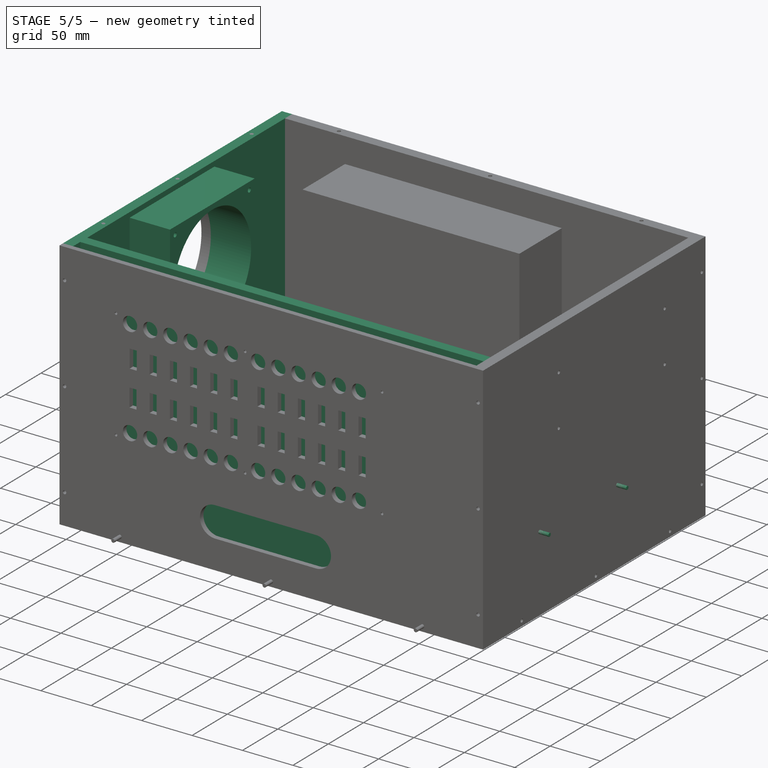
[diagram: stage 5 of 5 — iso view after this stage's code; geometry added in this stage tinted green]
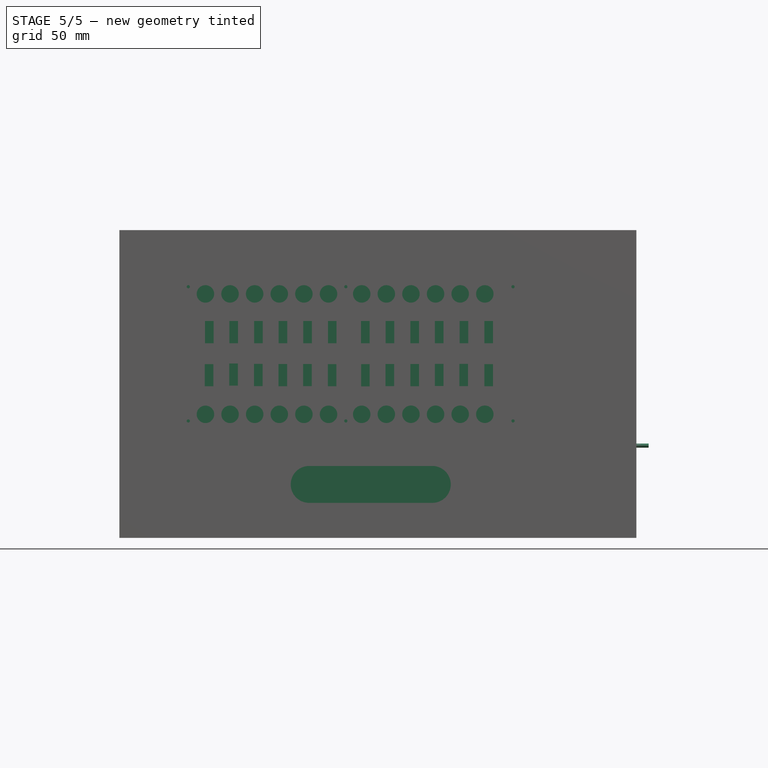
[diagram: stage 5 of 5 — front view after this stage's code; geometry added in this stage tinted green]
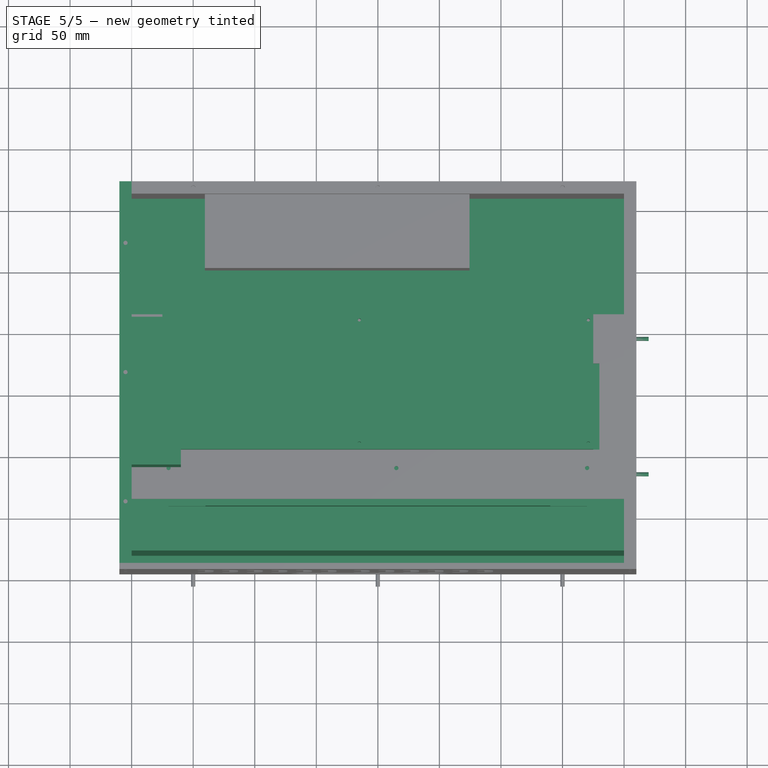
[diagram: stage 5 of 5 — top view after this stage's code; geometry added in this stage tinted green]
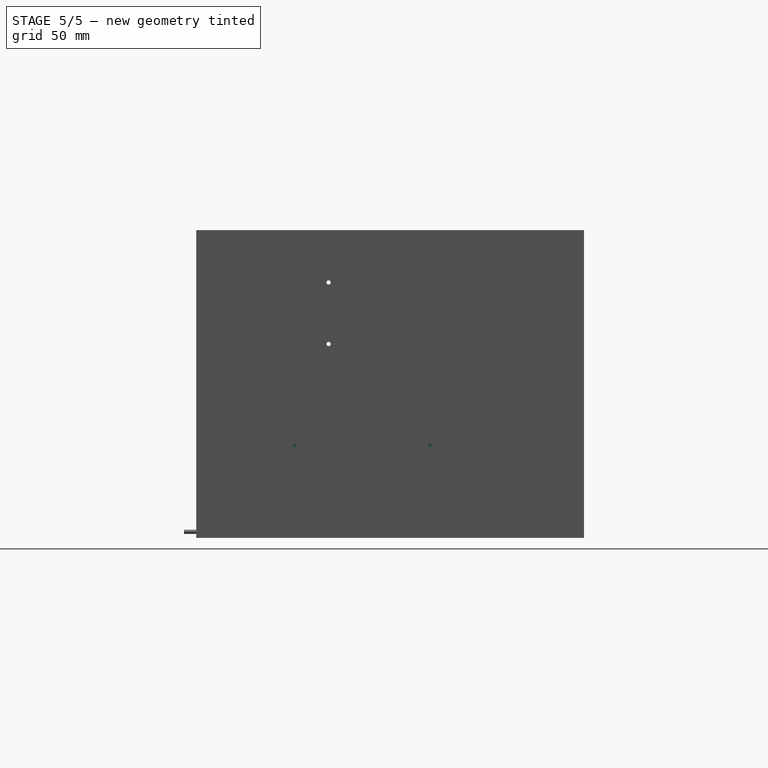
[diagram: stage 5 of 5 — right view after this stage's code; geometry added in this stage tinted green]
FEATURE [Sketcher::SketchObject] Sketch
  sketch-geometry (4):
    g0: LineSegment StartX=-140 StartY=90 StartZ=0 EndX=140 EndY=90 EndZ=0
    g1: LineSegment StartX=140 StartY=90 StartZ=0 EndX=140 EndY=-90 EndZ=0
    g2: LineSegment StartX=140 StartY=-90 StartZ=0 EndX=-140 EndY=-90 EndZ=0
    g3: LineSegment StartX=-140 StartY=-90 StartZ=0 EndX=-140 EndY=90 EndZ=0
  constraints (12):
    c: Coincident(g0,g1)
    c: Coincident(g1,g2)
    c: Coincident(g2,g3)
    c: Coincident(g3,g0)
    c: Horizontal(g0)
    c: Horizontal(g2)
    c: Vertical(g1)
    c: Vertical(g3)
    c: Distance(g1) = 180
    c: Distance(g0) = 280
    c: DistanceX(g0) = 140
    c: DistanceY(g0) = 90
FEATURE [PartDesign::Pad] Pad
  Length = 44
  Length2 = 100
  Sketch = -> Sketch
  Type = 0
FEATURE [Sketcher::SketchObject] Sketch001
  sketch-geometry (8):
    g0: LineSegment StartX=140 StartY=-36 StartZ=0 EndX=170 EndY=-36 EndZ=0
    g1: LineSegment StartX=170 StartY=-36 StartZ=0 EndX=170 EndY=-90 EndZ=0
    g2: LineSegment StartX=170 StartY=-90 StartZ=0 EndX=140 EndY=-90 EndZ=0
    g3: LineSegment StartX=140 StartY=-90 StartZ=0 EndX=140 EndY=-36 EndZ=0
    g4: LineSegment StartX=-170 StartY=-36 StartZ=0 EndX=-140 EndY=-36 EndZ=0
    g5: LineSegment StartX=-140 StartY=-36 StartZ=0 EndX=-140 EndY=-90 EndZ=0
    g6: LineSegment StartX=-140 StartY=-90 StartZ=0 EndX=-170 EndY=-90 EndZ=0
    g7: LineSegment StartX=-170 StartY=-90 StartZ=0 EndX=-170 EndY=-36 EndZ=0
  constraints (21):
    c: Coincident(g0,g1)
    c: Coincident(g1,g2)
    c: Coincident(g3,g0)
    c: Horizontal(g0)
    c: Horizontal(g2)
    c: Vertical(g1)
    c: Vertical(g3)
    c: DistanceY(g1,g1) = 54
    c: DistanceX(g0,g0) = 30
    c: Coincident(g4,g5)
    c: Coincident(g5,g6)
    c: Coincident(g6,g7)
    c: Coincident(g7,g4)
    c: Horizontal(g4)
    c: Horizontal(g6)
    c: Vertical(g5)
    c: Vertical(g7)
    c: DistanceX(g5) = -140
    c: DistanceY(g5) = -90
    c: DistanceX(g6,g6) = 30
    c: DistanceY(g7,g7) = 54
FEATURE [PartDesign::Pad] Pad001
  Length = 10
  Length2 = 100
  Sketch = -> Sketch001
  Type = 0
FEATURE [Sketcher::SketchObject] Sketch002
  Placement = pos=(0,0,-10) rot=(1,0,0;3.14159rad)
  sketch-geometry (4):
    g0: LineSegment StartX=-200 StartY=140 StartZ=0 EndX=200 EndY=140 EndZ=0
    g1: LineSegment StartX=200 StartY=140 StartZ=0 EndX=200 EndY=-160 EndZ=0
    g2: LineSegment StartX=200 StartY=-160 StartZ=0 EndX=-200 EndY=-160 EndZ=0
    g3: LineSegment StartX=-200 StartY=-160 StartZ=0 EndX=-200 EndY=140 EndZ=0
  constraints (13):
    c: Coincident(g1,g2)
    c: Coincident(g2,g3)
    c: Coincident(g3,g0)
    c: Horizontal(g0)
    c: Horizontal(g2)
    c: Vertical(g1)
    c: Vertical(g3)
    c: DistanceX(g0) = 200
    c: DistanceX(g0,g0) = 400
    c: DistanceX(g1) = 200
    c: DistanceY(g1,g1) = 300
    c: DistanceY(g-1,g0) = 140
    c: DistanceY(g1,g-1) = 160
FEATURE [PartDesign::Pad] Pad002  label="底面板"
  Length = 10
  Length2 = 100
  Placement = pos=(0,0,-10) rot=(1,0,0;3.14159rad)
  Reversed = true
  Sketch = -> Sketch002
  Type = 0
FEATURE [Part::Cylinder] Cylinder
  Angle = 360
  Height = 50
  Placement = pos=(155,-66,-25) rot=(0,0,1;0rad)
  Radius = 5
FEATURE [Part::Cylinder] Cylinder001
  Angle = 360
  Height = 50
  Placement = pos=(-155,-66,-30) rot=(0,0,1;0rad)
  Radius = 5
FEATURE [Part::MultiFuse] Fusion  label="交换机"
  Shapes = -> [Pad001,Pad]
FEATURE [Part::MultiFuse] Fusion001  label="交换机加底面板"
  Shapes = -> [Pad002,Fusion]
FEATURE [Part::Cut] Cut
  Base = -> Fusion001
  Tool = -> Cylinder
FEATURE [Part::Cut] Cut001  label="底面"
  Base = -> Cut
  Tool = -> Cylinder001
FEATURE [Sketcher::SketchObject] Sketch006  label="左侧面板"
  Placement = pos=(-210,0,0) rot=(0.57735,0.57735,0.57735;2.0944rad)
  sketch-geometry (4):
    g0: LineSegment StartX=-140 StartY=240 StartZ=0 EndX=170 EndY=240 EndZ=0
    g1: LineSegment StartX=170 StartY=240 StartZ=0 EndX=170 EndY=-10 EndZ=0
    g2: LineSegment StartX=170 StartY=-10 StartZ=0 EndX=-140 EndY=-10 EndZ=0
    g3: LineSegment StartX=-140 StartY=-10 StartZ=0 EndX=-140 EndY=240 EndZ=0
  constraints (12):
    c: Coincident(g0,g1)
    c: Coincident(g1,g2)
    c: Coincident(g2,g3)
    c: Coincident(g3,g0)
    c: Horizontal(g0)
    c: Horizontal(g2)
    c: Vertical(g1)
    c: Vertical(g3)
    c: DistanceY(g-1,g1) = -10
    c: DistanceX(g-1,g0) = 170
    c: DistanceX(g0,g-1) = 140
    c: DistanceY(g1,g1) = 250
FEATURE [PartDesign::Pad] Pad006  label="左侧"
  Length = 10
  Length2 = 100
  Placement = pos=(-210,0,0) rot=(0.57735,0.57735,0.57735;2.0944rad)
  Sketch = -> Sketch006
  Type = 0
FEATURE [Sketcher::SketchObject] Sketch007
  Placement = pos=(0,-120,0) rot=(1,0,0;1.5708rad)
  sketch-geometry (4):
    g0: LineSegment StartX=-200 StartY=240 StartZ=0 EndX=200 EndY=240 EndZ=0
    g1: LineSegment StartX=200 StartY=240 StartZ=0 EndX=200 EndY=-10 EndZ=0
    g2: LineSegment StartX=200 StartY=-10 StartZ=0 EndX=-200 EndY=-10 EndZ=0
    g3: LineSegment StartX=-200 StartY=-10 StartZ=0 EndX=-200 EndY=240 EndZ=0
  constraints (12):
    c: Coincident(g0,g1)
    c: Coincident(g1,g2)
    c: Coincident(g2,g3)
    c: Coincident(g3,g0)
    c: Horizontal(g0)
    c: Horizontal(g2)
    c: Vertical(g1)
    c: Vertical(g3)
    c: DistanceX(g0,g0) = 400
    c: Symmetric(g0,g0,g-2)
    c: DistanceY(g1,g1) = 250
    c: DistanceY(g-1,g1) = -10
FEATURE [PartDesign::Pad] Pad007  label="纯前面板"
  Length = 10
  Length2 = 100
  Placement = pos=(0,-120,0) rot=(1,0,0;1.5708rad)
  Sketch = -> Sketch007
  Type = 0
FEATURE [Sketcher::SketchObject] Sketch011
  Placement = pos=(-200,0,175) rot=(0.57735,0.57735,0.57735;2.0944rad)
  sketch-geometry (9):
    g0: LineSegment StartX=-60 StartY=60 StartZ=0 EndX=60 EndY=60 EndZ=0
    g1: LineSegment StartX=60 StartY=60 StartZ=0 EndX=60 EndY=-60 EndZ=0
    g2: LineSegment StartX=60 StartY=-60 StartZ=0 EndX=-60 EndY=-60 EndZ=0
    g3: LineSegment StartX=-60 StartY=-60 StartZ=0 EndX=-60 EndY=60 EndZ=0
    g4: Circle CenterX=-52.5 CenterY=52.5 CenterZ=0 NormalX=0 NormalY=0 NormalZ=1 Radius=2.2
    g5: Circle CenterX=52.5 CenterY=52.5 CenterZ=0 NormalX=0 NormalY=0 NormalZ=1 Radius=2.2
    g6: Circle CenterX=-52.5 CenterY=-52.5 CenterZ=0 NormalX=0 NormalY=0 NormalZ=1 Radius=2.2
    g7: Circle CenterX=52.5 CenterY=-52.5 CenterZ=0 NormalX=0 NormalY=0 NormalZ=1 Radius=2.2
    g8: Circle CenterX=0 CenterY=0 CenterZ=0 NormalX=0 NormalY=0 NormalZ=1 Radius=55
  constraints (22):
    c: Coincident(g0,g1)
    c: Coincident(g1,g2)
    c: Coincident(g2,g3)
    c: Coincident(g3,g0)
    c: Horizontal(g2)
    c: Vertical(g1)
    c: Vertical(g3)
    c: Symmetric(g0,g0,g-2)
    c: Symmetric(g0,g1,g-1)
    c: DistanceY(g1,g1) = 120
    c: DistanceX(g0,g0) = 120
    c: Symmetric(g6,g7,g-2)
    c: Symmetric(g4,g5,g-2)
    c: Symmetric(g4,g6,g-1)
    c: DistanceX(g6,g7) = 105
    c: DistanceY(g6,g4) = 105
    c: Radius(g6) = 2.2
    c: Radius(g7) = 2.2
    c: Radius(g4) = 2.2
    c: Radius(g5) = 2.2
    c: Coincident(g8,g-1)
    c: Radius(g8) = 55
FEATURE [PartDesign::Pad] Pad011  label="风扇"
  Length = 40
  Length2 = 100
  Placement = pos=(-200,0,175) rot=(0.57735,0.57735,0.57735;2.0944rad)
  Sketch = -> Sketch011
  Type = 0
FEATURE [Sketcher::SketchObject] Sketch014
  Placement = pos=(0,10,70) rot=(0,0,1;0rad)
  sketch-geometry (10):
    g0: LineSegment StartX=-175 StartY=55 StartZ=0 EndX=175 EndY=55 EndZ=0
    g1: LineSegment StartX=175 StartY=55 StartZ=0 EndX=175 EndY=-55 EndZ=0
    g2: LineSegment StartX=175 StartY=-55 StartZ=0 EndX=-175 EndY=-55 EndZ=0
    g3: LineSegment StartX=-175 StartY=-55 StartZ=0 EndX=-175 EndY=55 EndZ=0
    g4: Circle CenterX=170.934 CenterY=50 CenterZ=0 NormalX=0 NormalY=0 NormalZ=1 Radius=1.3
    g5: Circle CenterX=170.934 CenterY=-50 CenterZ=0 NormalX=0 NormalY=0 NormalZ=1 Radius=1.3
    g6: Circle CenterX=-15.0664 CenterY=50 CenterZ=0 NormalX=0 NormalY=0 NormalZ=1 Radius=1.3
    g7: Circle CenterX=-15.0664 CenterY=-50 CenterZ=0 NormalX=0 NormalY=0 NormalZ=1 Radius=1.3
    g8: Circle CenterX=-171.066 CenterY=-50 CenterZ=0 NormalX=0 NormalY=0 NormalZ=1 Radius=1.3
    g9: Circle CenterX=-171.066 CenterY=50 CenterZ=0 NormalX=0 NormalY=0 NormalZ=1 Radius=1.3
  constraints (26):
    c: Coincident(g0,g1)
    c: Coincident(g1,g2)
    c: Coincident(g2,g3)
    c: Coincident(g3,g0)
    c: Horizontal(g0)
    c: Horizontal(g2)
    c: Vertical(g1)
    c: Vertical(g3)
    c: DistanceX(g0,g0) = 350
    c: DistanceY(g1,g1) = 110
    c: Symmetric(g0,g0,g-2)
    c: Radius(g4) = 1.3
    c: Radius(g5) = 1.3
    c: DistanceY(g5,g4) = 100
    c: Symmetric(g0,g1,g-1)
    c: Symmetric(g4,g5,g-1)
    c: Symmetric(g6,g7,g-1)
    c: Symmetric(g9,g8,g-1)
    c: DistanceY(g8,g9) = 100
    c: DistanceY(g7,g6) = 100
    c: Radius(g9) = 1.3
    c: Radius(g8) = 1.3
    c: Radius(g7) = 1.3
    c: Radius(g6) = 1.3
    c: DistanceX(g8,g7) = 156
    c: DistanceX(g7,g5) = 186
FEATURE [PartDesign::Pad] Pad014  label="串口板模型"
  Length = 20
  Length2 = 100
  Placement = pos=(0,10,70) rot=(0,0,1;0rad)
  Sketch = -> Sketch014
  Type = 0
FEATURE [Sketcher::SketchObject] Sketch015
  Placement = pos=(-160,-110,200) rot=(0.57735,0.57735,-0.57735;2.0944rad)
  sketch-geometry (134):
    g0: LineSegment StartX=0 StartY=300 StartZ=0 EndX=121 EndY=300 EndZ=0
    g1: LineSegment StartX=121 StartY=300 StartZ=0 EndX=121 EndY=0 EndZ=0
    g2: LineSegment StartX=121 StartY=0 StartZ=0 EndX=0 EndY=0 EndZ=0
    g3: LineSegment StartX=0 StartY=0 StartZ=0 EndX=0 EndY=300 EndZ=0
    g4: Circle CenterX=11.81 CenterY=19.93 CenterZ=0 NormalX=0 NormalY=0 NormalZ=1 Radius=7.1
    g5: Circle CenterX=11.81 CenterY=39.93 CenterZ=0 NormalX=0 NormalY=0 NormalZ=1 Radius=7.1
    g6: Circle CenterX=11.81 CenterY=59.93 CenterZ=0 NormalX=0 NormalY=0 NormalZ=1 Radius=7.1
    g7: Circle CenterX=11.81 CenterY=79.93 CenterZ=0 NormalX=0 NormalY=0 NormalZ=1 Radius=7.1
    g8: Circle CenterX=11.81 CenterY=99.93 CenterZ=0 NormalX=0 NormalY=0 NormalZ=1 Radius=7.1
    g9: Circle CenterX=11.81 CenterY=119.93 CenterZ=0 NormalX=0 NormalY=0 NormalZ=1 Radius=7.1
    g10: Circle CenterX=11.81 CenterY=146.89 CenterZ=0 NormalX=0 NormalY=0 NormalZ=1 Radius=7.1
    g11: Circle CenterX=11.81 CenterY=166.89 CenterZ=0 NormalX=0 NormalY=0 NormalZ=1 Radius=7.1
    g12: Circle CenterX=11.81 CenterY=186.89 CenterZ=0 NormalX=0 NormalY=0 NormalZ=1 Radius=7.1
    g13: Circle CenterX=11.81 CenterY=246.89 CenterZ=0 NormalX=0 NormalY=0 NormalZ=1 Radius=7.1
    g14: Circle CenterX=109.58 CenterY=246.89 CenterZ=0 NormalX=0 NormalY=0 NormalZ=1 Radius=7.1
    g15: Circle CenterX=11.81 CenterY=226.89 CenterZ=0 NormalX=0 NormalY=0 NormalZ=1 Radius=7.1
    g16: Circle CenterX=11.81 CenterY=206.89 CenterZ=0 NormalX=0 NormalY=0 NormalZ=1 Radius=7.1
    g17: Circle CenterX=109.58 CenterY=186.89 CenterZ=0 NormalX=0 NormalY=0 NormalZ=1 Radius=7.1
    g18: Circle CenterX=109.58 CenterY=226.89 CenterZ=0 NormalX=0 NormalY=0 NormalZ=1 Radius=7.1
    g19: Circle CenterX=109.58 CenterY=206.89 CenterZ=0 NormalX=0 NormalY=0 NormalZ=1 Radius=7.1
    g20: Circle CenterX=109.58 CenterY=166.89 CenterZ=0 NormalX=0 NormalY=0 NormalZ=1 Radius=7.1
    g21: Circle CenterX=109.63 CenterY=146.89 CenterZ=0 NormalX=0 NormalY=0 NormalZ=1 Radius=7.1
    g22: Circle CenterX=109.63 CenterY=119.95 CenterZ=0 NormalX=0 NormalY=0 NormalZ=1 Radius=7.1
    g23: Circle CenterX=109.63 CenterY=99.95 CenterZ=0 NormalX=0 NormalY=0 NormalZ=1 Radius=7.1
    g24: Circle CenterX=109.63 CenterY=79.95 CenterZ=0 NormalX=0 NormalY=0 NormalZ=1 Radius=7.1
    g25: Circle CenterX=109.63 CenterY=59.95 CenterZ=0 NormalX=0 NormalY=0 NormalZ=1 Radius=7.1
    g26: Circle CenterX=109.63 CenterY=39.95 CenterZ=0 NormalX=0 NormalY=0 NormalZ=1 Radius=7.1
    g27: Circle CenterX=109.63 CenterY=19.95 CenterZ=0 NormalX=0 NormalY=0 NormalZ=1 Radius=7.1
    g28: Circle CenterX=5.9944 CenterY=5.9944 CenterZ=0 NormalX=0 NormalY=0 NormalZ=1 Radius=1.3
    g29: Circle CenterX=5.9944 CenterY=134 CenterZ=0 NormalX=0 NormalY=0 NormalZ=1 Radius=1.3
    g30: Circle CenterX=5.9944 CenterY=269.79 CenterZ=0 NormalX=0 NormalY=0 NormalZ=1 Radius=1.3
    g31: Circle CenterX=115 CenterY=269.79 CenterZ=0 NormalX=0 NormalY=0 NormalZ=1 Radius=1.3
    g32: Circle CenterX=115 CenterY=5.9944 CenterZ=0 NormalX=0 NormalY=0 NormalZ=1 Radius=1.3
    g33: Circle CenterX=115 CenterY=134 CenterZ=0 NormalX=0 NormalY=0 NormalZ=1 Radius=1.3
    g34: LineSegment StartX=33.87 StartY=26.57 StartZ=0 EndX=51.87 EndY=26.57 EndZ=0
    g35: LineSegment StartX=51.87 StartY=26.57 StartZ=0 EndX=51.87 EndY=19.57 EndZ=0
    g36: LineSegment StartX=51.87 StartY=19.57 StartZ=0 EndX=33.87 EndY=19.57 EndZ=0
    g37: LineSegment StartX=33.87 StartY=19.57 StartZ=0 EndX=33.87 EndY=26.57 EndZ=0
    g38: LineSegment StartX=33.87 StartY=66.47 StartZ=0 EndX=51.87 EndY=66.47 EndZ=0
    g39: LineSegment StartX=51.87 StartY=66.47 StartZ=0 EndX=51.87 EndY=59.47 EndZ=0
    g40: LineSegment StartX=51.87 StartY=59.47 StartZ=0 EndX=33.87 EndY=59.47 EndZ=0
    g41: LineSegment StartX=33.87 StartY=59.47 StartZ=0 EndX=33.87 EndY=66.47 EndZ=0
    g42: LineSegment StartX=33.87 StartY=86.38 StartZ=0 EndX=51.87 EndY=86.38 EndZ=0
    g43: LineSegment StartX=51.87 StartY=86.38 StartZ=0 EndX=51.87 EndY=79.38 EndZ=0
    g44: LineSegment StartX=51.87 StartY=79.38 StartZ=0 EndX=33.87 EndY=79.38 EndZ=0
    g45: LineSegment StartX=33.87 StartY=79.38 StartZ=0 EndX=33.87 EndY=86.38 EndZ=0
    g46: LineSegment StartX=33.87 StartY=46.4 StartZ=0 EndX=51.87 EndY=46.4 EndZ=0
    g47: LineSegment StartX=51.87 StartY=46.4 StartZ=0 EndX=51.87 EndY=39.4 EndZ=0
    g48: LineSegment StartX=51.87 StartY=39.4 StartZ=0 EndX=33.87 EndY=39.4 EndZ=0
    g49: LineSegment StartX=33.87 StartY=39.4 StartZ=0 EndX=33.87 EndY=46.4 EndZ=0
    g50: LineSegment StartX=33.87 StartY=153.36 StartZ=0 EndX=51.87 EndY=153.36 EndZ=0
    g51: LineSegment StartX=51.87 StartY=153.36 StartZ=0 EndX=51.87 EndY=146.36 EndZ=0
    g52: LineSegment StartX=51.87 StartY=146.36 StartZ=0 EndX=33.87 EndY=146.36 EndZ=0
    g53: LineSegment StartX=33.87 StartY=146.36 StartZ=0 EndX=33.87 EndY=153.36 EndZ=0
    g54: LineSegment StartX=33.87 StartY=126.46 StartZ=0 EndX=51.87 EndY=126.46 EndZ=0
    g55: LineSegment StartX=51.87 StartY=126.46 StartZ=0 EndX=51.87 EndY=119.46 EndZ=0
    g56: LineSegment StartX=51.87 StartY=119.46 StartZ=0 EndX=33.87 EndY=119.46 EndZ=0
    g57: LineSegment StartX=33.87 StartY=119.46 StartZ=0 EndX=33.87 EndY=126.46 EndZ=0
    g58: LineSegment StartX=33.87 StartY=106.43 StartZ=0 EndX=51.87 EndY=106.43 EndZ=0
    g59: LineSegment StartX=51.87 StartY=106.43 StartZ=0 EndX=51.87 EndY=99.43 EndZ=0
    g60: LineSegment StartX=51.87 StartY=99.43 StartZ=0 EndX=33.87 EndY=99.43 EndZ=0
    g61: LineSegment StartX=33.87 StartY=99.43 StartZ=0 EndX=33.87 EndY=106.43 EndZ=0
    g62: LineSegment StartX=33.87 StartY=173.36 StartZ=0 EndX=51.87 EndY=173.36 EndZ=0
    g63: LineSegment StartX=51.87 StartY=173.36 StartZ=0 EndX=51.87 EndY=166.36 EndZ=0
    g64: LineSegment StartX=51.87 StartY=166.36 StartZ=0 EndX=33.87 EndY=166.36 EndZ=0
    g65: LineSegment StartX=33.87 StartY=166.36 StartZ=0 EndX=33.87 EndY=173.36 EndZ=0
    g66: LineSegment StartX=51.87 StartY=213.34 StartZ=0 EndX=33.87 EndY=213.34 EndZ=0
    g67: LineSegment StartX=33.87 StartY=213.34 StartZ=0 EndX=33.87 EndY=206.34 EndZ=0
    g68: LineSegment StartX=33.87 StartY=206.34 StartZ=0 EndX=51.87 EndY=206.34 EndZ=0
    g69: LineSegment StartX=51.87 StartY=206.34 StartZ=0 EndX=51.87 EndY=213.34 EndZ=0
    g70: LineSegment StartX=33.87 StartY=193.39 StartZ=0 EndX=51.87 EndY=193.39 EndZ=0
    g71: LineSegment StartX=51.87 StartY=193.39 StartZ=0 EndX=51.87 EndY=186.39 EndZ=0
    g72: LineSegment StartX=51.87 StartY=186.39 StartZ=0 EndX=33.87 EndY=186.39 EndZ=0
    g73: LineSegment StartX=33.87 StartY=186.39 StartZ=0 EndX=33.87 EndY=193.39 EndZ=0
    g74: LineSegment StartX=33.87 StartY=253.52 StartZ=0 EndX=51.87 EndY=253.52 EndZ=0
    g75: LineSegment StartX=51.87 StartY=253.52 StartZ=0 EndX=51.87 EndY=246.52 EndZ=0
    g76: LineSegment StartX=51.87 StartY=246.52 StartZ=0 EndX=33.87 EndY=246.52 EndZ=0
    g77: LineSegment StartX=33.87 StartY=246.52 StartZ=0 EndX=33.87 EndY=253.52 EndZ=0
    g78: LineSegment StartX=33.8701 StartY=233.4 StartZ=0 EndX=51.8701 EndY=233.4 EndZ=0
    g79: LineSegment StartX=51.8701 StartY=233.4 StartZ=0 EndX=51.8701 EndY=226.4 EndZ=0
    g80: LineSegment StartX=51.8701 StartY=226.4 StartZ=0 EndX=33.8701 EndY=226.4 EndZ=0
    g81: LineSegment StartX=33.8701 StartY=226.4 StartZ=0 EndX=33.8701 EndY=233.4 EndZ=0
    g82: LineSegment StartX=68.82 StartY=26.37 StartZ=0 EndX=86.82 EndY=26.37 EndZ=0
    g83: LineSegment StartX=86.82 StartY=26.37 StartZ=0 EndX=86.82 EndY=19.37 EndZ=0
    g84: LineSegment StartX=86.82 StartY=19.37 StartZ=0 EndX=68.82 EndY=19.37 EndZ=0
    g85: LineSegment StartX=68.82 StartY=19.37 StartZ=0 EndX=68.82 EndY=26.37 EndZ=0
    g86: LineSegment StartX=68.3352 StartY=46.33 StartZ=0 EndX=86.3352 EndY=46.33 EndZ=0
    g87: LineSegment StartX=86.3352 StartY=46.33 StartZ=0 EndX=86.3352 EndY=39.33 EndZ=0
    g88: LineSegment StartX=86.3352 StartY=39.33 StartZ=0 EndX=68.3352 EndY=39.33 EndZ=0
    g89: LineSegment StartX=68.3352 StartY=39.33 StartZ=0 EndX=68.3352 EndY=46.33 EndZ=0
    g90: LineSegment StartX=68.6925 StartY=66.4 StartZ=0 EndX=86.6925 EndY=66.4 EndZ=0
    g91: LineSegment StartX=86.6925 StartY=66.4 StartZ=0 EndX=86.6925 EndY=59.4 EndZ=0
    g92: LineSegment StartX=86.6925 StartY=59.4 StartZ=0 EndX=68.6925 EndY=59.4 EndZ=0
    g93: LineSegment StartX=68.6925 StartY=59.4 StartZ=0 EndX=68.6925 EndY=66.4 EndZ=0
    g94: LineSegment StartX=68.7894 StartY=86.34 StartZ=0 EndX=86.7894 EndY=86.34 EndZ=0
    g95: LineSegment StartX=86.7894 StartY=86.34 StartZ=0 EndX=86.7894 EndY=79.34 EndZ=0
    g96: LineSegment StartX=86.7894 StartY=79.34 StartZ=0 EndX=68.7894 EndY=79.34 EndZ=0
    g97: LineSegment StartX=68.7894 StartY=79.34 StartZ=0 EndX=68.7894 EndY=86.34 EndZ=0
    g98: LineSegment StartX=68.733 StartY=106.27 StartZ=0 EndX=86.733 EndY=106.27 EndZ=0
    g99: LineSegment StartX=86.733 StartY=106.27 StartZ=0 EndX=86.733 EndY=99.27 EndZ=0
    g100: LineSegment StartX=86.733 StartY=99.27 StartZ=0 EndX=68.733 EndY=99.27 EndZ=0
    g101: LineSegment StartX=68.733 StartY=99.27 StartZ=0 EndX=68.733 EndY=106.27 EndZ=0
    g102: LineSegment StartX=68.82 StartY=126.36 StartZ=0 EndX=86.82 EndY=126.36 EndZ=0
    g103: LineSegment StartX=86.82 StartY=126.36 StartZ=0 EndX=86.82 EndY=119.36 EndZ=0
    g104: LineSegment StartX=86.82 StartY=119.36 StartZ=0 EndX=68.82 EndY=119.36 EndZ=0
    g105: LineSegment StartX=68.82 StartY=119.36 StartZ=0 EndX=68.82 EndY=126.36 EndZ=0
    g106: LineSegment StartX=68.8995 StartY=153.372 StartZ=0 EndX=86.8995 EndY=153.372 EndZ=0
    g107: LineSegment StartX=86.8995 StartY=153.372 StartZ=0 EndX=86.8995 EndY=146.372 EndZ=0
    g108: LineSegment StartX=86.8995 StartY=146.372 StartZ=0 EndX=68.8995 EndY=146.372 EndZ=0
    g109: LineSegment StartX=68.8995 StartY=146.372 StartZ=0 EndX=68.8995 EndY=153.372 EndZ=0
    g110: LineSegment StartX=68.7731 StartY=173.267 StartZ=0 EndX=86.7731 EndY=173.267 EndZ=0
    g111: LineSegment StartX=86.7731 StartY=173.267 StartZ=0 EndX=86.7731 EndY=166.267 EndZ=0
    g112: LineSegment StartX=86.7731 StartY=166.267 StartZ=0 EndX=68.7731 EndY=166.267 EndZ=0
    g113: LineSegment StartX=68.7731 StartY=166.267 StartZ=0 EndX=68.7731 EndY=173.267 EndZ=0
    g114: LineSegment StartX=68.781 StartY=193.39 StartZ=0 EndX=86.781 EndY=193.39 EndZ=0
    g115: LineSegment StartX=86.781 StartY=193.39 StartZ=0 EndX=86.781 EndY=186.39 EndZ=0
    g116: LineSegment StartX=86.781 StartY=186.39 StartZ=0 EndX=68.781 EndY=186.39 EndZ=0
    g117: LineSegment StartX=68.781 StartY=186.39 StartZ=0 EndX=68.781 EndY=193.39 EndZ=0
    g118: LineSegment StartX=68.6717 StartY=213.338 StartZ=0 EndX=86.6717 EndY=213.338 EndZ=0
    g119: LineSegment StartX=86.6717 StartY=213.338 StartZ=0 EndX=86.6717 EndY=206.338 EndZ=0
    g120: LineSegment StartX=86.6717 StartY=206.338 StartZ=0 EndX=68.6717 EndY=206.338 EndZ=0
    g121: LineSegment StartX=68.6717 StartY=206.338 StartZ=0 EndX=68.6717 EndY=213.338 EndZ=0
    g122: LineSegment StartX=68.6927 StartY=233.2 StartZ=0 EndX=86.6927 EndY=233.2 EndZ=0
    g123: LineSegment StartX=86.6927 StartY=233.2 StartZ=0 EndX=86.6927 EndY=226.2 EndZ=0
    g124: LineSegment StartX=86.6927 StartY=226.2 StartZ=0 EndX=68.6927 EndY=226.2 EndZ=0
    g125: LineSegment StartX=68.6927 StartY=226.2 StartZ=0 EndX=68.6927 EndY=233.2 EndZ=0
    g126: LineSegment StartX=68.82 StartY=253.52 StartZ=0 EndX=86.82 EndY=253.52 EndZ=0
    g127: LineSegment StartX=86.82 StartY=253.52 StartZ=0 EndX=86.82 EndY=246.52 EndZ=0
    g128: LineSegment StartX=86.82 StartY=246.52 StartZ=0 EndX=68.82 EndY=246.52 EndZ=0
    g129: LineSegment StartX=68.82 StartY=246.52 StartZ=0 EndX=68.82 EndY=253.52 EndZ=0
    g130: LineSegment StartX=-39.8783 StartY=360.002 StartZ=0 EndX=210.122 EndY=360.002 EndZ=0
    g131: LineSegment StartX=210.122 StartY=360.002 StartZ=0 EndX=210.122 EndY=-39.9981 EndZ=0
    g132: LineSegment StartX=210.122 StartY=-39.9981 StartZ=0 EndX=-39.8783 EndY=-39.9981 EndZ=0
    g133: LineSegment StartX=-39.8783 StartY=-39.9981 StartZ=0 EndX=-39.8783 EndY=360.002 EndZ=0
  constraints (346):
    c: Coincident(g0,g1)
    c: Coincident(g1,g2)
    c: Coincident(g2,g3)
    c: Coincident(g3,g0)
    c: Horizontal(g0)
    c: Horizontal(g2)
    c: Vertical(g1)
    c: Vertical(g3)
    c: Coincident(g2,g-1)
    c: DistanceX(g0) = 121
    c: DistanceY(g0) = 300
    c: Radius(g4) = 7.1
    c: DistanceX(g4) = 11.81
    c: DistanceY(g4) = 19.93
    c: Equal(g5,g6)
    c: DistanceY(g5) = 39.93
    c: DistanceY(g6) = 59.93
    c: Equal(g6,g7)
    c: DistanceY(g7) = 79.93
    c: Equal(g7,g8)
    c: Equal(g8,g9)
    c: Equal(g9,g10)
    c: DistanceY(g8) = 99.93
    c: DistanceY(g9) = 119.93
    c: DistanceY(g10) = 146.89
    c: Equal(g10,g11)
    c: Equal(g11,g12)
    c: DistanceY(g11) = 166.89
    c: DistanceY(g12) = 186.89
    c: Equal(g12,g16)
    c: Equal(g16,g15)
    c: Equal(g15,g14)
    c: Equal(g14,g13)
    c: DistanceY(g16) = 206.89
    c: DistanceY(g15) = 226.89
    c: DistanceY(g13) = 246.89
    c: DistanceX(g14) = 109.58
    c: DistanceY(g14) = 246.89
    c: DistanceX(g18) = 109.58
    c: DistanceY(g18) = 226.89
    c: Equal(g14,g18)
    c: Equal(g18,g19)
    c: Equal(g19,g17)
    c: Equal(g17,g20)
    c: Equal(g20,g21)
    c: Equal(g21,g22)
    c: Equal(g22,g23)
    c: Equal(g23,g24)
    c: Equal(g24,g25)
    c: Equal(g25,g26)
    c: Equal(g26,g27)
    c: DistanceX(g19) = 109.58
    c: DistanceY(g19) = 206.89
    c: DistanceX(g27) = 109.63
    c: DistanceY(g27) = 19.95
    c: DistanceY(g26) = 39.95
    c: DistanceY(g25) = 59.95
    c: DistanceY(g24) = 79.95
    c: DistanceY(g23) = 99.95
    c: DistanceY(g22) = 119.95
    c: DistanceX(g21) = 109.63
    c: DistanceY(g21) = 146.89
    c: DistanceX(g20) = 109.58
    c: DistanceY(g20) = 166.89
    c: DistanceX(g17) = 109.58
    c: DistanceY(g17) = 186.89
    c: Radius(g28) = 1.3
    c: DistanceX(g28) = 5.9944
    c: DistanceY(g28) = 5.9944
    c: Equal(g28,g29)
    c: Equal(g29,g30)
    c: Equal(g30,g32)
    c: Equal(g32,g33)
    c: Equal(g33,g31)
    c: Radius(g5) = 7.1
    c: DistanceX(g29) = 5.9944
    c: DistanceY(g29) = 134
    c: DistanceX(g30) = 5.9944
    c: DistanceY(g30) = 269.79
    c: DistanceX(g32) = 115
    c: DistanceY(g32) = 5.9944
    c: DistanceX(g33) = 115
    c: DistanceY(g33) = 134
    c: DistanceX(g31) = 115
    c: DistanceY(g31) = 269.79
    c: Coincident(g34,g35)
    c: Coincident(g35,g36)
    c: Coincident(g36,g37)
    c: Coincident(g37,g34)
    c: Horizontal(g34)
    c: Horizontal(g36)
    c: Vertical(g35)
    c: Vertical(g37)
    c: DistanceX(g34) = 51.87
    c: Coincident(g38,g39)
    c: Coincident(g39,g40)
    c: Coincident(g40,g41)
    c: Coincident(g41,g38)
    c: Horizontal(g38)
    c: Horizontal(g40)
    c: Vertical(g39)
    c: Vertical(g41)
    c: DistanceX(g36,g36) = 18
    c: DistanceY(g35,g35) = 7
    c: Equal(g36,g38)
    c: Equal(g35,g39)
    c: Coincident(g42,g43)
    c: Coincident(g43,g44)
    c: Coincident(g44,g45)
    c: Coincident(g45,g42)
    c: Horizontal(g42)
    c: Horizontal(g44)
    c: Vertical(g43)
    c: Vertical(g45)
    c: Coincident(g46,g47)
    c: Coincident(g47,g48)
    c: Coincident(g48,g49)
    c: Coincident(g49,g46)
    c: Horizontal(g46)
    c: Horizontal(g48)
    c: Vertical(g47)
    c: Vertical(g49)
    c: Coincident(g50,g51)
    c: Coincident(g51,g52)
    c: Coincident(g52,g53)
    c: Coincident(g53,g50)
    c: Horizontal(g50)
    c: Horizontal(g52)
    c: Vertical(g51)
    c: Vertical(g53)
    c: Coincident(g54,g55)
    c: Coincident(g55,g56)
    c: Coincident(g56,g57)
    c: Coincident(g57,g54)
    c: Horizontal(g54)
    c: Horizontal(g56)
    c: Vertical(g55)
    c: Vertical(g57)
    c: Coincident(g58,g59)
    c: Coincident(g59,g60)
    c: Coincident(g60,g61)
    c: Coincident(g61,g58)
    c: Horizontal(g58)
    c: Horizontal(g60)
    c: Vertical(g59)
    c: Vertical(g61)
    c: Coincident(g62,g63)
    c: Coincident(g63,g64)
    c: Coincident(g64,g65)
    c: Coincident(g65,g62)
    c: Horizontal(g62)
    c: Horizontal(g64)
    c: Vertical(g63)
    c: Vertical(g65)
    c: Coincident(g66,g67)
    c: Coincident(g67,g68)
    c: Coincident(g68,g69)
    c: Coincident(g69,g66)
    c: Horizontal(g66)
    c: Horizontal(g68)
    c: Vertical(g67)
    c: Vertical(g69)
    c: Coincident(g70,g71)
    c: Coincident(g71,g72)
    c: Coincident(g72,g73)
    c: Coincident(g73,g70)
    c: Horizontal(g70)
    c: Horizontal(g72)
    c: Vertical(g71)
    c: Vertical(g73)
    c: Coincident(g74,g75)
    c: Coincident(g75,g76)
    c: Coincident(g76,g77)
    c: Coincident(g77,g74)
    c: Horizontal(g74)
    c: Horizontal(g76)
    c: Vertical(g75)
    c: Vertical(g77)
    c: Coincident(g78,g79)
    c: Coincident(g79,g80)
    c: Coincident(g80,g81)
    c: Coincident(g81,g78)
    c: Horizontal(g78)
    c: Horizontal(g80)
    c: Vertical(g79)
    c: Vertical(g81)
    c: Equal(g38,g42)
    c: Equal(g42,g58)
    c: Equal(g58,g46)
    c: Equal(g39,g59)
    c: Equal(g59,g43)
    c: Equal(g43,g47)
    c: Equal(g36,g64)
    c: Equal(g64,g54)
    c: Equal(g54,g50)
    c: Equal(g50,g70)
    c: Equal(g70,g66)
    c: Equal(g66,g78)
    c: Equal(g78,g74)
    c: Equal(g35,g63)
    c: Equal(g63,g55)
    c: Equal(g55,g51)
    c: Equal(g51,g71)
    c: Equal(g71,g67)
    c: Equal(g67,g79)
    c: Equal(g79,g77)
    c: DistanceY(g54) = 126.46
    c: Coincident(g82,g83)
    c: Coincident(g83,g84)
    c: Coincident(g84,g85)
    c: Coincident(g85,g82)
    c: Horizontal(g82)
    c: Horizontal(g84)
    c: Vertical(g83)
    c: Vertical(g85)
    c: Coincident(g86,g87)
    c: Coincident(g87,g88)
    c: Coincident(g88,g89)
    c: Coincident(g89,g86)
    c: Horizontal(g86)
    c: Horizontal(g88)
    c: Vertical(g87)
    c: Vertical(g89)
    c: Coincident(g90,g91)
    c: Coincident(g91,g92)
    c: Coincident(g92,g93)
    c: Coincident(g93,g90)
    c: Horizontal(g90)
    c: Horizontal(g92)
    c: Vertical(g91)
    c: Vertical(g93)
    c: Coincident(g94,g95)
    c: Coincident(g95,g96)
    c: Coincident(g96,g97)
    c: Coincident(g97,g94)
    c: Horizontal(g94)
    c: Horizontal(g96)
    c: Vertical(g95)
    c: Vertical(g97)
    c: Coincident(g98,g99)
    c: Coincident(g99,g100)
    c: Coincident(g100,g101)
    c: Coincident(g101,g98)
    c: Horizontal(g98)
    c: Horizontal(g100)
    c: Vertical(g99)
    c: Vertical(g101)
    c: Coincident(g102,g103)
    c: Coincident(g103,g104)
    c: Coincident(g104,g105)
    c: Coincident(g105,g102)
    c: Horizontal(g102)
    c: Horizontal(g104)
    c: Vertical(g103)
    c: Vertical(g105)
    c: Coincident(g106,g107)
    c: Coincident(g107,g108)
    c: Coincident(g108,g109)
    c: Coincident(g109,g106)
    c: Horizontal(g106)
    c: Horizontal(g108)
    c: Vertical(g107)
    c: Vertical(g109)
    c: Coincident(g110,g111)
    c: Coincident(g111,g112)
    c: Coincident(g112,g113)
    c: Coincident(g113,g110)
    c: Horizontal(g110)
    c: Horizontal(g112)
    c: Vertical(g111)
    c: Vertical(g113)
    c: Coincident(g114,g115)
    c: Coincident(g115,g116)
    c: Coincident(g116,g117)
    c: Coincident(g117,g114)
    c: Horizontal(g114)
    c: Vertical(g115)
    c: Vertical(g117)
    c: Coincident(g118,g119)
    c: Coincident(g119,g120)
    c: Coincident(g120,g121)
    c: Coincident(g121,g118)
    c: Horizontal(g118)
    c: Vertical(g119)
    c: Vertical(g121)
    c: Coincident(g122,g123)
    c: Coincident(g123,g124)
    c: Coincident(g124,g125)
    c: Coincident(g125,g122)
    c: Horizontal(g122)
    c: Horizontal(g124)
    c: Vertical(g123)
    c: Vertical(g125)
    c: Coincident(g126,g127)
    c: Coincident(g127,g128)
    c: Coincident(g128,g129)
    c: Coincident(g129,g126)
    c: Horizontal(g126)
    c: Horizontal(g128)
    c: Vertical(g127)
    c: Vertical(g129)
    c: Equal(g74,g126)
    c: Equal(g75,g127)
    c: Equal(g79,g125)
    c: Equal(g78,g122)
    c: Equal(g124,g118)
    c: Equal(g118,g114)
    c: Equal(g114,g110)
    c: Equal(g129,g125)
    c: Equal(g123,g119)
    c: Equal(g119,g115)
    c: Equal(g115,g111)
    c: Equal(g112,g106)
    c: Equal(g106,g104)
    c: Equal(g104,g100)
    c: Equal(g100,g96)
    c: Equal(g96,g92)
    c: Equal(g92,g88)
    c: Equal(g88,g84)
    c: Equal(g125,g121)
    c: Equal(g121,g117)
    c: Equal(g117,g113)
    c: Equal(g113,g109)
    c: Equal(g109,g105)
    c: Equal(g105,g101)
    c: Equal(g101,g97)
    c: Equal(g101,g93)
    c: Equal(g93,g89)
    c: Equal(g89,g85)
    c: DistanceX(g126) = 86.82
    c: DistanceY(g102) = 126.36
    c: DistanceY(g98) = 106.27
    c: DistanceY(g94) = 86.34
    c: DistanceY(g90) = 66.4
    c: DistanceY(g86) = 46.33
    c: DistanceY(g82) = 26.37
    c: Coincident(g130,g131)
    c: Coincident(g131,g132)
    c: Coincident(g132,g133)
    c: Coincident(g133,g130)
    c: Horizontal(g130)
    c: Horizontal(g132)
    c: Vertical(g131)
    c: Vertical(g133)
    c: DistanceX(g130,g130) = 250
    c: DistanceY(g133,g133) = 400
FEATURE [PartDesign::Pad] Pad015  label="电源板备份"
  Length = 10
  Length2 = 100
  Placement = pos=(-160,-110,200) rot=(0.57735,0.57735,-0.57735;2.0944rad)
  Sketch = -> Sketch015
  Type = 0
FEATURE [Sketcher::SketchObject] Sketch016  label="边框打孔"
  Placement = pos=(0,0,0) rot=(0.57735,0.57735,0.57735;2.0944rad)
FEATURE [Part::Cut] Cut004  label="左侧开孔"
  Base = -> Pad006
  Tool = -> Pad012
FEATURE [Part::Cut] Cut011  label="左侧开孔001"
  Base = -> Cut004
  Tool = -> Pad016
FEATURE [Part::Cylinder] Cylinder018  label="串口板右前001"
  Angle = 360
  Height = 20
  Placement = pos=(200,-65,65) rot=(0,1,0;1.5708rad)
  Radius = 1.7
FEATURE [Part::Cylinder] Cylinder021  label="串口板右后001"
  Angle = 360
  Height = 20
  Placement = pos=(200,45,65) rot=(0,1,0;1.5708rad)
  Radius = 1.7
FEATURE [Part::Cut] Cut012
  Base = -> Cut011
  Tool = -> Fusion009
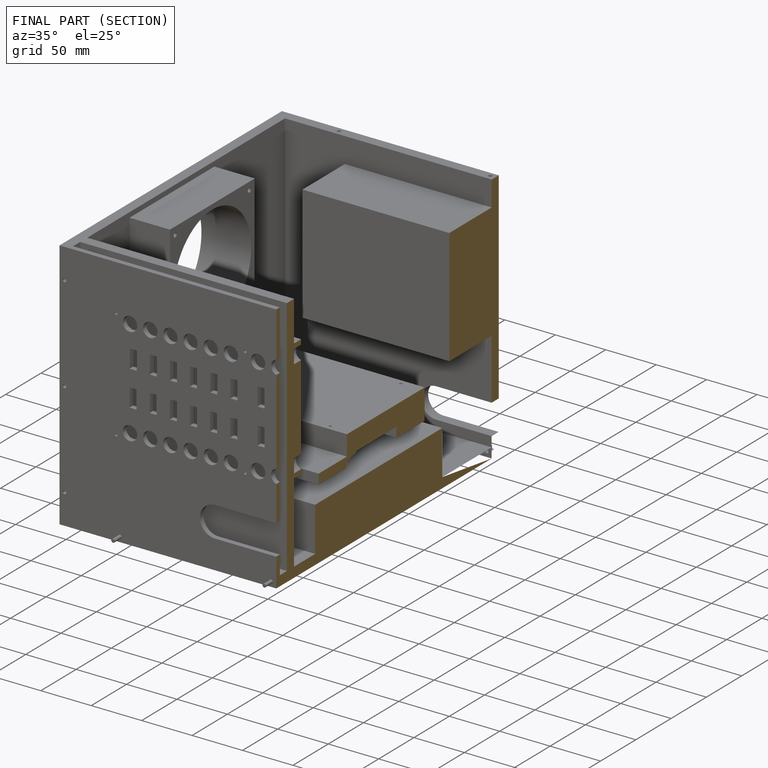
[diagram: finished part — half-section view (interior)]
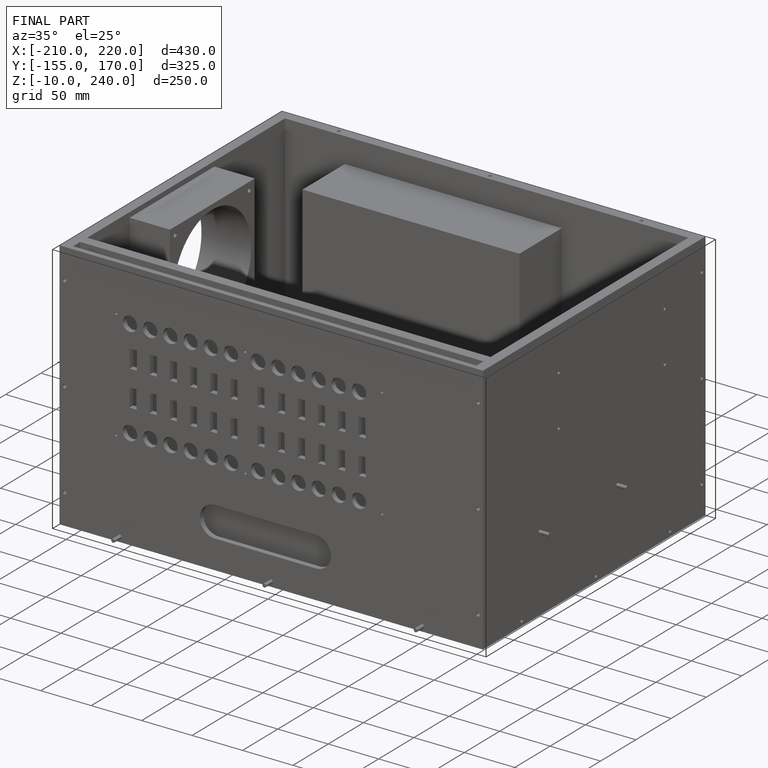
[diagram: finished part — iso view with bounding-box wireframe]
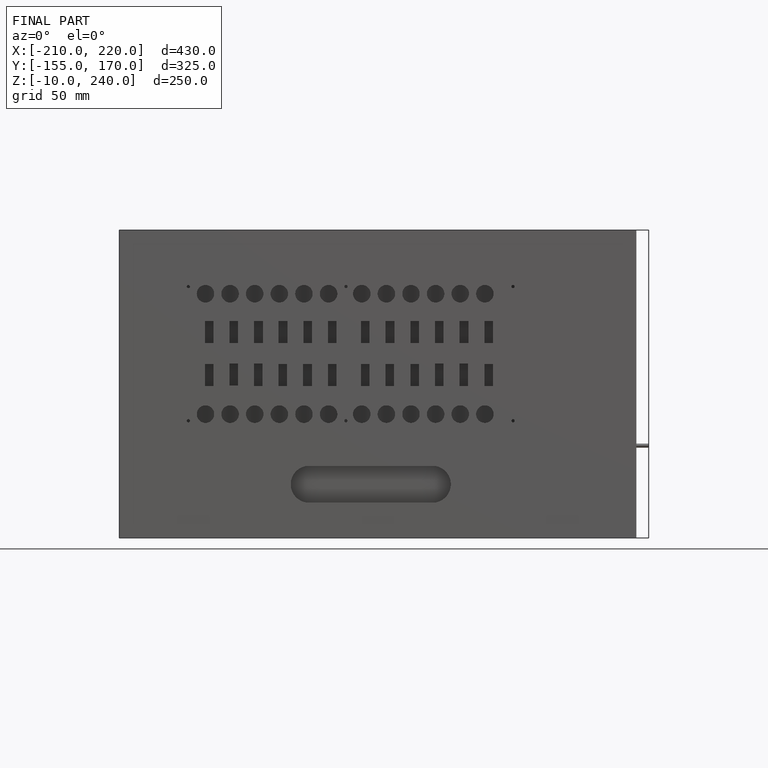
[diagram: finished part — front view with bounding-box wireframe]
